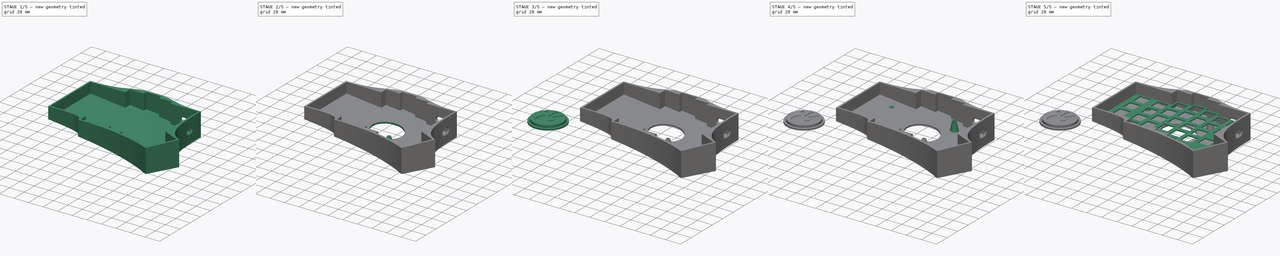
[diagram: build sequence overview — one tinted view per stage of 5, left to right]
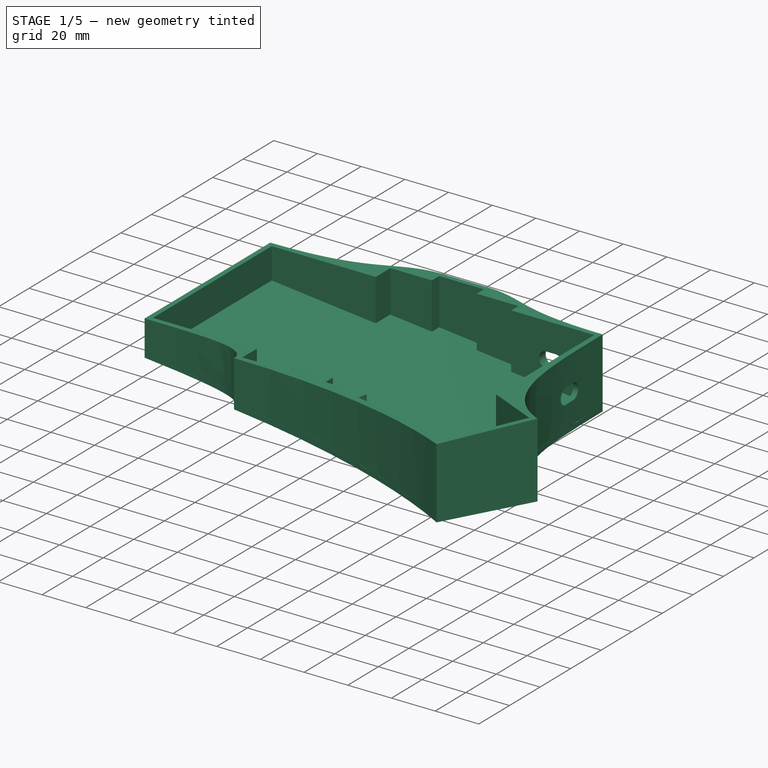
[diagram: stage 1 of 5 — iso view after this stage's code; geometry added in this stage tinted green]
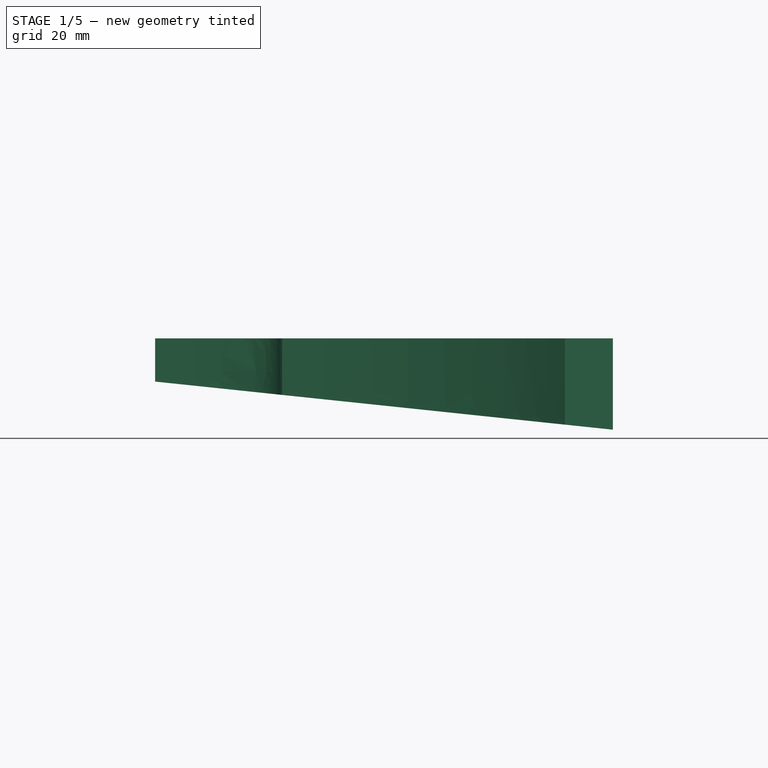
[diagram: stage 1 of 5 — front view after this stage's code; geometry added in this stage tinted green]
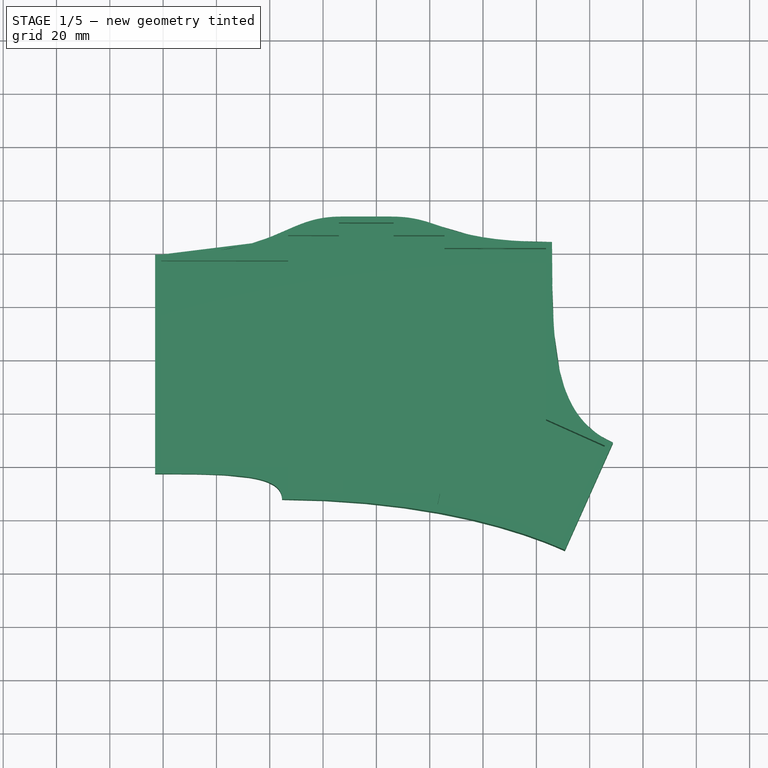
[diagram: stage 1 of 5 — top view after this stage's code; geometry added in this stage tinted green]
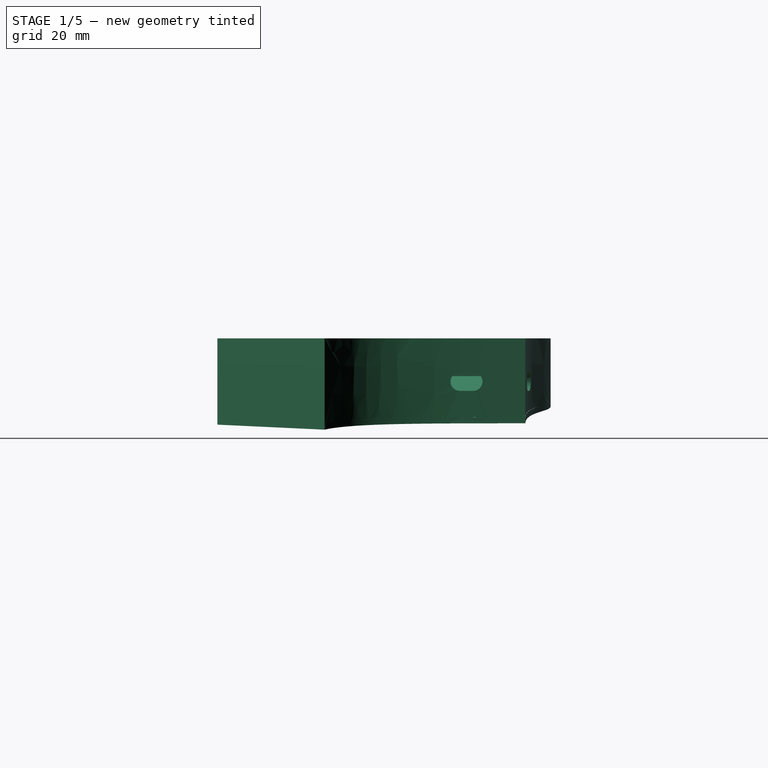
[diagram: stage 1 of 5 — right view after this stage's code; geometry added in this stage tinted green]
FCSTD DOCUMENT  (FreeCAD 0.19R24291 (Git))
Label: case
License: All rights reserved
LicenseURL: http://en.wikipedia.org/wiki/All_rights_reserved
objects: Sketcher::SketchObject×27, PartDesign::Pocket×13, PartDesign::Body×8, PartDesign::Pad×6, PartDesign::Draft×5, PartDesign::ShapeBinder×5, PartDesign::AdditiveCone×4, PartDesign::Chamfer×2, Spreadsheet::Sheet×1, Part::MultiFuse×1
note: 101 computed .brp shape members not serialized (recipe doc carries the construction recipe); baked Part::Feature solids carry a one-line shape summary decoded from their .brp

FEATURE [Sketcher::SketchObject] Sketch004
  FullyConstrained = true
  MapMode = 5
  Support = -> [XY_Plane003]
  expr: Constraints[2] = 3 * Spreadsheet.grid
  expr: Constraints[1] = <<Constants>>.mod_units * Spreadsheet.grid
  expr: Constraints[0] = Spreadsheet.postdiameter
  expr: Constraints[4] = Spreadsheet.posthole
  sketch-geometry (2):
    g0: Circle CenterX=28.575 CenterY=57.15 CenterZ=0 NormalX=0 NormalY=0 NormalZ=1 AngleXU=0 Radius=2.5
    g1: Circle CenterX=28.575 CenterY=57.15 CenterZ=0 NormalX=0 NormalY=0 NormalZ=1 AngleXU=0 Radius=1.45
  constraints (5):
    c: Diameter(g0) = 5
    c: DistanceX(g-1,g0) = 28.575
    c: DistanceY(g-1,g0) = 57.15
    c: Coincident(g1,g0)
    c: Diameter(g1) = 2.9
FEATURE [Sketcher::SketchObject] Sketch005
  FullyConstrained = true
  MapMode = 5
  Support = -> [XY_Plane004]
  expr: Constraints[0] = <<Constants>>.mod_units * <<Constants>>.grid
  expr: Constraints[1] = <<Constants>>.grid
  expr: Constraints[2] = <<Constants>>.postdiameter
  expr: Constraints[4] = <<Constants>>.posthole
  sketch-geometry (2):
    g0: Circle CenterX=28.575 CenterY=19.05 CenterZ=0 NormalX=0 NormalY=0 NormalZ=1 AngleXU=0 Radius=2.5
    g1: Circle CenterX=28.575 CenterY=19.05 CenterZ=0 NormalX=0 NormalY=0 NormalZ=1 AngleXU=0 Radius=1.45
  constraints (5):
    c: DistanceX(g-1,g0) = 28.575
    c: DistanceY(g-1,g0) = 19.05
    c: Diameter(g0) = 5
    c: Coincident(g1,g0)
    c: Diameter(g1) = 2.9
FEATURE [Sketcher::SketchObject] Sketch006
  FullyConstrained = true
  MapMode = 5
  Support = -> [XY_Plane005]
  expr: Constraints[0] = <<Constants>>.grid * (<<Constants>>.mod_units + 4)
  expr: Constraints[1] = <<Constants>>.grid * 3.5
  expr: Constraints[2] = <<Constants>>.postdiameter
  expr: Constraints[4] = <<Constants>>.posthole
  sketch-geometry (2):
    g0: Circle CenterX=104.775 CenterY=66.675 CenterZ=0 NormalX=0 NormalY=0 NormalZ=1 AngleXU=0 Radius=2.5
    g1: Circle CenterX=104.775 CenterY=66.675 CenterZ=0 NormalX=0 NormalY=0 NormalZ=1 AngleXU=0 Radius=1.45
  constraints (5):
    c: DistanceX(g-1,g0) = 104.775
    c: DistanceY(g-1,g0) = 66.675
    c: Diameter(g0) = 5
    c: Coincident(g1,g0)
    c: Diameter(g1) = 2.9
FEATURE [Sketcher::SketchObject] Sketch007
  FullyConstrained = true
  MapMode = 5
  Support = -> [XY_Plane006]
  expr: Constraints[0] = <<Constants>>.grid * (<<Constants>>.mod_units + 4)
  expr: Constraints[1] = <<Constants>>.grid * 0.5
  expr: Constraints[2] = <<Constants>>.postdiameter
  expr: Constraints[4] = <<Constants>>.posthole
  sketch-geometry (2):
    g0: Circle CenterX=104.775 CenterY=9.525 CenterZ=0 NormalX=0 NormalY=0 NormalZ=1 AngleXU=0 Radius=2.5
    g1: Circle CenterX=104.775 CenterY=9.525 CenterZ=0 NormalX=0 NormalY=0 NormalZ=1 AngleXU=0 Radius=1.45
  constraints (5):
    c: DistanceX(g-1,g0) = 104.775
    c: DistanceY(g-1,g0) = 9.525
    c: Diameter(g0) = 5
    c: Coincident(g1,g0)
    c: Diameter(g1) = 2.9
FEATURE [Sketcher::SketchObject] Sketch009  label="switch_holes"
  FullyConstrained = false
  MapMode = 5
  Placement = pos=(0,0,1.4) rot=(0,0,1;0rad)
  Support = -> [Pad001]
  expr: Constraints[381] = <<Constants>>.hole
  expr: Constraints[13] = <<Constants>>.grid
  expr: Constraints[7] = <<Constants>>.grid
  expr: Constraints[366] = <<Constants>>.grid / 4 + <<Constants>>.spacing / 2
  expr: Constraints[364] = <<Constants>>.grid / 4 - <<Constants>>.spacing / 2
  expr: Constraints[356] = <<Constants>>.spacing / 2
  expr: Constraints[358] = <<Constants>>.grid / 2 - <<Constants>>.spacing / 2
  expr: Constraints[60] = <<Constants>>.hole
  expr: Constraints[59] = <<Constants>>.spacing
  expr: Constraints[58] = <<Constants>>.spacing
  expr: Constraints[15] = <<Constants>>.grid
  expr: Constraints[161] = <<Constants>>.spacing
  expr: Constraints[57] = <<Constants>>.spacing
  expr: Constraints[5] = 0.5 * (1 + <<Constants>>.mod_units) * <<Constants>>.grid
  expr: Constraints[2] = (0.5 + <<Constants>>.mod_units) * <<Constants>>.grid
  expr: Constraints[11] = <<Constants>>.grid
  expr: Constraints[9] = <<Constants>>.grid
  sketch-geometry (131):
    g0: LineSegment StartX=38.1 StartY=0 StartZ=0 EndX=38.1 EndY=96.2556 EndZ=0
    g1: LineSegment StartX=14.2875 StartY=0 StartZ=0 EndX=14.2875 EndY=96.8335 EndZ=0
    g2: LineSegment StartX=57.15 StartY=-9.1419 StartZ=0 EndX=57.15 EndY=87.1129 EndZ=0
    g3: LineSegment StartX=76.2 StartY=-4.2747 StartZ=0 EndX=76.2 EndY=91.9809 EndZ=0
    g4: LineSegment StartX=95.25 StartY=-8.95511 StartZ=0 EndX=95.25 EndY=87.3005 EndZ=0
    g5: LineSegment StartX=114.3 StartY=-8.94744 StartZ=0 EndX=114.3 EndY=87.2928 EndZ=0
    g6: LineSegment StartX=133.35 StartY=-7.45738 StartZ=0 EndX=133.35 EndY=88.7982 EndZ=0
    g7: LineSegment StartX=7.2875 StartY=16.525 StartZ=0 EndX=21.2875 EndY=16.525 EndZ=0
    g8: LineSegment StartX=21.2875 StartY=16.525 StartZ=0 EndX=21.2875 EndY=2.525 EndZ=0
    g9: LineSegment StartX=21.2875 StartY=2.525 StartZ=0 EndX=7.2875 EndY=2.525 EndZ=0
    g10: LineSegment StartX=7.2875 StartY=2.525 StartZ=0 EndX=7.2875 EndY=16.525 EndZ=0
    g11: LineSegment StartX=7.2875 StartY=35.575 StartZ=0 EndX=21.2875 EndY=35.575 EndZ=0
    g12: LineSegment StartX=21.2875 StartY=35.575 StartZ=0 EndX=21.2875 EndY=21.575 EndZ=0
    g13: LineSegment StartX=21.2875 StartY=21.575 StartZ=0 EndX=7.2875 EndY=21.575 EndZ=0
    g14: LineSegment StartX=7.2875 StartY=21.575 StartZ=0 EndX=7.2875 EndY=35.575 EndZ=0
    g15: LineSegment StartX=7.2875 StartY=54.625 StartZ=0 EndX=21.2875 EndY=54.625 EndZ=0
    g16: LineSegment StartX=21.2875 StartY=54.625 StartZ=0 EndX=21.2875 EndY=40.625 EndZ=0
    g17: LineSegment StartX=21.2875 StartY=40.625 StartZ=0 EndX=7.2875 EndY=40.625 EndZ=0
    g18: LineSegment StartX=7.2875 StartY=40.625 StartZ=0 EndX=7.2875 EndY=54.625 EndZ=0
    g19: LineSegment StartX=7.2875 StartY=73.675 StartZ=0 EndX=21.2875 EndY=73.675 EndZ=0
    g20: LineSegment StartX=21.2875 StartY=73.675 StartZ=0 EndX=21.2875 EndY=59.675 EndZ=0
    g21: LineSegment StartX=21.2875 StartY=59.675 StartZ=0 EndX=7.2875 EndY=59.675 EndZ=0
    g22: LineSegment StartX=7.2875 StartY=59.675 StartZ=0 EndX=7.2875 EndY=73.675 EndZ=0
    g23: LineSegment StartX=31.1 StartY=16.525 StartZ=0 EndX=45.1 EndY=16.525 EndZ=0
    g24: LineSegment StartX=45.1 StartY=16.525 StartZ=0 EndX=45.1 EndY=2.525 EndZ=0
    g25: LineSegment StartX=45.1 StartY=2.525 StartZ=0 EndX=31.1 EndY=2.525 EndZ=0
    g26: LineSegment StartX=31.1 StartY=2.525 StartZ=0 EndX=31.1 EndY=16.525 EndZ=0
    g27: LineSegment StartX=31.1 StartY=35.575 StartZ=0 EndX=45.1 EndY=35.575 EndZ=0
    g28: LineSegment StartX=45.1 StartY=35.575 StartZ=0 EndX=45.1 EndY=21.575 EndZ=0
    g29: LineSegment StartX=45.1 StartY=21.575 StartZ=0 EndX=31.1 EndY=21.575 EndZ=0
    g30: LineSegment StartX=31.1 StartY=21.575 StartZ=0 EndX=31.1 EndY=35.575 EndZ=0
    g31: LineSegment StartX=31.1 StartY=54.625 StartZ=0 EndX=45.1 EndY=54.625 EndZ=0
    g32: LineSegment StartX=45.1 StartY=54.625 StartZ=0 EndX=45.1 EndY=40.625 EndZ=0
    g33: LineSegment StartX=45.1 StartY=40.625 StartZ=0 EndX=31.1 EndY=40.625 EndZ=0
    g34: LineSegment StartX=31.1 StartY=40.625 StartZ=0 EndX=31.1 EndY=54.625 EndZ=0
    g35: LineSegment StartX=31.1 StartY=73.675 StartZ=0 EndX=45.1 EndY=73.675 EndZ=0
    g36: LineSegment StartX=45.1 StartY=73.675 StartZ=0 EndX=45.1 EndY=59.675 EndZ=0
    g37: LineSegment StartX=45.1 StartY=59.675 StartZ=0 EndX=31.1 EndY=59.675 EndZ=0
    g38: LineSegment StartX=31.1 StartY=59.675 StartZ=0 EndX=31.1 EndY=73.675 EndZ=0
    g39: LineSegment StartX=50.15 StartY=7 StartZ=0 EndX=64.15 EndY=7 EndZ=0
    g40: LineSegment StartX=64.15 StartY=7 StartZ=0 EndX=64.15 EndY=-7 EndZ=0
    g41: LineSegment StartX=64.15 StartY=-7 StartZ=0 EndX=50.15 EndY=-7 EndZ=0
    g42: LineSegment StartX=50.15 StartY=-7 StartZ=0 EndX=50.15 EndY=7 EndZ=0
    g43: LineSegment StartX=50.15 StartY=26.05 StartZ=0 EndX=64.15 EndY=26.05 EndZ=0
    g44: LineSegment StartX=64.15 StartY=26.05 StartZ=0 EndX=64.15 EndY=12.05 EndZ=0
    g45: LineSegment StartX=64.15 StartY=12.05 StartZ=0 EndX=50.15 EndY=12.05 EndZ=0
    g46: LineSegment StartX=50.15 StartY=12.05 StartZ=0 EndX=50.15 EndY=26.05 EndZ=0
    g47: LineSegment StartX=50.15 StartY=45.1 StartZ=0 EndX=64.15 EndY=45.1 EndZ=0
    g48: LineSegment StartX=64.15 StartY=45.1 StartZ=0 EndX=64.15 EndY=31.1 EndZ=0
    g49: LineSegment StartX=64.15 StartY=31.1 StartZ=0 EndX=50.15 EndY=31.1 EndZ=0
    g50: LineSegment StartX=50.15 StartY=31.1 StartZ=0 EndX=50.15 EndY=45.1 EndZ=0
    g51: LineSegment StartX=50.15 StartY=64.15 StartZ=0 EndX=64.15 EndY=64.15 EndZ=0
    g52: LineSegment StartX=64.15 StartY=64.15 StartZ=0 EndX=64.15 EndY=50.15 EndZ=0
    g53: LineSegment StartX=64.15 StartY=50.15 StartZ=0 EndX=50.15 EndY=50.15 EndZ=0
    g54: LineSegment StartX=50.15 StartY=50.15 StartZ=0 EndX=50.15 EndY=64.15 EndZ=0
    g55: LineSegment StartX=50.15 StartY=69.2 StartZ=0 EndX=64.15 EndY=69.2 EndZ=0
    g56: LineSegment StartX=64.15 StartY=69.2 StartZ=0 EndX=64.15 EndY=83.2 EndZ=0
    g57: LineSegment StartX=64.15 StartY=83.2 StartZ=0 EndX=50.15 EndY=83.2 EndZ=0
    g58: LineSegment StartX=50.15 StartY=83.2 StartZ=0 EndX=50.15 EndY=69.2 EndZ=0
    g59: LineSegment StartX=69.2 StartY=11.7625 StartZ=0 EndX=83.2 EndY=11.7625 EndZ=0
    g60: LineSegment StartX=83.2 StartY=11.7625 StartZ=0 EndX=83.2 EndY=-2.2375 EndZ=0
    g61: LineSegment StartX=83.2 StartY=-2.2375 StartZ=0 EndX=69.2 EndY=-2.2375 EndZ=0
    g62: LineSegment StartX=69.2 StartY=-2.2375 StartZ=0 EndX=69.2 EndY=11.7625 EndZ=0
    g63: LineSegment StartX=69.2 StartY=30.8125 StartZ=0 EndX=83.2 EndY=30.8125 EndZ=0
    g64: LineSegment StartX=83.2 StartY=30.8125 StartZ=0 EndX=83.2 EndY=16.8125 EndZ=0
    g65: LineSegment StartX=83.2 StartY=16.8125 StartZ=0 EndX=69.2 EndY=16.8125 EndZ=0
    g66: LineSegment StartX=69.2 StartY=16.8125 StartZ=0 EndX=69.2 EndY=30.8125 EndZ=0
    g67: LineSegment StartX=69.2 StartY=49.8625 StartZ=0 EndX=83.2 EndY=49.8625 EndZ=0
    g68: LineSegment StartX=83.2 StartY=49.8625 StartZ=0 EndX=83.2 EndY=35.8625 EndZ=0
    g69: LineSegment StartX=83.2 StartY=35.8625 StartZ=0 EndX=69.2 EndY=35.8625 EndZ=0
    g70: LineSegment StartX=69.2 StartY=35.8625 StartZ=0 EndX=69.2 EndY=49.8625 EndZ=0
    g71: LineSegment StartX=69.2 StartY=68.9125 StartZ=0 EndX=83.2 EndY=68.9125 EndZ=0
    g72: LineSegment StartX=83.2 StartY=68.9125 StartZ=0 EndX=83.2 EndY=54.9125 EndZ=0
    g73: LineSegment StartX=83.2 StartY=54.9125 StartZ=0 EndX=69.2 EndY=54.9125 EndZ=0
    g74: LineSegment StartX=69.2 StartY=54.9125 StartZ=0 EndX=69.2 EndY=68.9125 EndZ=0
    g75: LineSegment StartX=69.2 StartY=73.9625 StartZ=0 EndX=83.2 EndY=73.9625 EndZ=0
    g76: LineSegment StartX=83.2 StartY=73.9625 StartZ=0 EndX=83.2 EndY=87.9625 EndZ=0
    g77: LineSegment StartX=83.2 StartY=87.9625 StartZ=0 EndX=69.2 EndY=87.9625 EndZ=0
    g78: LineSegment StartX=69.2 StartY=87.9625 StartZ=0 EndX=69.2 EndY=73.9625 EndZ=0
    g79: LineSegment StartX=88.25 StartY=7 StartZ=0 EndX=102.25 EndY=7 EndZ=0
    g80: LineSegment StartX=102.25 StartY=7 StartZ=0 EndX=102.25 EndY=-7 EndZ=0
    g81: LineSegment StartX=102.25 StartY=-7 StartZ=0 EndX=88.25 EndY=-7 EndZ=0
    g82: LineSegment StartX=88.25 StartY=-7 StartZ=0 EndX=88.25 EndY=7 EndZ=0
    g83: LineSegment StartX=88.25 StartY=26.05 StartZ=0 EndX=102.25 EndY=26.05 EndZ=0
    g84: LineSegment StartX=102.25 StartY=26.05 StartZ=0 EndX=102.25 EndY=12.05 EndZ=0
    g85: LineSegment StartX=102.25 StartY=12.05 StartZ=0 EndX=88.25 EndY=12.05 EndZ=0
    g86: LineSegment StartX=88.25 StartY=12.05 StartZ=0 EndX=88.25 EndY=26.05 EndZ=0
    g87: LineSegment StartX=88.25 StartY=45.1 StartZ=0 EndX=102.25 EndY=45.1 EndZ=0
    g88: LineSegment StartX=102.25 StartY=45.1 StartZ=0 EndX=102.25 EndY=31.1 EndZ=0
    g89: LineSegment StartX=102.25 StartY=31.1 StartZ=0 EndX=88.25 EndY=31.1 EndZ=0
    g90: LineSegment StartX=88.25 StartY=31.1 StartZ=0 EndX=88.25 EndY=45.1 EndZ=0
    g91: LineSegment StartX=88.25 StartY=64.15 StartZ=0 EndX=102.25 EndY=64.15 EndZ=0
    g92: LineSegment StartX=102.25 StartY=64.15 StartZ=0 EndX=102.25 EndY=50.15 EndZ=0
    g93: LineSegment StartX=102.25 StartY=50.15 StartZ=0 EndX=88.25 EndY=50.15 EndZ=0
    g94: LineSegment StartX=88.25 StartY=50.15 StartZ=0 EndX=88.25 EndY=64.15 EndZ=0
    g95: LineSegment StartX=88.25 StartY=69.2 StartZ=0 EndX=102.25 EndY=69.2 EndZ=0
    g96: LineSegment StartX=102.25 StartY=69.2 StartZ=0 EndX=102.25 EndY=83.2 EndZ=0
    g97: LineSegment StartX=102.25 StartY=83.2 StartZ=0 EndX=88.25 EndY=83.2 EndZ=0
    g98: LineSegment StartX=88.25 StartY=83.2 StartZ=0 EndX=88.25 EndY=69.2 EndZ=0
    g99: LineSegment StartX=107.3 StartY=21.2875 StartZ=0 EndX=121.3 EndY=21.2875 EndZ=0
    g100: LineSegment StartX=121.3 StartY=21.2875 StartZ=0 EndX=121.3 EndY=7.2875 EndZ=0
    g101: LineSegment StartX=121.3 StartY=7.2875 StartZ=0 EndX=107.3 EndY=7.2875 EndZ=0
    g102: LineSegment StartX=107.3 StartY=7.2875 StartZ=0 EndX=107.3 EndY=21.2875 EndZ=0
    g103: LineSegment StartX=107.3 StartY=40.3375 StartZ=0 EndX=121.3 EndY=40.3375 EndZ=0
    g104: LineSegment StartX=121.3 StartY=40.3375 StartZ=0 EndX=121.3 EndY=26.3375 EndZ=0
    g105: LineSegment StartX=121.3 StartY=26.3375 StartZ=0 EndX=107.3 EndY=26.3375 EndZ=0
    g106: LineSegment StartX=107.3 StartY=26.3375 StartZ=0 EndX=107.3 EndY=40.3375 EndZ=0
    g107: LineSegment StartX=107.3 StartY=59.3875 StartZ=0 EndX=121.3 EndY=59.3875 EndZ=0
    g108: LineSegment StartX=121.3 StartY=59.3875 StartZ=0 EndX=121.3 EndY=45.3875 EndZ=0
    g109: LineSegment StartX=121.3 StartY=45.3875 StartZ=0 EndX=107.3 EndY=45.3875 EndZ=0
    g110: LineSegment StartX=107.3 StartY=45.3875 StartZ=0 EndX=107.3 EndY=59.3875 EndZ=0
    g111: LineSegment StartX=107.3 StartY=78.4375 StartZ=0 EndX=121.3 EndY=78.4375 EndZ=0
    g112: LineSegment StartX=121.3 StartY=78.4375 StartZ=0 EndX=121.3 EndY=64.4375 EndZ=0
    g113: LineSegment StartX=121.3 StartY=64.4375 StartZ=0 EndX=107.3 EndY=64.4375 EndZ=0
    g114: LineSegment StartX=107.3 StartY=64.4375 StartZ=0 EndX=107.3 EndY=78.4375 EndZ=0
    g115: LineSegment StartX=126.35 StartY=40.3375 StartZ=0 EndX=140.35 EndY=40.3375 EndZ=0
    g116: LineSegment StartX=140.35 StartY=40.3375 StartZ=0 EndX=140.35 EndY=26.3375 EndZ=0
    g117: LineSegment StartX=140.35 StartY=26.3375 StartZ=0 EndX=126.35 EndY=26.3375 EndZ=0
    g118: LineSegment StartX=126.35 StartY=26.3375 StartZ=0 EndX=126.35 EndY=40.3375 EndZ=0
    g119: LineSegment StartX=126.35 StartY=59.3875 StartZ=0 EndX=140.35 EndY=59.3875 EndZ=0
    g120: LineSegment StartX=140.35 StartY=59.3875 StartZ=0 EndX=140.35 EndY=45.3875 EndZ=0
    g121: LineSegment StartX=140.35 StartY=45.3875 StartZ=0 EndX=126.35 EndY=45.3875 EndZ=0
    g122: LineSegment StartX=126.35 StartY=45.3875 StartZ=0 EndX=126.35 EndY=59.3875 EndZ=0
    g123: LineSegment StartX=126.35 StartY=78.4375 StartZ=0 EndX=140.35 EndY=78.4375 EndZ=0
    g124: LineSegment StartX=140.35 StartY=78.4375 StartZ=0 EndX=140.35 EndY=64.4375 EndZ=0
    g125: LineSegment StartX=140.35 StartY=64.4375 StartZ=0 EndX=126.35 EndY=64.4375 EndZ=0
    g126: LineSegment StartX=126.35 StartY=64.4375 StartZ=0 EndX=126.35 EndY=78.4375 EndZ=0
    g127: LineSegment StartX=126.35 StartY=21.2875 StartZ=0 EndX=140.35 EndY=21.2875 EndZ=0
    g128: LineSegment StartX=140.35 StartY=21.2875 StartZ=0 EndX=140.35 EndY=7.2875 EndZ=0
    g129: LineSegment StartX=140.35 StartY=7.2875 StartZ=0 EndX=126.35 EndY=7.2875 EndZ=0
    g130: LineSegment StartX=126.35 StartY=7.2875 StartZ=0 EndX=126.35 EndY=21.2875 EndZ=0
  constraints (382):
    c: PointOnObject(g0,g-1)
    c: Vertical(g0)
    c: DistanceX(g-1,g0) = 38.1
    c: Vertical(g1)
    c: PointOnObject(g1,g-1)
    c: DistanceX(g1,g0) = 23.8125
    c: Vertical(g2)
    c: DistanceX(g0,g2) = 19.05
    c: Vertical(g3)
    c: DistanceX(g2,g3) = 19.05
    c: Vertical(g4)
    c: DistanceX(g3,g4) = 19.05
    c: Vertical(g5)
    c: DistanceX(g4,g5) = 19.05
    c: Vertical(g6)
    c: DistanceX(g5,g6) = 19.05
    c: Coincident(g7,g8)
    c: Coincident(g8,g9)
    c: Coincident(g9,g10)
    c: Coincident(g10,g7)
    c: Horizontal(g7)
    c: Vertical(g8)
    c: Vertical(g10)
    c: Coincident(g11,g12)
    c: Coincident(g12,g13)
    c: Coincident(g13,g14)
    c: Coincident(g14,g11)
    c: Horizontal(g11)
    c: Horizontal(g13)
    c: Vertical(g12)
    c: Vertical(g14)
    c: Coincident(g15,g16)
    c: Coincident(g16,g17)
    c: Coincident(g17,g18)
    c: Coincident(g18,g15)
    c: Horizontal(g15)
    c: Horizontal(g17)
    c: Vertical(g16)
    c: Vertical(g18)
    c: Coincident(g19,g20)
    c: Coincident(g20,g21)
    c: Coincident(g21,g22)
    c: Coincident(g22,g19)
    c: Horizontal(g19)
    c: Horizontal(g21)
    c: Vertical(g20)
    c: Vertical(g22)
    c: Equal(g21,g20)
    c: Equal(g15,g16)
    c: Equal(g16,g12)
    c: Equal(g12,g20)
    c: Equal(g19,g8)
    c: Equal(g8,g7)
    c: Equal(g7,g11)
    c: Vertical(g20,g16)
    c: Vertical(g16,g12)
    c: Vertical(g12,g8)
    c: DistanceY(g15,g20) = 5.05
    c: DistanceY(g11,g16) = 5.05
    c: DistanceY(g7,g12) = 5.05
    c: Distance(g9) = 14
    c: Coincident(g23,g24)
    c: Coincident(g24,g25)
    c: Coincident(g25,g26)
    c: Coincident(g26,g23)
    c: Horizontal(g23)
    c: Vertical(g24)
    c: Vertical(g26)
    c: Coincident(g27,g28)
    c: Coincident(g28,g29)
    c: Coincident(g29,g30)
    c: Coincident(g30,g27)
    c: Horizontal(g27)
    c: Horizontal(g29)
    c: Vertical(g28)
    c: Vertical(g30)
    c: Coincident(g31,g32)
    c: Coincident(g32,g33)
    c: Coincident(g33,g34)
    c: Coincident(g34,g31)
    c: Horizontal(g31)
    c: Horizontal(g33)
    c: Vertical(g32)
    c: Vertical(g34)
    c: Coincident(g35,g36)
    c: Coincident(g36,g37)
    c: Coincident(g37,g38)
    c: Coincident(g38,g35)
    c: Horizontal(g35)
    c: Horizontal(g37)
    c: Vertical(g36)
    c: Vertical(g38)
    c: Equal(g37,g36)
    c: Equal(g31,g32)
    c: Equal(g32,g28)
    c: Equal(g28,g36)
    c: Equal(g35,g24)
    c: Equal(g24,g23)
    c: Equal(g23,g27)
    c: Vertical(g36,g32)
    c: Vertical(g32,g28)
    c: Vertical(g28,g24)
    c: DistanceY(g31,g36) = 5.05
    c: DistanceY(g27,g32) = 5.05
    c: DistanceY(g23,g28) = 5.05
    c: Equal(g9,g25) = 14
    c: Coincident(g39,g40)
    c: Coincident(g40,g41)
    c: Coincident(g41,g42)
    c: Coincident(g42,g39)
    c: Horizontal(g39)
    c: Vertical(g40)
    c: Vertical(g42)
    c: Coincident(g43,g44)
    c: Coincident(g44,g45)
    c: Coincident(g45,g46)
    c: Coincident(g46,g43)
    c: Horizontal(g43)
    c: Horizontal(g45)
    c: Vertical(g44)
    c: Vertical(g46)
    c: Coincident(g47,g48)
    c: Coincident(g48,g49)
    c: Coincident(g49,g50)
    c: Coincident(g50,g47)
    c: Horizontal(g47)
    c: Horizontal(g49)
    c: Vertical(g48)
    c: Vertical(g50)
    c: Coincident(g51,g52)
    c: Coincident(g52,g53)
    c: Coincident(g53,g54)
    c: Coincident(g54,g51)
    c: Horizontal(g51)
    c: Horizontal(g53)
    c: Vertical(g52)
    c: Vertical(g54)
    c: Equal(g53,g52)
    c: Equal(g47,g48)
    c: Equal(g48,g44)
    c: Equal(g44,g52)
    c: Equal(g51,g40)
    c: Equal(g40,g39)
    c: Equal(g39,g43)
    c: Vertical(g52,g48)
    c: Vertical(g48,g44)
    c: Vertical(g44,g40)
    c: DistanceY(g47,g52) = 5.05
    c: DistanceY(g43,g48) = 5.05
    c: DistanceY(g39,g44) = 5.05
    c: Coincident(g55,g56)
    c: Coincident(g56,g57)
    c: Coincident(g57,g58)
    c: Coincident(g58,g55)
    c: Horizontal(g55)
    c: Horizontal(g57)
    c: Vertical(g56)
    c: Vertical(g58)
    c: Vertical(g55,g51)
    c: Equal(g56,g57)
    c: Equal(g52,g56)
    c: DistanceY(g51,g55) = 5.05
    c: Coincident(g59,g60)
    c: Coincident(g60,g61)
    c: Coincident(g61,g62)
    c: Coincident(g62,g59)
    c: Horizontal(g59)
    c: Vertical(g60)
    c: Vertical(g62)
    c: Coincident(g63,g64)
    c: Coincident(g64,g65)
    c: Coincident(g65,g66)
    c: Coincident(g66,g63)
    c: Horizontal(g63)
    c: Horizontal(g65)
    c: Vertical(g64)
    c: Vertical(g66)
    c: Coincident(g67,g68)
    c: Coincident(g68,g69)
    c: Coincident(g69,g70)
    c: Coincident(g70,g67)
    c: Horizontal(g67)
    c: Horizontal(g69)
    c: Vertical(g68)
    c: Vertical(g70)
    c: Coincident(g71,g72)
    c: Coincident(g72,g73)
    c: Coincident(g73,g74)
    c: Coincident(g74,g71)
    c: Horizontal(g71)
    c: Horizontal(g73)
    c: Vertical(g72)
    c: Vertical(g74)
    c: Equal(g73,g72)
    c: Equal(g67,g68)
    c: Equal(g68,g64)
    c: Equal(g64,g72)
    c: Equal(g71,g60)
    c: Equal(g60,g59)
    c: Equal(g59,g63)
    c: Vertical(g72,g68)
    c: Vertical(g68,g64)
    c: Vertical(g64,g60)
    c: DistanceY(g67,g72) = 5.05
    c: DistanceY(g63,g68) = 5.05
    c: DistanceY(g59,g64) = 5.05
    c: Coincident(g75,g76)
    c: Coincident(g76,g77)
    c: Coincident(g77,g78)
    c: Coincident(g78,g75)
    c: Horizontal(g75)
    c: Horizontal(g77)
    c: Vertical(g76)
    c: Vertical(g78)
    c: Vertical(g75,g71)
    c: Equal(g76,g77)
    c: Equal(g72,g76)
    c: DistanceY(g71,g75) = 5.05
    c: Coincident(g79,g80)
    c: Coincident(g80,g81)
    c: Coincident(g81,g82)
    c: Coincident(g82,g79)
    c: Horizontal(g79)
    c: Vertical(g80)
    c: Vertical(g82)
    c: Coincident(g83,g84)
    c: Coincident(g84,g85)
    c: Coincident(g85,g86)
    c: Coincident(g86,g83)
    c: Horizontal(g83)
    c: Horizontal(g85)
    c: Vertical(g84)
    c: Vertical(g86)
    c: Coincident(g87,g88)
    c: Coincident(g88,g89)
    c: Coincident(g89,g90)
    c: Coincident(g90,g87)
    c: Horizontal(g87)
    c: Horizontal(g89)
    c: Vertical(g88)
    c: Vertical(g90)
    c: Coincident(g91,g92)
    c: Coincident(g92,g93)
    c: Coincident(g93,g94)
    c: Coincident(g94,g91)
    c: Horizontal(g91)
    c: Horizontal(g93)
    c: Vertical(g92)
    c: Vertical(g94)
    c: Equal(g93,g92)
    c: Equal(g87,g88)
    c: Equal(g88,g84)
    c: Equal(g84,g92)
    c: Equal(g91,g80)
    c: Equal(g80,g79)
    c: Equal(g79,g83)
    c: Vertical(g92,g88)
    c: Vertical(g88,g84)
    c: Vertical(g84,g80)
    c: DistanceY(g87,g92) = 5.05
    c: DistanceY(g83,g88) = 5.05
    c: DistanceY(g79,g84) = 5.05
    c: Coincident(g95,g96)
    c: Coincident(g96,g97)
    c: Coincident(g97,g98)
    c: Coincident(g98,g95)
    c: Horizontal(g95)
    c: Horizontal(g97)
    c: Vertical(g96)
    c: Vertical(g98)
    c: Vertical(g95,g91)
    c: Equal(g96,g97)
    c: Equal(g92,g96)
    c: DistanceY(g91,g95) = 5.05
    c: Coincident(g99,g100)
    c: Coincident(g100,g101)
    c: Coincident(g101,g102)
    c: Coincident(g102,g99)
    c: Horizontal(g99)
    c: Vertical(g100)
    c: Vertical(g102)
    c: Coincident(g103,g104)
    c: Coincident(g104,g105)
    c: Coincident(g105,g106)
    c: Coincident(g106,g103)
    c: Horizontal(g103)
    c: Horizontal(g105)
    c: Vertical(g104)
    c: Vertical(g106)
    c: Coincident(g107,g108)
    c: Coincident(g108,g109)
    c: Coincident(g109,g110)
    c: Coincident(g110,g107)
    c: Horizontal(g107)
    c: Horizontal(g109)
    c: Vertical(g108)
    c: Vertical(g110)
    c: Coincident(g111,g112)
    c: Coincident(g112,g113)
    c: Coincident(g113,g114)
    c: Coincident(g114,g111)
    c: Horizontal(g111)
    c: Horizontal(g113)
    c: Vertical(g112)
    c: Vertical(g114)
    c: Equal(g113,g112)
    c: Equal(g107,g108)
    c: Equal(g108,g104)
    c: Equal(g104,g112)
    c: Equal(g111,g100)
    c: Equal(g100,g99)
    c: Equal(g99,g103)
    c: Vertical(g112,g108)
    c: Vertical(g108,g104)
    c: Vertical(g104,g100)
    c: DistanceY(g107,g112) = 5.05
    c: DistanceY(g103,g108) = 5.05
    c: DistanceY(g99,g104) = 5.05
    c: Coincident(g115,g116)
    c: Coincident(g116,g117)
    c: Coincident(g117,g118)
    c: Coincident(g118,g115)
    c: Horizontal(g115)
    c: Vertical(g116)
    c: Vertical(g118)
    c: Coincident(g119,g120)
    c: Coincident(g120,g121)
    c: Coincident(g121,g122)
    c: Coincident(g122,g119)
    c: Horizontal(g119)
    c: Horizontal(g121)
    c: Vertical(g120)
    c: Vertical(g122)
    c: Coincident(g123,g124)
    c: Coincident(g124,g125)
    c: Coincident(g125,g126)
    c: Coincident(g126,g123)
    c: Horizontal(g123)
    c: Horizontal(g125)
    c: Vertical(g124)
    c: Vertical(g126)
    c: Equal(g123,g124)
    c: Equal(g116,g115)
    c: Equal(g115,g119)
    c: Vertical(g124,g120)
    c: Vertical(g120,g116)
    c: DistanceY(g119,g124) = 5.05
    c: DistanceY(g115,g120) = 5.05
    c: Equal(g9,g117) = 14
    c: Symmetric(g8,g9,g1)
    c: Symmetric(g24,g25,g0)
    c: Symmetric(g40,g41,g2)
    c: Symmetric(g60,g61,g3)
    c: Symmetric(g80,g81,g4)
    c: Symmetric(g100,g101,g5)
    c: Symmetric(g116,g117,g6)
    c: DistanceY(g-1,g9) = 2.525
    c: Horizontal(g8,g25)
    c: DistanceY(g41,g-1) = 7
    c: Equal(g41,g25)
    c: Equal(g25,g61)
    c: Equal(g61,g81)
    c: Equal(g81,g101)
    c: Equal(g117,g9)
    c: DistanceY(g61,g-1) = 2.2375
    c: Horizontal(g81,g40)
    c: DistanceY(g-1,g101) = 7.2875
    c: Horizontal(g111,g123)
    c: Equal(g123,g119)
    c: Equal(g124,g120)
    c: Coincident(g127,g128)
    c: Coincident(g128,g129)
    c: Coincident(g129,g130)
    c: Coincident(g130,g127)
    c: Horizontal(g127)
    c: Vertical(g128)
    c: Vertical(g130)
    c: Equal(g128,g127)
    c: Horizontal(g129,g100)
    c: Horizontal(g100,g128)
    c: Vertical(g127,g117)
    c: Distance(g129) = 14
FEATURE [Sketcher::SketchObject] Sketch010  label="ortho_holes"
  FullyConstrained = false
  MapMode = 5
  Placement = pos=(0,0,1.4) rot=(0,0,1;0rad)
  Support = -> [Pad001]
  expr: Constraints[2] = Sketch009.Constraints[2]
  expr: Constraints[5] = <<Constants>>.grid
  expr: Constraints[57] = Sketch009.Constraints[57]
  expr: Constraints[7] = Sketch009.Constraints[7]
  expr: Constraints[13] = Sketch009.Constraints[13]
  expr: Constraints[9] = Sketch009.Constraints[9]
  expr: Constraints[11] = Sketch009.Constraints[11]
  expr: Constraints[147] = Sketch009.Constraints[147]
  expr: Constraints[260] = Sketch009.Constraints[260]
  expr: Constraints[161] = Sketch009.Constraints[161]
  expr: Constraints[15] = Sketch009.Constraints[15]
  expr: Constraints[273] = Sketch009.Constraints[273]
  expr: Constraints[58] = Sketch009.Constraints[58]
  expr: Constraints[103] = Sketch009.Constraints[103]
  expr: Constraints[59] = Sketch009.Constraints[59]
  expr: Constraints[104] = Sketch009.Constraints[104]
  expr: Constraints[316] = Sketch009.Constraints[316]
  expr: Constraints[346] = Sketch009.Constraints[346]
  expr: Constraints[60] = Sketch009.Constraints[60]
  expr: Constraints[102] = Sketch009.Constraints[102]
  expr: Constraints[148] = Sketch009.Constraints[148]
  expr: Constraints[259] = Sketch009.Constraints[259]
  expr: Constraints[203] = Sketch009.Constraints[203]
  expr: Constraints[204] = Sketch009.Constraints[204]
  expr: Constraints[205] = Sketch009.Constraints[205]
  expr: Constraints[217] = Sketch009.Constraints[217]
  expr: Constraints[261] = Sketch009.Constraints[261]
  expr: Constraints[315] = Sketch009.Constraints[315]
  expr: Constraints[366] = Sketch009.Constraints[366]
  expr: Constraints[317] = Sketch009.Constraints[317]
  expr: Constraints[347] = Sketch009.Constraints[347]
  expr: Constraints[149] = Sketch009.Constraints[149]
  expr: Constraints[358] = Sketch009.Constraints[358]
  expr: Constraints[356] = Sketch009.Constraints[356]
  expr: Constraints[364] = Sketch009.Constraints[364]
  expr: Constraints[381] = Sketch009.Constraints[381]
  sketch-geometry (131):
    g0: LineSegment StartX=38.1 StartY=0 StartZ=0 EndX=38.1 EndY=96.2556 EndZ=0
    g1: LineSegment StartX=19.05 StartY=0 StartZ=0 EndX=19.05 EndY=96.8335 EndZ=0
    g2: LineSegment StartX=57.15 StartY=-9.1419 StartZ=0 EndX=57.15 EndY=87.1129 EndZ=0
    g3: LineSegment StartX=76.2 StartY=-4.2747 StartZ=0 EndX=76.2 EndY=91.9809 EndZ=0
    g4: LineSegment StartX=95.25 StartY=-8.95511 StartZ=0 EndX=95.25 EndY=87.3005 EndZ=0
    g5: LineSegment StartX=114.3 StartY=-8.94745 StartZ=0 EndX=114.3 EndY=87.2928 EndZ=0
    g6: LineSegment StartX=133.35 StartY=-7.45738 StartZ=0 EndX=133.35 EndY=88.7982 EndZ=0
    g7: LineSegment StartX=12.05 StartY=16.525 StartZ=0 EndX=26.05 EndY=16.525 EndZ=0
    g8: LineSegment StartX=26.05 StartY=16.525 StartZ=0 EndX=26.05 EndY=2.525 EndZ=0
    g9: LineSegment StartX=26.05 StartY=2.525 StartZ=0 EndX=12.05 EndY=2.525 EndZ=0
    g10: LineSegment StartX=12.05 StartY=2.525 StartZ=0 EndX=12.05 EndY=16.525 EndZ=0
    g11: LineSegment StartX=12.05 StartY=35.575 StartZ=0 EndX=26.05 EndY=35.575 EndZ=0
    g12: LineSegment StartX=26.05 StartY=35.575 StartZ=0 EndX=26.05 EndY=21.575 EndZ=0
    g13: LineSegment StartX=26.05 StartY=21.575 StartZ=0 EndX=12.05 EndY=21.575 EndZ=0
    g14: LineSegment StartX=12.05 StartY=21.575 StartZ=0 EndX=12.05 EndY=35.575 EndZ=0
    g15: LineSegment StartX=12.05 StartY=54.625 StartZ=0 EndX=26.05 EndY=54.625 EndZ=0
    g16: LineSegment StartX=26.05 StartY=54.625 StartZ=0 EndX=26.05 EndY=40.625 EndZ=0
    g17: LineSegment StartX=26.05 StartY=40.625 StartZ=0 EndX=12.05 EndY=40.625 EndZ=0
    g18: LineSegment StartX=12.05 StartY=40.625 StartZ=0 EndX=12.05 EndY=54.625 EndZ=0
    g19: LineSegment StartX=12.05 StartY=73.675 StartZ=0 EndX=26.05 EndY=73.675 EndZ=0
    g20: LineSegment StartX=26.05 StartY=73.675 StartZ=0 EndX=26.05 EndY=59.675 EndZ=0
    g21: LineSegment StartX=26.05 StartY=59.675 StartZ=0 EndX=12.05 EndY=59.675 EndZ=0
    g22: LineSegment StartX=12.05 StartY=59.675 StartZ=0 EndX=12.05 EndY=73.675 EndZ=0
    g23: LineSegment StartX=31.1 StartY=16.525 StartZ=0 EndX=45.1 EndY=16.525 EndZ=0
    g24: LineSegment StartX=45.1 StartY=16.525 StartZ=0 EndX=45.1 EndY=2.525 EndZ=0
    g25: LineSegment StartX=45.1 StartY=2.525 StartZ=0 EndX=31.1 EndY=2.525 EndZ=0
    g26: LineSegment StartX=31.1 StartY=2.525 StartZ=0 EndX=31.1 EndY=16.525 EndZ=0
    g27: LineSegment StartX=31.1 StartY=35.575 StartZ=0 EndX=45.1 EndY=35.575 EndZ=0
    g28: LineSegment StartX=45.1 StartY=35.575 StartZ=0 EndX=45.1 EndY=21.575 EndZ=0
    g29: LineSegment StartX=45.1 StartY=21.575 StartZ=0 EndX=31.1 EndY=21.575 EndZ=0
    g30: LineSegment StartX=31.1 StartY=21.575 StartZ=0 EndX=31.1 EndY=35.575 EndZ=0
    g31: LineSegment StartX=31.1 StartY=54.625 StartZ=0 EndX=45.1 EndY=54.625 EndZ=0
    g32: LineSegment StartX=45.1 StartY=54.625 StartZ=0 EndX=45.1 EndY=40.625 EndZ=0
    g33: LineSegment StartX=45.1 StartY=40.625 StartZ=0 EndX=31.1 EndY=40.625 EndZ=0
    g34: LineSegment StartX=31.1 StartY=40.625 StartZ=0 EndX=31.1 EndY=54.625 EndZ=0
    g35: LineSegment StartX=31.1 StartY=73.675 StartZ=0 EndX=45.1 EndY=73.675 EndZ=0
    g36: LineSegment StartX=45.1 StartY=73.675 StartZ=0 EndX=45.1 EndY=59.675 EndZ=0
    g37: LineSegment StartX=45.1 StartY=59.675 StartZ=0 EndX=31.1 EndY=59.675 EndZ=0
    g38: LineSegment StartX=31.1 StartY=59.675 StartZ=0 EndX=31.1 EndY=73.675 EndZ=0
    g39: LineSegment StartX=50.15 StartY=7 StartZ=0 EndX=64.15 EndY=7 EndZ=0
    g40: LineSegment StartX=64.15 StartY=7 StartZ=0 EndX=64.15 EndY=-7 EndZ=0
    g41: LineSegment StartX=64.15 StartY=-7 StartZ=0 EndX=50.15 EndY=-7 EndZ=0
    g42: LineSegment StartX=50.15 StartY=-7 StartZ=0 EndX=50.15 EndY=7 EndZ=0
    g43: LineSegment StartX=50.15 StartY=26.05 StartZ=0 EndX=64.15 EndY=26.05 EndZ=0
    g44: LineSegment StartX=64.15 StartY=26.05 StartZ=0 EndX=64.15 EndY=12.05 EndZ=0
    g45: LineSegment StartX=64.15 StartY=12.05 StartZ=0 EndX=50.15 EndY=12.05 EndZ=0
    g46: LineSegment StartX=50.15 StartY=12.05 StartZ=0 EndX=50.15 EndY=26.05 EndZ=0
    g47: LineSegment StartX=50.15 StartY=45.1 StartZ=0 EndX=64.15 EndY=45.1 EndZ=0
    g48: LineSegment StartX=64.15 StartY=45.1 StartZ=0 EndX=64.15 EndY=31.1 EndZ=0
    g49: LineSegment StartX=64.15 StartY=31.1 StartZ=0 EndX=50.15 EndY=31.1 EndZ=0
    g50: LineSegment StartX=50.15 StartY=31.1 StartZ=0 EndX=50.15 EndY=45.1 EndZ=0
    g51: LineSegment StartX=50.15 StartY=64.15 StartZ=0 EndX=64.15 EndY=64.15 EndZ=0
    g52: LineSegment StartX=64.15 StartY=64.15 StartZ=0 EndX=64.15 EndY=50.15 EndZ=0
    g53: LineSegment StartX=64.15 StartY=50.15 StartZ=0 EndX=50.15 EndY=50.15 EndZ=0
    g54: LineSegment StartX=50.15 StartY=50.15 StartZ=0 EndX=50.15 EndY=64.15 EndZ=0
    g55: LineSegment StartX=50.15 StartY=69.2 StartZ=0 EndX=64.15 EndY=69.2 EndZ=0
    g56: LineSegment StartX=64.15 StartY=69.2 StartZ=0 EndX=64.15 EndY=83.2 EndZ=0
    g57: LineSegment StartX=64.15 StartY=83.2 StartZ=0 EndX=50.15 EndY=83.2 EndZ=0
    g58: LineSegment StartX=50.15 StartY=83.2 StartZ=0 EndX=50.15 EndY=69.2 EndZ=0
    g59: LineSegment StartX=69.2 StartY=11.7625 StartZ=0 EndX=83.2 EndY=11.7625 EndZ=0
    g60: LineSegment StartX=83.2 StartY=11.7625 StartZ=0 EndX=83.2 EndY=-2.2375 EndZ=0
    g61: LineSegment StartX=83.2 StartY=-2.2375 StartZ=0 EndX=69.2 EndY=-2.2375 EndZ=0
    g62: LineSegment StartX=69.2 StartY=-2.2375 StartZ=0 EndX=69.2 EndY=11.7625 EndZ=0
    g63: LineSegment StartX=69.2 StartY=30.8125 StartZ=0 EndX=83.2 EndY=30.8125 EndZ=0
    g64: LineSegment StartX=83.2 StartY=30.8125 StartZ=0 EndX=83.2 EndY=16.8125 EndZ=0
    g65: LineSegment StartX=83.2 StartY=16.8125 StartZ=0 EndX=69.2 EndY=16.8125 EndZ=0
    g66: LineSegment StartX=69.2 StartY=16.8125 StartZ=0 EndX=69.2 EndY=30.8125 EndZ=0
    g67: LineSegment StartX=69.2 StartY=49.8625 StartZ=0 EndX=83.2 EndY=49.8625 EndZ=0
    g68: LineSegment StartX=83.2 StartY=49.8625 StartZ=0 EndX=83.2 EndY=35.8625 EndZ=0
    g69: LineSegment StartX=83.2 StartY=35.8625 StartZ=0 EndX=69.2 EndY=35.8625 EndZ=0
    g70: LineSegment StartX=69.2 StartY=35.8625 StartZ=0 EndX=69.2 EndY=49.8625 EndZ=0
    g71: LineSegment StartX=69.2 StartY=68.9125 StartZ=0 EndX=83.2 EndY=68.9125 EndZ=0
    g72: LineSegment StartX=83.2 StartY=68.9125 StartZ=0 EndX=83.2 EndY=54.9125 EndZ=0
    g73: LineSegment StartX=83.2 StartY=54.9125 StartZ=0 EndX=69.2 EndY=54.9125 EndZ=0
    g74: LineSegment StartX=69.2 StartY=54.9125 StartZ=0 EndX=69.2 EndY=68.9125 EndZ=0
    g75: LineSegment StartX=69.2 StartY=73.9625 StartZ=0 EndX=83.2 EndY=73.9625 EndZ=0
    g76: LineSegment StartX=83.2 StartY=73.9625 StartZ=0 EndX=83.2 EndY=87.9625 EndZ=0
    g77: LineSegment StartX=83.2 StartY=87.9625 StartZ=0 EndX=69.2 EndY=87.9625 EndZ=0
    g78: LineSegment StartX=69.2 StartY=87.9625 StartZ=0 EndX=69.2 EndY=73.9625 EndZ=0
    g79: LineSegment StartX=88.25 StartY=7 StartZ=0 EndX=102.25 EndY=7 EndZ=0
    g80: LineSegment StartX=102.25 StartY=7 StartZ=0 EndX=102.25 EndY=-7 EndZ=0
    g81: LineSegment StartX=102.25 StartY=-7 StartZ=0 EndX=88.25 EndY=-7 EndZ=0
    g82: LineSegment StartX=88.25 StartY=-7 StartZ=0 EndX=88.25 EndY=7 EndZ=0
    g83: LineSegment StartX=88.25 StartY=26.05 StartZ=0 EndX=102.25 EndY=26.05 EndZ=0
    g84: LineSegment StartX=102.25 StartY=26.05 StartZ=0 EndX=102.25 EndY=12.05 EndZ=0
    g85: LineSegment StartX=102.25 StartY=12.05 StartZ=0 EndX=88.25 EndY=12.05 EndZ=0
    g86: LineSegment StartX=88.25 StartY=12.05 StartZ=0 EndX=88.25 EndY=26.05 EndZ=0
    g87: LineSegment StartX=88.25 StartY=45.1 StartZ=0 EndX=102.25 EndY=45.1 EndZ=0
    g88: LineSegment StartX=102.25 StartY=45.1 StartZ=0 EndX=102.25 EndY=31.1 EndZ=0
    g89: LineSegment StartX=102.25 StartY=31.1 StartZ=0 EndX=88.25 EndY=31.1 EndZ=0
    g90: LineSegment StartX=88.25 StartY=31.1 StartZ=0 EndX=88.25 EndY=45.1 EndZ=0
    g91: LineSegment StartX=88.25 StartY=64.15 StartZ=0 EndX=102.25 EndY=64.15 EndZ=0
    g92: LineSegment StartX=102.25 StartY=64.15 StartZ=0 EndX=102.25 EndY=50.15 EndZ=0
    g93: LineSegment StartX=102.25 StartY=50.15 StartZ=0 EndX=88.25 EndY=50.15 EndZ=0
    g94: LineSegment StartX=88.25 StartY=50.15 StartZ=0 EndX=88.25 EndY=64.15 EndZ=0
    g95: LineSegment StartX=88.25 StartY=69.2 StartZ=0 EndX=102.25 EndY=69.2 EndZ=0
    g96: LineSegment StartX=102.25 StartY=69.2 StartZ=0 EndX=102.25 EndY=83.2 EndZ=0
    g97: LineSegment StartX=102.25 StartY=83.2 StartZ=0 EndX=88.25 EndY=83.2 EndZ=0
    g98: LineSegment StartX=88.25 StartY=83.2 StartZ=0 EndX=88.25 EndY=69.2 EndZ=0
    g99: LineSegment StartX=107.3 StartY=21.2875 StartZ=0 EndX=121.3 EndY=21.2875 EndZ=0
    g100: LineSegment StartX=121.3 StartY=21.2875 StartZ=0 EndX=121.3 EndY=7.2875 EndZ=0
    g101: LineSegment StartX=121.3 StartY=7.2875 StartZ=0 EndX=107.3 EndY=7.2875 EndZ=0
    g102: LineSegment StartX=107.3 StartY=7.2875 StartZ=0 EndX=107.3 EndY=21.2875 EndZ=0
    g103: LineSegment StartX=107.3 StartY=40.3375 StartZ=0 EndX=121.3 EndY=40.3375 EndZ=0
    g104: LineSegment StartX=121.3 StartY=40.3375 StartZ=0 EndX=121.3 EndY=26.3375 EndZ=0
    g105: LineSegment StartX=121.3 StartY=26.3375 StartZ=0 EndX=107.3 EndY=26.3375 EndZ=0
    g106: LineSegment StartX=107.3 StartY=26.3375 StartZ=0 EndX=107.3 EndY=40.3375 EndZ=0
    g107: LineSegment StartX=107.3 StartY=59.3875 StartZ=0 EndX=121.3 EndY=59.3875 EndZ=0
    g108: LineSegment StartX=121.3 StartY=59.3875 StartZ=0 EndX=121.3 EndY=45.3875 EndZ=0
    g109: LineSegment StartX=121.3 StartY=45.3875 StartZ=0 EndX=107.3 EndY=45.3875 EndZ=0
    g110: LineSegment StartX=107.3 StartY=45.3875 StartZ=0 EndX=107.3 EndY=59.3875 EndZ=0
    g111: LineSegment StartX=107.3 StartY=78.4375 StartZ=0 EndX=121.3 EndY=78.4375 EndZ=0
    g112: LineSegment StartX=121.3 StartY=78.4375 StartZ=0 EndX=121.3 EndY=64.4375 EndZ=0
    g113: LineSegment StartX=121.3 StartY=64.4375 StartZ=0 EndX=107.3 EndY=64.4375 EndZ=0
    g114: LineSegment StartX=107.3 StartY=64.4375 StartZ=0 EndX=107.3 EndY=78.4375 EndZ=0
    g115: LineSegment StartX=126.35 StartY=40.3375 StartZ=0 EndX=140.35 EndY=40.3375 EndZ=0
    g116: LineSegment StartX=140.35 StartY=40.3375 StartZ=0 EndX=140.35 EndY=26.3375 EndZ=0
    g117: LineSegment StartX=140.35 StartY=26.3375 StartZ=0 EndX=126.35 EndY=26.3375 EndZ=0
    g118: LineSegment StartX=126.35 StartY=26.3375 StartZ=0 EndX=126.35 EndY=40.3375 EndZ=0
    g119: LineSegment StartX=126.35 StartY=59.3875 StartZ=0 EndX=140.35 EndY=59.3875 EndZ=0
    g120: LineSegment StartX=140.35 StartY=59.3875 StartZ=0 EndX=140.35 EndY=45.3875 EndZ=0
    g121: LineSegment StartX=140.35 StartY=45.3875 StartZ=0 EndX=126.35 EndY=45.3875 EndZ=0
    g122: LineSegment StartX=126.35 StartY=45.3875 StartZ=0 EndX=126.35 EndY=59.3875 EndZ=0
    g123: LineSegment StartX=126.35 StartY=78.4375 StartZ=0 EndX=140.35 EndY=78.4375 EndZ=0
    g124: LineSegment StartX=140.35 StartY=78.4375 StartZ=0 EndX=140.35 EndY=64.4375 EndZ=0
    g125: LineSegment StartX=140.35 StartY=64.4375 StartZ=0 EndX=126.35 EndY=64.4375 EndZ=0
    g126: LineSegment StartX=126.35 StartY=64.4375 StartZ=0 EndX=126.35 EndY=78.4375 EndZ=0
    g127: LineSegment StartX=126.35 StartY=21.2875 StartZ=0 EndX=140.35 EndY=21.2875 EndZ=0
    g128: LineSegment StartX=140.35 StartY=21.2875 StartZ=0 EndX=140.35 EndY=7.2875 EndZ=0
    g129: LineSegment StartX=140.35 StartY=7.2875 StartZ=0 EndX=126.35 EndY=7.2875 EndZ=0
    g130: LineSegment StartX=126.35 StartY=7.2875 StartZ=0 EndX=126.35 EndY=21.2875 EndZ=0
  constraints (382):
    c: PointOnObject(g0,g-1)
    c: Vertical(g0)
    c: DistanceX(g-1,g0) = 38.1
    c: Vertical(g1)
    c: PointOnObject(g1,g-1)
    c: DistanceX(g1,g0) = 19.05
    c: Vertical(g2)
    c: DistanceX(g0,g2) = 19.05
    c: Vertical(g3)
    c: DistanceX(g2,g3) = 19.05
    c: Vertical(g4)
    c: DistanceX(g3,g4) = 19.05
    c: Vertical(g5)
    c: DistanceX(g4,g5) = 19.05
    c: Vertical(g6)
    c: DistanceX(g5,g6) = 19.05
    c: Coincident(g7,g8)
    c: Coincident(g8,g9)
    c: Coincident(g9,g10)
    c: Coincident(g10,g7)
    c: Horizontal(g7)
    c: Vertical(g8)
    c: Vertical(g10)
    c: Coincident(g11,g12)
    c: Coincident(g12,g13)
    c: Coincident(g13,g14)
    c: Coincident(g14,g11)
    c: Horizontal(g11)
    c: Horizontal(g13)
    c: Vertical(g12)
    c: Vertical(g14)
    c: Coincident(g15,g16)
    c: Coincident(g16,g17)
    c: Coincident(g17,g18)
    c: Coincident(g18,g15)
    c: Horizontal(g15)
    c: Horizontal(g17)
    c: Vertical(g16)
    c: Vertical(g18)
    c: Coincident(g19,g20)
    c: Coincident(g20,g21)
    c: Coincident(g21,g22)
    c: Coincident(g22,g19)
    c: Horizontal(g19)
    c: Horizontal(g21)
    c: Vertical(g20)
    c: Vertical(g22)
    c: Equal(g21,g20)
    c: Equal(g15,g16)
    c: Equal(g16,g12)
    c: Equal(g12,g20)
    c: Equal(g19,g8)
    c: Equal(g8,g7)
    c: Equal(g7,g11)
    c: Vertical(g20,g16)
    c: Vertical(g16,g12)
    c: Vertical(g12,g8)
    c: DistanceY(g15,g20) = 5.05
    c: DistanceY(g11,g16) = 5.05
    c: DistanceY(g7,g12) = 5.05
    c: Distance(g9) = 14
    c: Coincident(g23,g24)
    c: Coincident(g24,g25)
    c: Coincident(g25,g26)
    c: Coincident(g26,g23)
    c: Horizontal(g23)
    c: Vertical(g24)
    c: Vertical(g26)
    c: Coincident(g27,g28)
    c: Coincident(g28,g29)
    c: Coincident(g29,g30)
    c: Coincident(g30,g27)
    c: Horizontal(g27)
    c: Horizontal(g29)
    c: Vertical(g28)
    c: Vertical(g30)
    c: Coincident(g31,g32)
    c: Coincident(g32,g33)
    c: Coincident(g33,g34)
    c: Coincident(g34,g31)
    c: Horizontal(g31)
    c: Horizontal(g33)
    c: Vertical(g32)
    c: Vertical(g34)
    c: Coincident(g35,g36)
    c: Coincident(g36,g37)
    c: Coincident(g37,g38)
    c: Coincident(g38,g35)
    c: Horizontal(g35)
    c: Horizontal(g37)
    c: Vertical(g36)
    c: Vertical(g38)
    c: Equal(g37,g36)
    c: Equal(g31,g32)
    c: Equal(g32,g28)
    c: Equal(g28,g36)
    c: Equal(g35,g24)
    c: Equal(g24,g23)
    c: Equal(g23,g27)
    c: Vertical(g36,g32)
    c: Vertical(g32,g28)
    c: Vertical(g28,g24)
    c: DistanceY(g31,g36) = 5.05
    c: DistanceY(g27,g32) = 5.05
    c: DistanceY(g23,g28) = 5.05
    c: Equal(g9,g25) = 14
    c: Coincident(g39,g40)
    c: Coincident(g40,g41)
    c: Coincident(g41,g42)
    c: Coincident(g42,g39)
    c: Horizontal(g39)
    c: Vertical(g40)
    c: Vertical(g42)
    c: Coincident(g43,g44)
    c: Coincident(g44,g45)
    c: Coincident(g45,g46)
    c: Coincident(g46,g43)
    c: Horizontal(g43)
    c: Horizontal(g45)
    c: Vertical(g44)
    c: Vertical(g46)
    c: Coincident(g47,g48)
    c: Coincident(g48,g49)
    c: Coincident(g49,g50)
    c: Coincident(g50,g47)
    c: Horizontal(g47)
    c: Horizontal(g49)
    c: Vertical(g48)
    c: Vertical(g50)
    c: Coincident(g51,g52)
    c: Coincident(g52,g53)
    c: Coincident(g53,g54)
    c: Coincident(g54,g51)
    c: Horizontal(g51)
    c: Horizontal(g53)
    c: Vertical(g52)
    c: Vertical(g54)
    c: Equal(g53,g52)
    c: Equal(g47,g48)
    c: Equal(g48,g44)
    c: Equal(g44,g52)
    c: Equal(g51,g40)
    c: Equal(g40,g39)
    c: Equal(g39,g43)
    c: Vertical(g52,g48)
    c: Vertical(g48,g44)
    c: Vertical(g44,g40)
    c: DistanceY(g47,g52) = 5.05
    c: DistanceY(g43,g48) = 5.05
    c: DistanceY(g39,g44) = 5.05
    c: Coincident(g55,g56)
    c: Coincident(g56,g57)
    c: Coincident(g57,g58)
    c: Coincident(g58,g55)
    c: Horizontal(g55)
    c: Horizontal(g57)
    c: Vertical(g56)
    c: Vertical(g58)
    c: Vertical(g55,g51)
    c: Equal(g56,g57)
    c: Equal(g52,g56)
    c: DistanceY(g51,g55) = 5.05
    c: Coincident(g59,g60)
    c: Coincident(g60,g61)
    c: Coincident(g61,g62)
    c: Coincident(g62,g59)
    c: Horizontal(g59)
    c: Vertical(g60)
    c: Vertical(g62)
    c: Coincident(g63,g64)
    c: Coincident(g64,g65)
    c: Coincident(g65,g66)
    c: Coincident(g66,g63)
    c: Horizontal(g63)
    c: Horizontal(g65)
    c: Vertical(g64)
    c: Vertical(g66)
    c: Coincident(g67,g68)
    c: Coincident(g68,g69)
    c: Coincident(g69,g70)
    c: Coincident(g70,g67)
    c: Horizontal(g67)
    c: Horizontal(g69)
    c: Vertical(g68)
    c: Vertical(g70)
    c: Coincident(g71,g72)
    c: Coincident(g72,g73)
    c: Coincident(g73,g74)
    c: Coincident(g74,g71)
    c: Horizontal(g71)
    c: Horizontal(g73)
    c: Vertical(g72)
    c: Vertical(g74)
    c: Equal(g73,g72)
    c: Equal(g67,g68)
    c: Equal(g68,g64)
    c: Equal(g64,g72)
    c: Equal(g71,g60)
    c: Equal(g60,g59)
    c: Equal(g59,g63)
    c: Vertical(g72,g68)
    c: Vertical(g68,g64)
    c: Vertical(g64,g60)
    c: DistanceY(g67,g72) = 5.05
    c: DistanceY(g63,g68) = 5.05
    c: DistanceY(g59,g64) = 5.05
    c: Coincident(g75,g76)
    c: Coincident(g76,g77)
    c: Coincident(g77,g78)
    c: Coincident(g78,g75)
    c: Horizontal(g75)
    c: Horizontal(g77)
    c: Vertical(g76)
    c: Vertical(g78)
    c: Vertical(g75,g71)
    c: Equal(g76,g77)
    c: Equal(g72,g76)
    c: DistanceY(g71,g75) = 5.05
    c: Coincident(g79,g80)
    c: Coincident(g80,g81)
    c: Coincident(g81,g82)
    c: Coincident(g82,g79)
    c: Horizontal(g79)
    c: Vertical(g80)
    c: Vertical(g82)
    c: Coincident(g83,g84)
    c: Coincident(g84,g85)
    c: Coincident(g85,g86)
    c: Coincident(g86,g83)
    c: Horizontal(g83)
    c: Horizontal(g85)
    c: Vertical(g84)
    c: Vertical(g86)
    c: Coincident(g87,g88)
    c: Coincident(g88,g89)
    c: Coincident(g89,g90)
    c: Coincident(g90,g87)
    c: Horizontal(g87)
    c: Horizontal(g89)
    c: Vertical(g88)
    c: Vertical(g90)
    c: Coincident(g91,g92)
    c: Coincident(g92,g93)
    c: Coincident(g93,g94)
    c: Coincident(g94,g91)
    c: Horizontal(g91)
    c: Horizontal(g93)
    c: Vertical(g92)
    c: Vertical(g94)
    c: Equal(g93,g92)
    c: Equal(g87,g88)
    c: Equal(g88,g84)
    c: Equal(g84,g92)
    c: Equal(g91,g80)
    c: Equal(g80,g79)
    c: Equal(g79,g83)
    c: Vertical(g92,g88)
    c: Vertical(g88,g84)
    c: Vertical(g84,g80)
    c: DistanceY(g87,g92) = 5.05
    c: DistanceY(g83,g88) = 5.05
    c: DistanceY(g79,g84) = 5.05
    c: Coincident(g95,g96)
    c: Coincident(g96,g97)
    c: Coincident(g97,g98)
    c: Coincident(g98,g95)
    c: Horizontal(g95)
    c: Horizontal(g97)
    c: Vertical(g96)
    c: Vertical(g98)
    c: Vertical(g95,g91)
    c: Equal(g96,g97)
    c: Equal(g92,g96)
    c: DistanceY(g91,g95) = 5.05
    c: Coincident(g99,g100)
    c: Coincident(g100,g101)
    c: Coincident(g101,g102)
    c: Coincident(g102,g99)
    c: Horizontal(g99)
    c: Vertical(g100)
    c: Vertical(g102)
    c: Coincident(g103,g104)
    c: Coincident(g104,g105)
    c: Coincident(g105,g106)
    c: Coincident(g106,g103)
    c: Horizontal(g103)
    c: Horizontal(g105)
    c: Vertical(g104)
    c: Vertical(g106)
    c: Coincident(g107,g108)
    c: Coincident(g108,g109)
    c: Coincident(g109,g110)
    c: Coincident(g110,g107)
    c: Horizontal(g107)
    c: Horizontal(g109)
    c: Vertical(g108)
    c: Vertical(g110)
    c: Coincident(g111,g112)
    c: Coincident(g112,g113)
    c: Coincident(g113,g114)
    c: Coincident(g114,g111)
    c: Horizontal(g111)
    c: Horizontal(g113)
    c: Vertical(g112)
    c: Vertical(g114)
    c: Equal(g113,g112)
    c: Equal(g107,g108)
    c: Equal(g108,g104)
    c: Equal(g104,g112)
    c: Equal(g111,g100)
    c: Equal(g100,g99)
    c: Equal(g99,g103)
    c: Vertical(g112,g108)
    c: Vertical(g108,g104)
    c: Vertical(g104,g100)
    c: DistanceY(g107,g112) = 5.05
    c: DistanceY(g103,g108) = 5.05
    c: DistanceY(g99,g104) = 5.05
    c: Coincident(g115,g116)
    c: Coincident(g116,g117)
    c: Coincident(g117,g118)
    c: Coincident(g118,g115)
    c: Horizontal(g115)
    c: Vertical(g116)
    c: Vertical(g118)
    c: Coincident(g119,g120)
    c: Coincident(g120,g121)
    c: Coincident(g121,g122)
    c: Coincident(g122,g119)
    c: Horizontal(g119)
    c: Horizontal(g121)
    c: Vertical(g120)
    c: Vertical(g122)
    c: Coincident(g123,g124)
    c: Coincident(g124,g125)
    c: Coincident(g125,g126)
    c: Coincident(g126,g123)
    c: Horizontal(g123)
    c: Horizontal(g125)
    c: Vertical(g124)
    c: Vertical(g126)
    c: Equal(g123,g124)
    c: Equal(g116,g115)
    c: Equal(g115,g119)
    c: Vertical(g124,g120)
    c: Vertical(g120,g116)
    c: DistanceY(g119,g124) = 5.05
    c: DistanceY(g115,g120) = 5.05
    c: Equal(g9,g117) = 14
    c: Symmetric(g8,g9,g1)
    c: Symmetric(g24,g25,g0)
    c: Symmetric(g40,g41,g2)
    c: Symmetric(g60,g61,g3)
    c: Symmetric(g80,g81,g4)
    c: Symmetric(g100,g101,g5)
    c: Symmetric(g116,g117,g6)
    c: DistanceY(g-1,g9) = 2.525
    c: Horizontal(g8,g25)
    c: DistanceY(g41,g-1) = 7
    c: Equal(g41,g25)
    c: Equal(g25,g61)
    c: Equal(g61,g81)
    c: Equal(g81,g101)
    c: Equal(g117,g9)
    c: DistanceY(g61,g-1) = 2.2375
    c: Horizontal(g81,g40)
    c: DistanceY(g-1,g101) = 7.2875
    c: Horizontal(g111,g123)
    c: Equal(g123,g119)
    c: Equal(g124,g120)
    c: Coincident(g127,g128)
    c: Coincident(g128,g129)
    c: Coincident(g129,g130)
    c: Coincident(g130,g127)
    c: Horizontal(g127)
    c: Vertical(g128)
    c: Vertical(g130)
    c: Equal(g128,g127)
    c: Horizontal(g129,g100)
    c: Horizontal(g100,g128)
    c: Vertical(g127,g117)
    c: Distance(g129) = 14
FEATURE [Sketcher::SketchObject] Sketch011  label="ergo_holes"
  FullyConstrained = false
  MapMode = 5
  Placement = pos=(0,0,1.4) rot=(0,0,1;0rad)
  Support = -> [Pad001]
  expr: Constraints[2] = Sketch009.Constraints[2]
  expr: Constraints[5] = Sketch009.Constraints[5]
  expr: Constraints[57] = Sketch009.Constraints[57]
  expr: Constraints[7] = Sketch009.Constraints[7]
  expr: Constraints[13] = Sketch009.Constraints[13]
  expr: Constraints[9] = Sketch009.Constraints[9]
  expr: Constraints[11] = Sketch009.Constraints[11]
  expr: Constraints[147] = Sketch009.Constraints[147]
  expr: Constraints[260] = Sketch009.Constraints[260]
  expr: Constraints[161] = Sketch009.Constraints[161]
  expr: Constraints[15] = Sketch009.Constraints[15]
  expr: Constraints[273] = Sketch009.Constraints[273]
  expr: Constraints[58] = Sketch009.Constraints[58]
  expr: Constraints[103] = Sketch009.Constraints[103]
  expr: Constraints[59] = Sketch009.Constraints[59]
  expr: Constraints[104] = Sketch009.Constraints[104]
  expr: Constraints[316] = Sketch009.Constraints[316]
  expr: Constraints[346] = <<Constants>>.grid * 1.25 - <<Constants>>.hole
  expr: Constraints[60] = Sketch009.Constraints[60]
  expr: Constraints[148] = Sketch009.Constraints[148]
  expr: Constraints[259] = Sketch009.Constraints[259]
  expr: Constraints[203] = Sketch009.Constraints[203]
  expr: Constraints[205] = Sketch009.Constraints[205]
  expr: Constraints[217] = Sketch009.Constraints[217]
  expr: Constraints[261] = Sketch009.Constraints[261]
  expr: Constraints[315] = Sketch009.Constraints[315]
  expr: Constraints[366] = Sketch009.Constraints[366]
  expr: Constraints[317] = Sketch009.Constraints[317]
  expr: Constraints[347] = <<Constants>>.grid * 1.5 - <<Constants>>.hole
  expr: Constraints[358] = Sketch009.Constraints[358]
  expr: Constraints[149] = Sketch009.Constraints[149]
  expr: Constraints[356] = Sketch009.Constraints[356]
  expr: Constraints[102] = Sketch009.Constraints[102]
  expr: Constraints[364] = Sketch009.Constraints[364]
  expr: Constraints[204] = Sketch009.Constraints[204]
  sketch-geometry (127):
    g0: LineSegment StartX=38.1 StartY=0 StartZ=0 EndX=38.1 EndY=96.2556 EndZ=0
    g1: LineSegment StartX=14.2875 StartY=0 StartZ=0 EndX=14.2875 EndY=96.8335 EndZ=0
    g2: LineSegment StartX=57.15 StartY=-9.1419 StartZ=0 EndX=57.15 EndY=87.1129 EndZ=0
    g3: LineSegment StartX=76.2 StartY=-4.2747 StartZ=0 EndX=76.2 EndY=91.9809 EndZ=0
    g4: LineSegment StartX=95.25 StartY=-8.95511 StartZ=0 EndX=95.25 EndY=87.3005 EndZ=0
    g5: LineSegment StartX=114.3 StartY=-8.94745 StartZ=0 EndX=114.3 EndY=87.2928 EndZ=0
    g6: LineSegment StartX=133.35 StartY=-7.45738 StartZ=0 EndX=133.35 EndY=88.7982 EndZ=0
    g7: LineSegment StartX=7.2875 StartY=16.525 StartZ=0 EndX=21.2875 EndY=16.525 EndZ=0
    g8: LineSegment StartX=21.2875 StartY=16.525 StartZ=0 EndX=21.2875 EndY=2.525 EndZ=0
    g9: LineSegment StartX=21.2875 StartY=2.525 StartZ=0 EndX=7.2875 EndY=2.525 EndZ=0
    g10: LineSegment StartX=7.2875 StartY=2.525 StartZ=0 EndX=7.2875 EndY=16.525 EndZ=0
    g11: LineSegment StartX=7.2875 StartY=35.575 StartZ=0 EndX=21.2875 EndY=35.575 EndZ=0
    g12: LineSegment StartX=21.2875 StartY=35.575 StartZ=0 EndX=21.2875 EndY=21.575 EndZ=0
    g13: LineSegment StartX=21.2875 StartY=21.575 StartZ=0 EndX=7.2875 EndY=21.575 EndZ=0
    g14: LineSegment StartX=7.2875 StartY=21.575 StartZ=0 EndX=7.2875 EndY=35.575 EndZ=0
    g15: LineSegment StartX=7.2875 StartY=54.625 StartZ=0 EndX=21.2875 EndY=54.625 EndZ=0
    g16: LineSegment StartX=21.2875 StartY=54.625 StartZ=0 EndX=21.2875 EndY=40.625 EndZ=0
    g17: LineSegment StartX=21.2875 StartY=40.625 StartZ=0 EndX=7.2875 EndY=40.625 EndZ=0
    g18: LineSegment StartX=7.2875 StartY=40.625 StartZ=0 EndX=7.2875 EndY=54.625 EndZ=0
    g19: LineSegment StartX=7.2875 StartY=73.675 StartZ=0 EndX=21.2875 EndY=73.675 EndZ=0
    g20: LineSegment StartX=21.2875 StartY=73.675 StartZ=0 EndX=21.2875 EndY=59.675 EndZ=0
    g21: LineSegment StartX=21.2875 StartY=59.675 StartZ=0 EndX=7.2875 EndY=59.675 EndZ=0
    g22: LineSegment StartX=7.2875 StartY=59.675 StartZ=0 EndX=7.2875 EndY=73.675 EndZ=0
    g23: LineSegment StartX=31.1 StartY=16.525 StartZ=0 EndX=45.1 EndY=16.525 EndZ=0
    g24: LineSegment StartX=45.1 StartY=16.525 StartZ=0 EndX=45.1 EndY=2.525 EndZ=0
    g25: LineSegment StartX=45.1 StartY=2.525 StartZ=0 EndX=31.1 EndY=2.525 EndZ=0
    g26: LineSegment StartX=31.1 StartY=2.525 StartZ=0 EndX=31.1 EndY=16.525 EndZ=0
    g27: LineSegment StartX=31.1 StartY=35.575 StartZ=0 EndX=45.1 EndY=35.575 EndZ=0
    g28: LineSegment StartX=45.1 StartY=35.575 StartZ=0 EndX=45.1 EndY=21.575 EndZ=0
    g29: LineSegment StartX=45.1 StartY=21.575 StartZ=0 EndX=31.1 EndY=21.575 EndZ=0
    g30: LineSegment StartX=31.1 StartY=21.575 StartZ=0 EndX=31.1 EndY=35.575 EndZ=0
    g31: LineSegment StartX=31.1 StartY=54.625 StartZ=0 EndX=45.1 EndY=54.625 EndZ=0
    g32: LineSegment StartX=45.1 StartY=54.625 StartZ=0 EndX=45.1 EndY=40.625 EndZ=0
    g33: LineSegment StartX=45.1 StartY=40.625 StartZ=0 EndX=31.1 EndY=40.625 EndZ=0
    g34: LineSegment StartX=31.1 StartY=40.625 StartZ=0 EndX=31.1 EndY=54.625 EndZ=0
    g35: LineSegment StartX=31.1 StartY=73.675 StartZ=0 EndX=45.1 EndY=73.675 EndZ=0
    g36: LineSegment StartX=45.1 StartY=73.675 StartZ=0 EndX=45.1 EndY=59.675 EndZ=0
    g37: LineSegment StartX=45.1 StartY=59.675 StartZ=0 EndX=31.1 EndY=59.675 EndZ=0
    g38: LineSegment StartX=31.1 StartY=59.675 StartZ=0 EndX=31.1 EndY=73.675 EndZ=0
    g39: LineSegment StartX=50.15 StartY=7 StartZ=0 EndX=64.15 EndY=7 EndZ=0
    g40: LineSegment StartX=64.15 StartY=7 StartZ=0 EndX=64.15 EndY=-7 EndZ=0
    g41: LineSegment StartX=64.15 StartY=-7 StartZ=0 EndX=50.15 EndY=-7 EndZ=0
    g42: LineSegment StartX=50.15 StartY=-7 StartZ=0 EndX=50.15 EndY=7 EndZ=0
    g43: LineSegment StartX=50.15 StartY=26.05 StartZ=0 EndX=64.15 EndY=26.05 EndZ=0
    g44: LineSegment StartX=64.15 StartY=26.05 StartZ=0 EndX=64.15 EndY=12.05 EndZ=0
    g45: LineSegment StartX=64.15 StartY=12.05 StartZ=0 EndX=50.15 EndY=12.05 EndZ=0
    g46: LineSegment StartX=50.15 StartY=12.05 StartZ=0 EndX=50.15 EndY=26.05 EndZ=0
    g47: LineSegment StartX=50.15 StartY=45.1 StartZ=0 EndX=64.15 EndY=45.1 EndZ=0
    g48: LineSegment StartX=64.15 StartY=45.1 StartZ=0 EndX=64.15 EndY=31.1 EndZ=0
    g49: LineSegment StartX=64.15 StartY=31.1 StartZ=0 EndX=50.15 EndY=31.1 EndZ=0
    g50: LineSegment StartX=50.15 StartY=31.1 StartZ=0 EndX=50.15 EndY=45.1 EndZ=0
    g51: LineSegment StartX=50.15 StartY=64.15 StartZ=0 EndX=64.15 EndY=64.15 EndZ=0
    g52: LineSegment StartX=64.15 StartY=64.15 StartZ=0 EndX=64.15 EndY=50.15 EndZ=0
    g53: LineSegment StartX=64.15 StartY=50.15 StartZ=0 EndX=50.15 EndY=50.15 EndZ=0
    g54: LineSegment StartX=50.15 StartY=50.15 StartZ=0 EndX=50.15 EndY=64.15 EndZ=0
    g55: LineSegment StartX=50.15 StartY=69.2 StartZ=0 EndX=64.15 EndY=69.2 EndZ=0
    g56: LineSegment StartX=64.15 StartY=69.2 StartZ=0 EndX=64.15 EndY=83.2 EndZ=0
    g57: LineSegment StartX=64.15 StartY=83.2 StartZ=0 EndX=50.15 EndY=83.2 EndZ=0
    g58: LineSegment StartX=50.15 StartY=83.2 StartZ=0 EndX=50.15 EndY=69.2 EndZ=0
    g59: LineSegment StartX=69.2 StartY=11.7625 StartZ=0 EndX=83.2 EndY=11.7625 EndZ=0
    g60: LineSegment StartX=83.2 StartY=11.7625 StartZ=0 EndX=83.2 EndY=-2.2375 EndZ=0
    g61: LineSegment StartX=83.2 StartY=-2.2375 StartZ=0 EndX=69.2 EndY=-2.2375 EndZ=0
    g62: LineSegment StartX=69.2 StartY=-2.2375 StartZ=0 EndX=69.2 EndY=11.7625 EndZ=0
    g63: LineSegment StartX=69.2 StartY=30.8125 StartZ=0 EndX=83.2 EndY=30.8125 EndZ=0
    g64: LineSegment StartX=83.2 StartY=30.8125 StartZ=0 EndX=83.2 EndY=16.8125 EndZ=0
    g65: LineSegment StartX=83.2 StartY=16.8125 StartZ=0 EndX=69.2 EndY=16.8125 EndZ=0
    g66: LineSegment StartX=69.2 StartY=16.8125 StartZ=0 EndX=69.2 EndY=30.8125 EndZ=0
    g67: LineSegment StartX=69.2 StartY=49.8625 StartZ=0 EndX=83.2 EndY=49.8625 EndZ=0
    g68: LineSegment StartX=83.2 StartY=49.8625 StartZ=0 EndX=83.2 EndY=35.8625 EndZ=0
    g69: LineSegment StartX=83.2 StartY=35.8625 StartZ=0 EndX=69.2 EndY=35.8625 EndZ=0
    g70: LineSegment StartX=69.2 StartY=35.8625 StartZ=0 EndX=69.2 EndY=49.8625 EndZ=0
    g71: LineSegment StartX=69.2 StartY=68.9125 StartZ=0 EndX=83.2 EndY=68.9125 EndZ=0
    g72: LineSegment StartX=83.2 StartY=68.9125 StartZ=0 EndX=83.2 EndY=54.9125 EndZ=0
    g73: LineSegment StartX=83.2 StartY=54.9125 StartZ=0 EndX=69.2 EndY=54.9125 EndZ=0
    g74: LineSegment StartX=69.2 StartY=54.9125 StartZ=0 EndX=69.2 EndY=68.9125 EndZ=0
    g75: LineSegment StartX=69.2 StartY=73.9625 StartZ=0 EndX=83.2 EndY=73.9625 EndZ=0
    g76: LineSegment StartX=83.2 StartY=73.9625 StartZ=0 EndX=83.2 EndY=87.9625 EndZ=0
    g77: LineSegment StartX=83.2 StartY=87.9625 StartZ=0 EndX=69.2 EndY=87.9625 EndZ=0
    g78: LineSegment StartX=69.2 StartY=87.9625 StartZ=0 EndX=69.2 EndY=73.9625 EndZ=0
    g79: LineSegment StartX=88.25 StartY=7 StartZ=0 EndX=102.25 EndY=7 EndZ=0
    g80: LineSegment StartX=102.25 StartY=7 StartZ=0 EndX=102.25 EndY=-7 EndZ=0
    g81: LineSegment StartX=102.25 StartY=-7 StartZ=0 EndX=88.25 EndY=-7 EndZ=0
    g82: LineSegment StartX=88.25 StartY=-7 StartZ=0 EndX=88.25 EndY=7 EndZ=0
    g83: LineSegment StartX=88.25 StartY=26.05 StartZ=0 EndX=102.25 EndY=26.05 EndZ=0
    g84: LineSegment StartX=102.25 StartY=26.05 StartZ=0 EndX=102.25 EndY=12.05 EndZ=0
    g85: LineSegment StartX=102.25 StartY=12.05 StartZ=0 EndX=88.25 EndY=12.05 EndZ=0
    g86: LineSegment StartX=88.25 StartY=12.05 StartZ=0 EndX=88.25 EndY=26.05 EndZ=0
    g87: LineSegment StartX=88.25 StartY=45.1 StartZ=0 EndX=102.25 EndY=45.1 EndZ=0
    g88: LineSegment StartX=102.25 StartY=45.1 StartZ=0 EndX=102.25 EndY=31.1 EndZ=0
    g89: LineSegment StartX=102.25 StartY=31.1 StartZ=0 EndX=88.25 EndY=31.1 EndZ=0
    g90: LineSegment StartX=88.25 StartY=31.1 StartZ=0 EndX=88.25 EndY=45.1 EndZ=0
    g91: LineSegment StartX=88.25 StartY=64.15 StartZ=0 EndX=102.25 EndY=64.15 EndZ=0
    g92: LineSegment StartX=102.25 StartY=64.15 StartZ=0 EndX=102.25 EndY=50.15 EndZ=0
    g93: LineSegment StartX=102.25 StartY=50.15 StartZ=0 EndX=88.25 EndY=50.15 EndZ=0
    g94: LineSegment StartX=88.25 StartY=50.15 StartZ=0 EndX=88.25 EndY=64.15 EndZ=0
    g95: LineSegment StartX=88.25 StartY=69.2 StartZ=0 EndX=102.25 EndY=69.2 EndZ=0
    g96: LineSegment StartX=102.25 StartY=69.2 StartZ=0 EndX=102.25 EndY=83.2 EndZ=0
    g97: LineSegment StartX=102.25 StartY=83.2 StartZ=0 EndX=88.25 EndY=83.2 EndZ=0
    g98: LineSegment StartX=88.25 StartY=83.2 StartZ=0 EndX=88.25 EndY=69.2 EndZ=0
    g99: LineSegment StartX=107.3 StartY=21.2875 StartZ=0 EndX=121.3 EndY=21.2875 EndZ=0
    g100: LineSegment StartX=121.3 StartY=21.2875 StartZ=0 EndX=121.3 EndY=7.2875 EndZ=0
    g101: LineSegment StartX=121.3 StartY=7.2875 StartZ=0 EndX=107.3 EndY=7.2875 EndZ=0
    g102: LineSegment StartX=107.3 StartY=7.2875 StartZ=0 EndX=107.3 EndY=21.2875 EndZ=0
    g103: LineSegment StartX=107.3 StartY=40.3375 StartZ=0 EndX=121.3 EndY=40.3375 EndZ=0
    g104: LineSegment StartX=121.3 StartY=40.3375 StartZ=0 EndX=121.3 EndY=26.3375 EndZ=0
    g105: LineSegment StartX=121.3 StartY=26.3375 StartZ=0 EndX=107.3 EndY=26.3375 EndZ=0
    g106: LineSegment StartX=107.3 StartY=26.3375 StartZ=0 EndX=107.3 EndY=40.3375 EndZ=0
    g107: LineSegment StartX=107.3 StartY=59.3875 StartZ=0 EndX=121.3 EndY=59.3875 EndZ=0
    g108: LineSegment StartX=121.3 StartY=59.3875 StartZ=0 EndX=121.3 EndY=45.3875 EndZ=0
    g109: LineSegment StartX=121.3 StartY=45.3875 StartZ=0 EndX=107.3 EndY=45.3875 EndZ=0
    g110: LineSegment StartX=107.3 StartY=45.3875 StartZ=0 EndX=107.3 EndY=59.3875 EndZ=0
    g111: LineSegment StartX=107.3 StartY=78.4375 StartZ=0 EndX=121.3 EndY=78.4375 EndZ=0
    g112: LineSegment StartX=121.3 StartY=78.4375 StartZ=0 EndX=121.3 EndY=64.4375 EndZ=0
    g113: LineSegment StartX=121.3 StartY=64.4375 StartZ=0 EndX=107.3 EndY=64.4375 EndZ=0
    g114: LineSegment StartX=107.3 StartY=64.4375 StartZ=0 EndX=107.3 EndY=78.4375 EndZ=0
    g115: LineSegment StartX=126.35 StartY=26.05 StartZ=0 EndX=140.35 EndY=26.05 EndZ=0
    g116: LineSegment StartX=140.35 StartY=26.05 StartZ=0 EndX=140.35 EndY=12.05 EndZ=0
    g117: LineSegment StartX=140.35 StartY=12.05 StartZ=0 EndX=126.35 EndY=12.05 EndZ=0
    g118: LineSegment StartX=126.35 StartY=12.05 StartZ=0 EndX=126.35 EndY=26.05 EndZ=0
    g119: LineSegment StartX=126.35 StartY=54.625 StartZ=0 EndX=140.35 EndY=54.625 EndZ=0
    g120: LineSegment StartX=140.35 StartY=54.625 StartZ=0 EndX=140.35 EndY=40.625 EndZ=0
    g121: LineSegment StartX=140.35 StartY=40.625 StartZ=0 EndX=126.35 EndY=40.625 EndZ=0
    g122: LineSegment StartX=126.35 StartY=40.625 StartZ=0 EndX=126.35 EndY=54.625 EndZ=0
    g123: LineSegment StartX=126.35 StartY=78.4375 StartZ=0 EndX=140.35 EndY=78.4375 EndZ=0
    g124: LineSegment StartX=140.35 StartY=78.4375 StartZ=0 EndX=140.35 EndY=64.4375 EndZ=0
    g125: LineSegment StartX=140.35 StartY=64.4375 StartZ=0 EndX=126.35 EndY=64.4375 EndZ=0
    g126: LineSegment StartX=126.35 StartY=64.4375 StartZ=0 EndX=126.35 EndY=78.4375 EndZ=0
  constraints (370):
    c: PointOnObject(g0,g-1)
    c: Vertical(g0)
    c: DistanceX(g-1,g0) = 38.1
    c: Vertical(g1)
    c: PointOnObject(g1,g-1)
    c: DistanceX(g1,g0) = 23.8125
    c: Vertical(g2)
    c: DistanceX(g0,g2) = 19.05
    c: Vertical(g3)
    c: DistanceX(g2,g3) = 19.05
    c: Vertical(g4)
    c: DistanceX(g3,g4) = 19.05
    c: Vertical(g5)
    c: DistanceX(g4,g5) = 19.05
    c: Vertical(g6)
    c: DistanceX(g5,g6) = 19.05
    c: Coincident(g7,g8)
    c: Coincident(g8,g9)
    c: Coincident(g9,g10)
    c: Coincident(g10,g7)
    c: Horizontal(g7)
    c: Vertical(g8)
    c: Vertical(g10)
    c: Coincident(g11,g12)
    c: Coincident(g12,g13)
    c: Coincident(g13,g14)
    c: Coincident(g14,g11)
    c: Horizontal(g11)
    c: Horizontal(g13)
    c: Vertical(g12)
    c: Vertical(g14)
    c: Coincident(g15,g16)
    c: Coincident(g16,g17)
    c: Coincident(g17,g18)
    c: Coincident(g18,g15)
    c: Horizontal(g15)
    c: Horizontal(g17)
    c: Vertical(g16)
    c: Vertical(g18)
    c: Coincident(g19,g20)
    c: Coincident(g20,g21)
    c: Coincident(g21,g22)
    c: Coincident(g22,g19)
    c: Horizontal(g19)
    c: Horizontal(g21)
    c: Vertical(g20)
    c: Vertical(g22)
    c: Equal(g21,g20)
    c: Equal(g15,g16)
    c: Equal(g16,g12)
    c: Equal(g12,g20)
    c: Equal(g19,g8)
    c: Equal(g8,g7)
    c: Equal(g7,g11)
    c: Vertical(g20,g16)
    c: Vertical(g16,g12)
    c: Vertical(g12,g8)
    c: DistanceY(g15,g20) = 5.05
    c: DistanceY(g11,g16) = 5.05
    c: DistanceY(g7,g12) = 5.05
    c: Distance(g9) = 14
    c: Coincident(g23,g24)
    c: Coincident(g24,g25)
    c: Coincident(g25,g26)
    c: Coincident(g26,g23)
    c: Horizontal(g23)
    c: Vertical(g24)
    c: Vertical(g26)
    c: Coincident(g27,g28)
    c: Coincident(g28,g29)
    c: Coincident(g29,g30)
    c: Coincident(g30,g27)
    c: Horizontal(g27)
    c: Horizontal(g29)
    c: Vertical(g28)
    c: Vertical(g30)
    c: Coincident(g31,g32)
    c: Coincident(g32,g33)
    c: Coincident(g33,g34)
    c: Coincident(g34,g31)
    c: Horizontal(g31)
    c: Horizontal(g33)
    c: Vertical(g32)
    c: Vertical(g34)
    c: Coincident(g35,g36)
    c: Coincident(g36,g37)
    c: Coincident(g37,g38)
    c: Coincident(g38,g35)
    c: Horizontal(g35)
    c: Horizontal(g37)
    c: Vertical(g36)
    c: Vertical(g38)
    c: Equal(g37,g36)
    c: Equal(g31,g32)
    c: Equal(g32,g28)
    c: Equal(g28,g36)
    c: Equal(g35,g24)
    c: Equal(g24,g23)
    c: Equal(g23,g27)
    c: Vertical(g36,g32)
    c: Vertical(g32,g28)
    c: Vertical(g28,g24)
    c: DistanceY(g31,g36) = 5.05
    c: DistanceY(g27,g32) = 5.05
    c: DistanceY(g23,g28) = 5.05
    c: Equal(g9,g25) = 14
    c: Coincident(g39,g40)
    c: Coincident(g40,g41)
    c: Coincident(g41,g42)
    c: Coincident(g42,g39)
    c: Horizontal(g39)
    c: Vertical(g40)
    c: Vertical(g42)
    c: Coincident(g43,g44)
    c: Coincident(g44,g45)
    c: Coincident(g45,g46)
    c: Coincident(g46,g43)
    c: Horizontal(g43)
    c: Horizontal(g45)
    c: Vertical(g44)
    c: Vertical(g46)
    c: Coincident(g47,g48)
    c: Coincident(g48,g49)
    c: Coincident(g49,g50)
    c: Coincident(g50,g47)
    c: Horizontal(g47)
    c: Horizontal(g49)
    c: Vertical(g48)
    c: Vertical(g50)
    c: Coincident(g51,g52)
    c: Coincident(g52,g53)
    c: Coincident(g53,g54)
    c: Coincident(g54,g51)
    c: Horizontal(g51)
    c: Horizontal(g53)
    c: Vertical(g52)
    c: Vertical(g54)
    c: Equal(g53,g52)
    c: Equal(g47,g48)
    c: Equal(g48,g44)
    c: Equal(g44,g52)
    c: Equal(g51,g40)
    c: Equal(g40,g39)
    c: Equal(g39,g43)
    c: Vertical(g52,g48)
    c: Vertical(g48,g44)
    c: Vertical(g44,g40)
    c: DistanceY(g47,g52) = 5.05
    c: DistanceY(g43,g48) = 5.05
    c: DistanceY(g39,g44) = 5.05
    c: Coincident(g55,g56)
    c: Coincident(g56,g57)
    c: Coincident(g57,g58)
    c: Coincident(g58,g55)
    c: Horizontal(g55)
    c: Horizontal(g57)
    c: Vertical(g56)
    c: Vertical(g58)
    c: Vertical(g55,g51)
    c: Equal(g56,g57)
    c: Equal(g52,g56)
    c: DistanceY(g51,g55) = 5.05
    c: Coincident(g59,g60)
    c: Coincident(g60,g61)
    c: Coincident(g61,g62)
    c: Coincident(g62,g59)
    c: Horizontal(g59)
    c: Vertical(g60)
    c: Vertical(g62)
    c: Coincident(g63,g64)
    c: Coincident(g64,g65)
    c: Coincident(g65,g66)
    c: Coincident(g66,g63)
    c: Horizontal(g63)
    c: Horizontal(g65)
    c: Vertical(g64)
    c: Vertical(g66)
    c: Coincident(g67,g68)
    c: Coincident(g68,g69)
    c: Coincident(g69,g70)
    c: Coincident(g70,g67)
    c: Horizontal(g67)
    c: Horizontal(g69)
    c: Vertical(g68)
    c: Vertical(g70)
    c: Coincident(g71,g72)
    c: Coincident(g72,g73)
    c: Coincident(g73,g74)
    c: Coincident(g74,g71)
    c: Horizontal(g71)
    c: Horizontal(g73)
    c: Vertical(g72)
    c: Vertical(g74)
    c: Equal(g73,g72)
    c: Equal(g67,g68)
    c: Equal(g68,g64)
    c: Equal(g64,g72)
    c: Equal(g71,g60)
    c: Equal(g60,g59)
    c: Equal(g59,g63)
    c: Vertical(g72,g68)
    c: Vertical(g68,g64)
    c: Vertical(g64,g60)
    c: DistanceY(g67,g72) = 5.05
    c: DistanceY(g63,g68) = 5.05
    c: DistanceY(g59,g64) = 5.05
    c: Coincident(g75,g76)
    c: Coincident(g76,g77)
    c: Coincident(g77,g78)
    c: Coincident(g78,g75)
    c: Horizontal(g75)
    c: Horizontal(g77)
    c: Vertical(g76)
    c: Vertical(g78)
    c: Vertical(g75,g71)
    c: Equal(g76,g77)
    c: Equal(g72,g76)
    c: DistanceY(g71,g75) = 5.05
    c: Coincident(g79,g80)
    c: Coincident(g80,g81)
    c: Coincident(g81,g82)
    c: Coincident(g82,g79)
    c: Horizontal(g79)
    c: Vertical(g80)
    c: Vertical(g82)
    c: Coincident(g83,g84)
    c: Coincident(g84,g85)
    c: Coincident(g85,g86)
    c: Coincident(g86,g83)
    c: Horizontal(g83)
    c: Horizontal(g85)
    c: Vertical(g84)
    c: Vertical(g86)
    c: Coincident(g87,g88)
    c: Coincident(g88,g89)
    c: Coincident(g89,g90)
    c: Coincident(g90,g87)
    c: Horizontal(g87)
    c: Horizontal(g89)
    c: Vertical(g88)
    c: Vertical(g90)
    c: Coincident(g91,g92)
    c: Coincident(g92,g93)
    c: Coincident(g93,g94)
    c: Coincident(g94,g91)
    c: Horizontal(g91)
    c: Horizontal(g93)
    c: Vertical(g92)
    c: Vertical(g94)
    c: Equal(g93,g92)
    c: Equal(g87,g88)
    c: Equal(g88,g84)
    c: Equal(g84,g92)
    c: Equal(g91,g80)
    c: Equal(g80,g79)
    c: Equal(g79,g83)
    c: Vertical(g92,g88)
    c: Vertical(g88,g84)
    c: Vertical(g84,g80)
    c: DistanceY(g87,g92) = 5.05
    c: DistanceY(g83,g88) = 5.05
    c: DistanceY(g79,g84) = 5.05
    c: Coincident(g95,g96)
    c: Coincident(g96,g97)
    c: Coincident(g97,g98)
    c: Coincident(g98,g95)
    c: Horizontal(g95)
    c: Horizontal(g97)
    c: Vertical(g96)
    c: Vertical(g98)
    c: Vertical(g95,g91)
    c: Equal(g96,g97)
    c: Equal(g92,g96)
    c: DistanceY(g91,g95) = 5.05
    c: Coincident(g99,g100)
    c: Coincident(g100,g101)
    c: Coincident(g101,g102)
    c: Coincident(g102,g99)
    c: Horizontal(g99)
    c: Vertical(g100)
    c: Vertical(g102)
    c: Coincident(g103,g104)
    c: Coincident(g104,g105)
    c: Coincident(g105,g106)
    c: Coincident(g106,g103)
    c: Horizontal(g103)
    c: Horizontal(g105)
    c: Vertical(g104)
    c: Vertical(g106)
    c: Coincident(g107,g108)
    c: Coincident(g108,g109)
    c: Coincident(g109,g110)
    c: Coincident(g110,g107)
    c: Horizontal(g107)
    c: Horizontal(g109)
    c: Vertical(g108)
    c: Vertical(g110)
    c: Coincident(g111,g112)
    c: Coincident(g112,g113)
    c: Coincident(g113,g114)
    c: Coincident(g114,g111)
    c: Horizontal(g111)
    c: Horizontal(g113)
    c: Vertical(g112)
    c: Vertical(g114)
    c: Equal(g113,g112)
    c: Equal(g107,g108)
    c: Equal(g108,g104)
    c: Equal(g104,g112)
    c: Equal(g111,g100)
    c: Equal(g100,g99)
    c: Equal(g99,g103)
    c: Vertical(g112,g108)
    c: Vertical(g108,g104)
    c: Vertical(g104,g100)
    c: DistanceY(g107,g112) = 5.05
    c: DistanceY(g103,g108) = 5.05
    c: DistanceY(g99,g104) = 5.05
    c: Coincident(g115,g116)
    c: Coincident(g116,g117)
    c: Coincident(g117,g118)
    c: Coincident(g118,g115)
    c: Horizontal(g115)
    c: Vertical(g116)
    c: Vertical(g118)
    c: Coincident(g119,g120)
    c: Coincident(g120,g121)
    c: Coincident(g121,g122)
    c: Coincident(g122,g119)
    c: Horizontal(g119)
    c: Horizontal(g121)
    c: Vertical(g120)
    c: Vertical(g122)
    c: Coincident(g123,g124)
    c: Coincident(g124,g125)
    c: Coincident(g125,g126)
    c: Coincident(g126,g123)
    c: Horizontal(g123)
    c: Horizontal(g125)
    c: Vertical(g124)
    c: Vertical(g126)
    c: Equal(g123,g124)
    c: Equal(g116,g115)
    c: Equal(g115,g119)
    c: Vertical(g124,g120)
    c: Vertical(g120,g116)
    c: DistanceY(g119,g124) = 9.8125
    c: DistanceY(g115,g120) = 14.575
    c: Equal(g9,g117) = 14
    c: Symmetric(g8,g9,g1)
    c: Symmetric(g24,g25,g0)
    c: Symmetric(g40,g41,g2)
    c: Symmetric(g60,g61,g3)
    c: Symmetric(g80,g81,g4)
    c: Symmetric(g100,g101,g5)
    c: Symmetric(g116,g117,g6)
    c: DistanceY(g-1,g9) = 2.525
    c: Horizontal(g8,g25)
    c: DistanceY(g41,g-1) = 7
    c: Equal(g41,g25)
    c: Equal(g25,g61)
    c: Equal(g61,g81)
    c: Equal(g81,g101)
    c: Equal(g117,g9)
    c: DistanceY(g61,g-1) = 2.2375
    c: Horizontal(g81,g40)
    c: DistanceY(g-1,g101) = 7.2875
    c: Horizontal(g111,g123)
    c: Equal(g123,g119)
    c: Equal(g124,g120)
FEATURE [Sketcher::SketchObject] Sketch012  label="plate_posts"
  FullyConstrained = false
  MapMode = 5
  Placement = pos=(0,0,1.4) rot=(0,0,1;0rad)
  Support = -> [Pad001]
  expr: Constraints[5] = <<Constants>>.mod_units * <<Constants>>.grid
  expr: Constraints[6] = <<Constants>>.grid * 4
  expr: Constraints[8] = <<Constants>>.platehole
  expr: Constraints[9] = <<Constants>>.grid * 3
  expr: Constraints[12] = <<Constants>>.grid
  expr: Constraints[15] = <<Constants>>.grid * 3.5
  expr: Constraints[18] = <<Constants>>.grid / 2
  sketch-geometry (6):
    g0: LineSegment StartX=28.575 StartY=78.988 StartZ=0 EndX=28.575 EndY=0 EndZ=0
    g1: LineSegment StartX=104.775 StartY=78.988 StartZ=0 EndX=104.775 EndY=0 EndZ=0
    g2: Circle CenterX=28.575 CenterY=57.15 CenterZ=0 NormalX=0 NormalY=0 NormalZ=1 AngleXU=0 Radius=2.25
    g3: Circle CenterX=28.575 CenterY=19.05 CenterZ=0 NormalX=0 NormalY=0 NormalZ=1 AngleXU=0 Radius=2.25
    g4: Circle CenterX=104.775 CenterY=66.675 CenterZ=0 NormalX=0 NormalY=0 NormalZ=1 AngleXU=0 Radius=2.25
    g5: Circle CenterX=104.775 CenterY=9.525 CenterZ=0 NormalX=0 NormalY=0 NormalZ=1 AngleXU=0 Radius=2.25
  constraints (19):
    c: Vertical(g0)
    c: PointOnObject(g1,g-1)
    c: Vertical(g1)
    c: PointOnObject(g0,g-1)
    c: Horizontal(g1,g0)
    c: DistanceX(g-1,g0) = 28.575
    c: DistanceX(g0,g1) = 76.2
    c: PointOnObject(g2,g0)
    c: Diameter(g2) = 4.5
    c: DistanceY(g0,g2) = 57.15
    c: Equal(g2,g3) = 2.3
    c: PointOnObject(g3,g0)
    c: DistanceY(g0,g3) = 19.05
    c: Equal(g2,g4) = 2.3
    c: PointOnObject(g4,g1)
    c: DistanceY(g1,g4) = 66.675
    c: Equal(g2,g5) = 2.3
    c: PointOnObject(g5,g1)
    c: DistanceY(g1,g5) = 9.525
FEATURE [Sketcher::SketchObject] Sketch  label="case_base"
  FullyConstrained = false
  MapMode = 5
  Support = -> [XY_Plane]
  expr: Constraints[71] = <<Constants>>.brim
  expr: Constraints[73] = <<Constants>>.brim
  expr: Constraints[76] = <<Constants>>.brim
  expr: Constraints[42] = <<Constants>>.grid * 2.5
  expr: Constraints[78] = <<Constants>>.brim
  expr: Constraints[79] = <<Constants>>.brim
  expr: Constraints[61] = 180 - 12.08569093596732
  expr: Constraints[67] = Spreadsheet.grid - 14.60669124913411
  expr: Constraints[46] = <<Constants>>.grid
  expr: Constraints[109] = <<Constants>>.brim
  expr: Constraints[52] = <<Constants>>.grid / 4
  expr: Constraints[44] = <<Constants>>.grid
  expr: Constraints[65] = <<Constants>>.grid * 1.5
  expr: Constraints[72] = <<Constants>>.brim
  expr: Constraints[57] = <<Constants>>.grid * 2
  expr: Constraints[110] = <<Constants>>.brim
  expr: Constraints[58] = <<Constants>>.grid * 2
  expr: Constraints[97] = <<Constants>>.brim
  expr: Constraints[128] = <<Constants>>.grid * 1.5 + <<Constants>>.brim
  expr: Constraints[50] = 4 * <<Constants>>.grid
  expr: Constraints[145] = <<Constants>>.grid * 2
  expr: Constraints[43] = 0.5 * <<Constants>>.grid
  expr: Constraints[74] = <<Constants>>.brim
  expr: Constraints[64] = <<Constants>>.grid
  expr: Constraints[75] = <<Constants>>.brim
  expr: Constraints[70] = <<Constants>>.brim
  expr: Constraints[160] = <<Constants>>.grid
  sketch-geometry (62):
    g0: LineSegment StartX=0 StartY=0 StartZ=0 EndX=0 EndY=76.2 EndZ=0
    g1: LineSegment StartX=0 StartY=76.2 StartZ=0 EndX=47.625 EndY=76.2 EndZ=0
    g2: LineSegment StartX=47.625 StartY=76.2 StartZ=0 EndX=47.625 EndY=85.725 EndZ=0
    g3: LineSegment StartX=47.625 StartY=85.725 StartZ=0 EndX=66.675 EndY=85.725 EndZ=0
    g4: LineSegment StartX=66.675 StartY=85.725 StartZ=0 EndX=66.675 EndY=90.4875 EndZ=0
    g5: LineSegment StartX=66.675 StartY=90.4875 StartZ=0 EndX=85.725 EndY=90.4875 EndZ=0
    g6: LineSegment StartX=85.725 StartY=90.4875 StartZ=0 EndX=85.725 EndY=85.725 EndZ=0
    g7: LineSegment StartX=85.725 StartY=85.725 StartZ=0 EndX=104.775 EndY=85.725 EndZ=0
    g8: LineSegment StartX=104.775 StartY=85.725 StartZ=0 EndX=104.775 EndY=80.9625 EndZ=0
    g9: LineSegment StartX=104.775 StartY=80.9625 StartZ=0 EndX=142.875 EndY=80.9625 EndZ=0
    g10: LineSegment StartX=142.875 StartY=80.9625 StartZ=0 EndX=142.875 EndY=16.9712 EndZ=0
    g11: LineSegment StartX=142.875 StartY=16.9712 StartZ=0 EndX=164.742 EndY=7.19623 EndZ=0
    g12: LineSegment StartX=164.742 StartY=7.19623 StartZ=0 EndX=149.193 EndY=-27.5866 EndZ=0
    g13: LineSegment StartX=149.193 StartY=-27.5866 StartZ=0 EndX=131.802 EndY=-19.8123 EndZ=0
    g14: LineSegment StartX=131.802 StartY=-19.8123 StartZ=0 EndX=103.851 EndY=-13.8712 EndZ=0
    g15: LineSegment StartX=103.851 StartY=-13.8712 StartZ=0 EndX=104.775 EndY=-9.525 EndZ=0
    g16: LineSegment StartX=104.775 StartY=-9.525 StartZ=0 EndX=85.725 EndY=-9.525 EndZ=0
    g17: LineSegment StartX=85.725 StartY=-9.525 StartZ=0 EndX=85.725 EndY=-4.7625 EndZ=0
    g18: LineSegment StartX=85.725 StartY=-4.7625 StartZ=0 EndX=66.675 EndY=-4.7625 EndZ=0
    g19: LineSegment StartX=66.675 StartY=-4.7625 StartZ=0 EndX=66.675 EndY=-9.525 EndZ=0
    g20: LineSegment StartX=66.675 StartY=-9.525 StartZ=0 EndX=47.625 EndY=-9.525 EndZ=0
    g21: LineSegment StartX=47.625 StartY=-9.525 StartZ=0 EndX=47.625 EndY=0 EndZ=0
    g22: LineSegment StartX=47.625 StartY=0 StartZ=0 EndX=0 EndY=0 EndZ=0
    g23: LineSegment StartX=-3 StartY=79.2 StartZ=0 EndX=-3 EndY=-3 EndZ=0
    g24: LineSegment StartX=150.708 StartY=-31.5498 StartZ=0 EndX=168.705 EndY=8.71073 EndZ=0
    g25: LineSegment StartX=66.675 StartY=93.4875 StartZ=0 EndX=85.725 EndY=93.4875 EndZ=0
    g26-g29: Circle x4 (B-spline internal-alignment scaffolding for g30; pole/knot coordinates omitted)
    g30: BSplineCurve PolesCount=4 KnotsCount=2 Degree=3 IsPeriodic=0
    g31: GeomPoint X=-3 Y=79.2 Z=0
    g32: GeomPoint X=66.675 Y=93.4875 Z=0
    g33-g36: Circle x4 (B-spline internal-alignment scaffolding for g37; pole/knot coordinates omitted)
    g37: BSplineCurve PolesCount=4 KnotsCount=2 Degree=3 IsPeriodic=0
    g38: GeomPoint X=85.725 Y=93.4875 Z=0
    g39: GeomPoint X=145.875 Y=83.9625 Z=0
    g40: LineSegment StartX=145.875 StartY=18.9162 StartZ=0 EndX=168.705 EndY=8.71073 EndZ=0
    g41-g44: Circle x4 (B-spline internal-alignment scaffolding for g45; pole/knot coordinates omitted)
    g45: BSplineCurve PolesCount=4 KnotsCount=2 Degree=3 IsPeriodic=0
    g46: GeomPoint X=44.625 Y=-12.525 Z=0
    g47: GeomPoint X=150.708 Y=-31.5498 Z=0
    g48-g51: Circle x4 (B-spline internal-alignment scaffolding for g52; pole/knot coordinates omitted)
    g52: BSplineCurve PolesCount=4 KnotsCount=2 Degree=3 IsPeriodic=0
    g53: GeomPoint X=168.705 Y=8.71073 Z=0
    g54: GeomPoint X=145.875 Y=83.9625 Z=0
    g55-g58: Circle x4 (B-spline internal-alignment scaffolding for g59; pole/knot coordinates omitted)
    g59: BSplineCurve PolesCount=4 KnotsCount=2 Degree=3 IsPeriodic=0
    g60: GeomPoint X=44.625 Y=-12.525 Z=0
    g61: GeomPoint X=-3 Y=-3 Z=0
  constraints (147):
    c: Coincident(g-1,g0)
    c: PointOnObject(g0,g-2)
    c: Coincident(g0,g1)
    c: Horizontal(g1)
    c: Coincident(g1,g2)
    c: Vertical(g2)
    c: Coincident(g2,g3)
    c: Horizontal(g3)
    c: Coincident(g3,g4)
    c: Vertical(g4)
    c: Coincident(g4,g5)
    c: Horizontal(g5)
    c: Coincident(g5,g6)
    c: Vertical(g6)
    c: Coincident(g6,g7)
    c: Horizontal(g7)
    c: Coincident(g7,g8)
    c: Vertical(g8)
    c: Coincident(g8,g9)
    c: Horizontal(g9)
    c: Coincident(g9,g10)
    c: Vertical(g10)
    c: Coincident(g10,g11)
    c: Coincident(g11,g12)
    c: Coincident(g12,g13)
    c: Coincident(g13,g14)
    c: Coincident(g14,g15)
    c: Coincident(g15,g16)
    c: Horizontal(g16)
    c: Coincident(g16,g17)
    c: Vertical(g17)
    c: Coincident(g17,g18)
    c: Horizontal(g18)
    c: Coincident(g18,g19)
    c: Vertical(g19)
    c: Coincident(g19,g20)
    c: Horizontal(g20)
    c: Coincident(g20,g21)
    c: PointOnObject(g21,g-1)
    c: Vertical(g21)
    c: Coincident(g21,g22)
    c: Coincident(g22,g0)
    c: DistanceX(g22,g22) = 47.625
    c: DistanceY(g21,g21) = 9.525
    c: DistanceX(g20,g20) = 19.05
    c: Equal(g18,g20)
    c: DistanceX(g3,g3) = 19.05
    c: Equal(g3,g5)
    c: Equal(g5,g7)
    c: Equal(g1,g22)
    c: DistanceY(g0,g0) = 76.2
    c: Equal(g21,g2)
    c: DistanceY(g4,g4) = 4.7625
    c: Equal(g4,g6)
    c: Equal(g6,g8)
    c: Equal(g8,g17)
    c: Equal(g17,g19)
    c: DistanceX(g9,g9) = 38.1
    c: Distance(g12) = 38.1
    c: Perpendicular(g13,g12)
    c: Perpendicular(g11,g12)
    c: Angle(g14,g13) = 2.93066
    c: Equal(g20,g16)
    c: Perpendicular(g14,g15)
    c: Distance(g13) = 19.05
    c: Distance(g14) = 28.575
    c: Angle(g16,g15) = 1.36136
    c: Distance(g15) = 4.44331
    c: Vertical(g23)
    c: Horizontal(g25)
    c: DistanceY(g4,g25) = 3
    c: DistanceX(g23,g0) = 3
    c: DistanceY(g0,g23) = 3
    c: DistanceY(g23,g-1) = 3
    c: DistanceX(g45,g20) = 3
    c: DistanceY(g45,g20) = 3
    c: Distance(g12,g24) = 3
    c: Parallel(g24,g12)
    c: Distance(g24,g11) = 3
    c: Distance(g24,g13) = 3
    c: Coincident(g30,g23)
    c: Weight(g26) = 1
    c: Equal(g26,g27)
    c: Equal(g26,g28)
    c: Equal(g26,g29)
    c: Coincident(g30,g25)
    c: InternalAlignment(g26-g29 -> g30) x4
    c: InternalAlignment(g31,g30)
    c: InternalAlignment(g32,g30)
    c: Horizontal(g28,g25)
    c: Horizontal(g23,g27)
    c: Vertical(g28,g27)
    c: Equal(g5,g25)
    c: Vertical(g4,g25)
    c: DistanceX(g27,g1) = 3
    c: Coincident(g37,g25)
    c: Weight(g33) = 1
    c: Equal(g33,g34)
    c: Equal(g33,g35)
    c: Equal(g33,g36)
    c: InternalAlignment(g33-g36 -> g37) x4
    c: InternalAlignment(g38,g37)
    c: InternalAlignment(g39,g37)
    c: DistanceX(g9,g37) = 3
    c: DistanceY(g9,g37) = 3
    c: Horizontal(g35,g37)
    c: Vertical(g35,g34)
    c: Horizontal(g34,g25)
    c: Coincident(g40,g24)
    c: Parallel(g40,g11)
    c: Weight(g41) = 1
    c: Equal(g41,g42)
    c: Equal(g41,g43)
    c: Equal(g41,g44)
    c: Coincident(g45,g24)
    c: InternalAlignment(g41-g44 -> g45) x4
    c: InternalAlignment(g46,g45)
    c: InternalAlignment(g47,g45)
    c: Horizontal(g42,g45)
    c: DistanceX(g45,g42) = 31.575
    c: PointOnObject(g43,g14)
    c: Coincident(g52,g24)
    c: Weight(g48) = 1
    c: Equal(g48,g49)
    c: Equal(g48,g50)
    c: Equal(g48,g51)
    c: Coincident(g52,g37)
    c: InternalAlignment(g48-g51 -> g52) x4
    c: InternalAlignment(g53,g52)
    c: InternalAlignment(g54,g52)
    c: Vertical(g50,g37)
    c: Coincident(g40,g49)
    c: Vertical(g40,g50)
    c: DistanceY(g50,g37) = 38.1
    c: Weight(g55) = 1
    c: Equal(g55,g56)
    c: Equal(g55,g57)
    c: Equal(g55,g58)
    c: Coincident(g59,g23)
    c: InternalAlignment(g55-g58 -> g59) x4
    c: InternalAlignment(g60,g59)
    c: InternalAlignment(g61,g59)
    c: Vertical(g56,g45)
    c: Horizontal(g57,g56)
    c: Horizontal(g56,g23)
    c: DistanceX(g57,g56) = 19.05
    c: Coincident(g59,g45)
FEATURE [PartDesign::Pad] Pad
  Direction = (1,1,1)
  Length = 14.2
  Length2 = 100
  Profile = -> Sketch
  Type = 0
  expr: Length = <<Constants>>.highprofile + <<Constants>>.space_min
FEATURE [Sketcher::SketchObject] Sketch013  label="case_inside"
  FullyConstrained = true
  MapMode = 5
  Placement = pos=(0,0,0) rot=(1,0,0;3.14159rad)
  Support = -> [Pad]
  expr: Constraints[115] = <<Constants>>.clearance
  expr: Constraints[114] = <<Constants>>.clearance
  expr: Constraints[63] = <<Constants>>.grid * 2
  expr: Constraints[45] = 2.5 * <<Constants>>.grid
  expr: Constraints[121] = <<Constants>>.clearance
  expr: Constraints[67] = 180 - 12.08569093596732
  expr: Constraints[46] = <<Constants>>.grid
  expr: Constraints[53] = 0.5 * <<Constants>>.grid
  expr: Constraints[56] = <<Constants>>.grid / 4
  expr: Constraints[62] = <<Constants>>.grid * 1.5
  expr: Constraints[65] = 4 * <<Constants>>.grid
  expr: Constraints[66] = Spreadsheet.grid - 14.60669124913411
  expr: Constraints[122] = <<Constants>>.clearance
  expr: Constraints[116] = <<Constants>>.clearance
  expr: Constraints[127] = <<Constants>>.clearance
  expr: Constraints[134] = <<Constants>>.clearance
  expr: Constraints[120] = <<Constants>>.clearance
  expr: Constraints[117] = <<Constants>>.clearance
  expr: Constraints[119] = <<Constants>>.clearance
  expr: Constraints[126] = <<Constants>>.clearance
  expr: Constraints[118] = <<Constants>>.clearance
  expr: Constraints[123] = <<Constants>>.clearance
  expr: Constraints[124] = <<Constants>>.clearance
  expr: Constraints[128] = <<Constants>>.clearance
  expr: Constraints[129] = <<Constants>>.clearance
  expr: Constraints[130] = <<Constants>>.clearance
  expr: Constraints[131] = <<Constants>>.clearance
  expr: Constraints[132] = <<Constants>>.clearance
  expr: Constraints[136] = <<Constants>>.clearance
  expr: Constraints[133] = <<Constants>>.clearance
  expr: Constraints[125] = <<Constants>>.clearance
  expr: Constraints[135] = <<Constants>>.clearance
  sketch-geometry (46):
    g0: LineSegment StartX=0 StartY=0 StartZ=0 EndX=0 EndY=-76.2 EndZ=0
    g1: LineSegment StartX=0 StartY=-76.2 StartZ=0 EndX=47.625 EndY=-76.2 EndZ=0
    g2: LineSegment StartX=47.625 StartY=-76.2 StartZ=0 EndX=47.625 EndY=-85.725 EndZ=0
    g3: LineSegment StartX=47.625 StartY=-85.725 StartZ=0 EndX=66.675 EndY=-85.725 EndZ=0
    g4: LineSegment StartX=66.675 StartY=-85.725 StartZ=0 EndX=66.675 EndY=-90.4875 EndZ=0
    g5: LineSegment StartX=66.675 StartY=-90.4875 StartZ=0 EndX=85.725 EndY=-90.4875 EndZ=0
    g6: LineSegment StartX=85.725 StartY=-90.4875 StartZ=0 EndX=85.725 EndY=-85.725 EndZ=0
    g7: LineSegment StartX=85.725 StartY=-85.725 StartZ=0 EndX=104.775 EndY=-85.725 EndZ=0
    g8: LineSegment StartX=104.775 StartY=-85.725 StartZ=0 EndX=104.775 EndY=-80.9625 EndZ=0
    g9: LineSegment StartX=104.775 StartY=-80.9625 StartZ=0 EndX=142.875 EndY=-80.9625 EndZ=0
    g10: LineSegment StartX=142.875 StartY=-80.9625 StartZ=0 EndX=142.875 EndY=-16.9712 EndZ=0
    g11: LineSegment StartX=142.875 StartY=-16.9712 StartZ=0 EndX=164.742 EndY=-7.19623 EndZ=0
    g12: LineSegment StartX=164.742 StartY=-7.19623 StartZ=0 EndX=149.193 EndY=27.5866 EndZ=0
    g13: LineSegment StartX=149.193 StartY=27.5866 StartZ=0 EndX=131.802 EndY=19.8123 EndZ=0
    g14: LineSegment StartX=131.802 StartY=19.8123 StartZ=0 EndX=103.851 EndY=13.8712 EndZ=0
    g15: LineSegment StartX=103.851 StartY=13.8712 StartZ=0 EndX=104.775 EndY=9.525 EndZ=0
    g16: LineSegment StartX=104.775 StartY=9.525 StartZ=0 EndX=85.725 EndY=9.525 EndZ=0
    g17: LineSegment StartX=85.725 StartY=9.525 StartZ=0 EndX=85.725 EndY=4.7625 EndZ=0
    g18: LineSegment StartX=85.725 StartY=4.7625 StartZ=0 EndX=66.675 EndY=4.7625 EndZ=0
    g19: LineSegment StartX=66.675 StartY=4.7625 StartZ=0 EndX=66.675 EndY=9.525 EndZ=0
    g20: LineSegment StartX=66.675 StartY=9.525 StartZ=0 EndX=47.625 EndY=9.525 EndZ=0
    g21: LineSegment StartX=47.625 StartY=9.525 StartZ=0 EndX=47.625 EndY=0 EndZ=0
    g22: LineSegment StartX=47.625 StartY=0 StartZ=0 EndX=0 EndY=0 EndZ=0
    g23: LineSegment StartX=-0.75 StartY=0.75 StartZ=0 EndX=-0.75 EndY=-76.95 EndZ=0
    g24: LineSegment StartX=-0.75 StartY=-76.95 StartZ=0 EndX=46.875 EndY=-76.95 EndZ=0
    g25: LineSegment StartX=46.875 StartY=-76.95 StartZ=0 EndX=46.875 EndY=-86.475 EndZ=0
    g26: LineSegment StartX=46.875 StartY=-86.475 StartZ=0 EndX=65.925 EndY=-86.475 EndZ=0
    g27: LineSegment StartX=65.925 StartY=-86.475 StartZ=0 EndX=65.925 EndY=-91.2375 EndZ=0
    g28: LineSegment StartX=65.925 StartY=-91.2375 StartZ=0 EndX=86.475 EndY=-91.2375 EndZ=0
    g29: LineSegment StartX=86.475 StartY=-91.2375 StartZ=0 EndX=86.475 EndY=-86.475 EndZ=0
    g30: LineSegment StartX=86.475 StartY=-86.475 StartZ=0 EndX=105.525 EndY=-86.475 EndZ=0
    g31: LineSegment StartX=105.525 StartY=-86.475 StartZ=0 EndX=105.525 EndY=-81.7125 EndZ=0
    g32: LineSegment StartX=105.525 StartY=-81.7125 StartZ=0 EndX=143.625 EndY=-81.7125 EndZ=0
    g33: LineSegment StartX=143.625 StartY=-81.7125 StartZ=0 EndX=143.625 EndY=-17.4575 EndZ=0
    g34: LineSegment StartX=143.625 StartY=-17.4575 StartZ=0 EndX=165.733 EndY=-7.57485 EndZ=0
    g35: LineSegment StartX=165.733 StartY=-7.57485 StartZ=0 EndX=149.572 EndY=28.5774 EndZ=0
    g36: LineSegment StartX=149.572 StartY=28.5774 StartZ=0 EndX=131.568 EndY=20.5294 EndZ=0
    g37: LineSegment StartX=131.568 StartY=20.5294 StartZ=0 EndX=102.962 EndY=14.4489 EndZ=0
    g38: LineSegment StartX=102.962 StartY=14.4489 StartZ=0 EndX=103.849 EndY=10.275 EndZ=0
    g39: LineSegment StartX=103.849 StartY=10.275 StartZ=0 EndX=84.975 EndY=10.275 EndZ=0
    g40: LineSegment StartX=84.975 StartY=10.275 StartZ=0 EndX=84.975 EndY=5.5125 EndZ=0
    g41: LineSegment StartX=84.975 StartY=5.5125 StartZ=0 EndX=67.425 EndY=5.5125 EndZ=0
    g42: LineSegment StartX=67.425 StartY=5.5125 StartZ=0 EndX=67.425 EndY=10.275 EndZ=0
    g43: LineSegment StartX=67.425 StartY=10.275 StartZ=0 EndX=46.875 EndY=10.275 EndZ=0
    g44: LineSegment StartX=46.875 StartY=10.275 StartZ=0 EndX=46.875 EndY=0.75 EndZ=0
    g45: LineSegment StartX=46.875 StartY=0.75 StartZ=0 EndX=-0.75 EndY=0.75 EndZ=0
  constraints (137):
    c: Vertical(g0)
    c: Coincident(g0,g1)
    c: Horizontal(g1)
    c: Coincident(g1,g2)
    c: Vertical(g2)
    c: Coincident(g2,g3)
    c: Horizontal(g3)
    c: Coincident(g3,g4)
    c: Coincident(g4,g5)
    c: Horizontal(g5)
    c: Coincident(g5,g6)
    c: Vertical(g6)
    c: Coincident(g6,g7)
    c: Horizontal(g7)
    c: Coincident(g7,g8)
    c: Coincident(g8,g9)
    c: Horizontal(g9)
    c: Coincident(g9,g10)
    c: Vertical(g10)
    c: Coincident(g10,g11)
    c: Coincident(g11,g12)
    c: Coincident(g12,g13)
    c: Coincident(g13,g14)
    c: Coincident(g14,g15)
    c: Coincident(g15,g16)
    c: Horizontal(g16)
    c: Coincident(g16,g17)
    c: Coincident(g17,g18)
    c: Horizontal(g18)
    c: Coincident(g18,g19)
    c: Coincident(g19,g20)
    c: Horizontal(g20)
    c: Coincident(g20,g21)
    c: Vertical(g21)
    c: Coincident(g21,g22)
    c: Horizontal(g22)
    c: Coincident(g0,g22)
    c: Coincident(g0,g-1)
    c: Vertical(g8)
    c: Vertical(g4)
    c: Vertical(g19)
    c: Vertical(g17)
    c: Perpendicular(g15,g14)
    c: Perpendicular(g12,g13)
    c: Perpendicular(g11,g12)
    c: DistanceX(g22,g22) = 47.625
    c: Distance(g20) = 19.05
    c: Equal(g16,g18)
    c: Equal(g18,g20)
    c: Equal(g20,g3)
    c: Equal(g3,g5)
    c: Equal(g5,g7)
    c: Equal(g20,g13)
    c: Distance(g2) = 9.525
    c: Equal(g2,g21)
    c: Equal(g1,g22)
    c: Distance(g4) = 4.7625
    c: Equal(g4,g6)
    c: Equal(g6,g8)
    c: Equal(g8,g19)
    c: Equal(g19,g17)
    c: Angle(g15,g16) = 1.36136
    c: Distance(g14) = 28.575
    c: Distance(g9) = 38.1
    c: Equal(g12,g9)
    c: Distance(g0) = 76.2
    c: Distance(g15) = 4.44331
    c: Angle(g13,g14) = 2.93066
    c: Coincident(g23,g24)
    c: Coincident(g24,g25)
    c: Coincident(g25,g26)
    c: Coincident(g26,g27)
    c: Coincident(g27,g28)
    c: Coincident(g28,g29)
    c: Coincident(g29,g30)
    c: Coincident(g30,g31)
    c: Coincident(g31,g32)
    c: Coincident(g32,g33)
    c: Coincident(g33,g34)
    c: Coincident(g34,g35)
    c: Coincident(g35,g36)
    c: Coincident(g36,g37)
    c: Coincident(g37,g38)
    c: Coincident(g38,g39)
    c: Coincident(g39,g40)
    c: Coincident(g40,g41)
    c: Coincident(g41,g42)
    c: Coincident(g42,g43)
    c: Coincident(g43,g44)
    c: Coincident(g44,g45)
    c: Coincident(g45,g23)
    c: Parallel(g22,g45)
    c: Parallel(g23,g0)
    c: Parallel(g21,g44)
    c: Parallel(g20,g43)
    c: Parallel(g19,g42)
    c: Parallel(g18,g41)
    c: Parallel(g17,g40)
    c: Parallel(g16,g39)
    c: Parallel(g15,g38)
    c: Parallel(g14,g37)
    c: Parallel(g13,g36)
    c: Parallel(g12,g35)
    c: Parallel(g34,g11)
    c: Parallel(g33,g10)
    c: Parallel(g32,g9)
    c: Parallel(g31,g8)
    c: Parallel(g30,g7)
    c: Parallel(g29,g6)
    c: Parallel(g28,g5)
    c: Parallel(g27,g4)
    c: Parallel(g26,g3)
    c: Parallel(g25,g2)
    c: Parallel(g24,g1)
    c: Distance(g-1,g23) = 0.75
    c: Distance(g-1,g45) = 0.75
    c: Distance(g20,g44) = 0.75
    c: Distance(g19,g43) = 0.75
    c: Distance(g41,g19) = 0.75
    c: Distance(g41,g18) = 0.75
    c: Distance(g40,g17) = 0.75
    c: Distance(g39,g16) = 0.75
    c: Distance(g38,g15) = 0.75
    c: Distance(g37,g14) = 0.75
    c: Distance(g36,g13) = 0.75
    c: Distance(g35,g12) = 0.75
    c: Distance(g34,g11) = 0.75
    c: Distance(g33,g10) = 0.75
    c: Distance(g32,g9) = 0.75
    c: Distance(g31,g8) = 0.75
    c: Distance(g30,g7) = 0.75
    c: Distance(g29,g6) = 0.75
    c: Distance(g28,g5) = 0.75
    c: Distance(g27,g4) = 0.75
    c: Distance(g26,g3) = 0.75
    c: Distance(g25,g2) = 0.75
    c: Distance(g24,g1) = 0.75
FEATURE [PartDesign::Pocket] Pocket002
  BaseFeature = -> Pad
  Length = 45
  Length2 = 100
  Profile = -> Sketch013
  Type = 0
FEATURE [PartDesign::Draft] Draft
  Angle = 6
  Base = -> Pocket002 [Face4]
  BaseFeature = -> Pocket002
  NeutralPlane = -> Pocket002 [Face33]
  SupportTransform = false
  expr: Angle = <<Constants>>.angle
FEATURE [Sketcher::SketchObject] Sketch014
  ExternalGeometry = -> [Draft]
  FullyConstrained = false
  MapMode = 5
  Placement = pos=(-0.00819465,0,-0.0779669) rot=(0.99863,0,-0.052336;3.14159rad)
  Support = -> [Draft]
  sketch-geometry (38):
    g0: LineSegment StartX=-3.00829 StartY=3 StartZ=0 EndX=-3.00829 EndY=-79.2 EndZ=0
    g1: LineSegment StartX=67.0505 StartY=-93.4875 StartZ=0 EndX=86.2054 EndY=-93.4875 EndZ=0
    g2: LineSegment StartX=151.546 StartY=31.5498 StartZ=0 EndX=169.643 EndY=-8.71073 EndZ=0
    g3-g6: Circle x4 (B-spline internal-alignment scaffolding for g7; pole/knot coordinates omitted)
    g7: BSplineCurve PolesCount=4 KnotsCount=2 Degree=3 IsPeriodic=0
    g8: GeomPoint X=-3.00829 Y=3 Z=0
    g9: GeomPoint X=44.879 Y=12.525 Z=0
    g10-g13: Circle x4 (B-spline internal-alignment scaffolding for g14; pole/knot coordinates omitted)
    g14: BSplineCurve PolesCount=4 KnotsCount=2 Degree=3 IsPeriodic=0
    g15: GeomPoint X=44.879 Y=12.525 Z=0
    g16: GeomPoint X=151.546 Y=31.5498 Z=0
    g17-g20: Circle x4 (B-spline internal-alignment scaffolding for g21; pole/knot coordinates omitted)
    g21: BSplineCurve PolesCount=4 KnotsCount=2 Degree=3 IsPeriodic=0
    g22: GeomPoint X=169.643 Y=-8.71073 Z=0
    g23: GeomPoint X=146.687 Y=-83.9625 Z=0
    g24-g27: Circle x4 (B-spline internal-alignment scaffolding for g28; pole/knot coordinates omitted)
    g28: BSplineCurve PolesCount=4 KnotsCount=2 Degree=3 IsPeriodic=0
    g29: GeomPoint X=146.687 Y=-83.9625 Z=0
    g30: GeomPoint X=86.2054 Y=-93.4875 Z=0
    g31-g34: Circle x4 (B-spline internal-alignment scaffolding for g35; pole/knot coordinates omitted)
    g35: BSplineCurve PolesCount=4 KnotsCount=2 Degree=3 IsPeriodic=0
    g36: GeomPoint X=67.0505 Y=-93.4875 Z=0
    g37: GeomPoint X=-3.00829 Y=-79.2 Z=0
  constraints (51):
    c: Coincident(g0,g-3)
    c: Coincident(g0,g-4)
    c: Coincident(g1,g-5)
    c: Coincident(g1,g-6)
    c: Coincident(g2,g-9)
    c: Coincident(g2,g-8)
    c: Coincident(g7,g0)
    c: Weight(g3) = 1
    c: Equal(g3,g4)
    c: Equal(g3,g5)
    c: Equal(g3,g6)
    c: Coincident(g7,g-10)
    c: InternalAlignment(g3-g6 -> g7) x4
    c: InternalAlignment(g8,g7)
    c: InternalAlignment(g9,g7)
    c: Coincident(g14,g7)
    c: Weight(g10) = 1
    c: Equal(g10,g11)
    c: Equal(g10,g12)
    c: Equal(g10,g13)
    c: InternalAlignment(g10-g13 -> g14) x4
    c: InternalAlignment(g15,g14)
    c: InternalAlignment(g16,g14)
    c: Coincident(g2,g14)
    c: Coincident(g21,g2)
    c: Weight(g17) = 1
    c: Equal(g17,g18)
    c: Equal(g17,g19)
    c: Equal(g17,g20)
    c: Coincident(g21,g-7)
    c: InternalAlignment(g17-g20 -> g21) x4
    c: InternalAlignment(g22,g21)
    c: InternalAlignment(g23,g21)
    c: Coincident(g28,g21)
    c: Weight(g24) = 1
    c: Equal(g24,g25)
    c: Equal(g24,g26)
    c: Equal(g24,g27)
    c: Coincident(g28,g1)
    c: InternalAlignment(g24-g27 -> g28) x4
    c: InternalAlignment(g29,g28)
    c: InternalAlignment(g30,g28)
    c: Coincident(g35,g1)
    c: Weight(g31) = 1
    c: Equal(g31,g32)
    c: Equal(g31,g33)
    c: Equal(g31,g34)
    c: Coincident(g35,g0)
    c: InternalAlignment(g31-g34 -> g35) x4
    c: InternalAlignment(g36,g35)
    c: InternalAlignment(g37,g35)
FEATURE [PartDesign::Body] Body  label="Case"
  Group = -> [Sketch,Pad,Sketch013,Pocket002,Draft,Sketch014]
  Origin = -> Origin
  Tip = -> Draft
FEATURE [Sketcher::SketchObject] Sketch015
  ExternalGeometry = -> [Draft]
  FullyConstrained = false
  MapMode = 5
  Placement = pos=(-0.00819465,0,-0.0779669) rot=(0.99863,0,-0.052336;3.14159rad)
  Support = -> [Draft]
  sketch-geometry (38):
    g0: LineSegment StartX=-3.00829 StartY=3 StartZ=0 EndX=-3.00829 EndY=-79.2 EndZ=0
    g1: LineSegment StartX=67.0505 StartY=-93.4875 StartZ=0 EndX=86.2054 EndY=-93.4875 EndZ=0
    g2: LineSegment StartX=151.546 StartY=31.5498 StartZ=0 EndX=169.643 EndY=-8.71073 EndZ=0
    g3-g6: Circle x4 (B-spline internal-alignment scaffolding for g7; pole/knot coordinates omitted)
    g7: BSplineCurve PolesCount=4 KnotsCount=2 Degree=3 IsPeriodic=0
    g8: GeomPoint X=-3.00829 Y=3 Z=0
    g9: GeomPoint X=44.879 Y=12.525 Z=0
    g10-g13: Circle x4 (B-spline internal-alignment scaffolding for g14; pole/knot coordinates omitted)
    g14: BSplineCurve PolesCount=4 KnotsCount=2 Degree=3 IsPeriodic=0
    g15: GeomPoint X=44.879 Y=12.525 Z=0
    g16: GeomPoint X=151.546 Y=31.5498 Z=0
    g17-g20: Circle x4 (B-spline internal-alignment scaffolding for g21; pole/knot coordinates omitted)
    g21: BSplineCurve PolesCount=4 KnotsCount=2 Degree=3 IsPeriodic=0
    g22: GeomPoint X=169.643 Y=-8.71073 Z=0
    g23: GeomPoint X=146.687 Y=-83.9625 Z=0
    g24-g27: Circle x4 (B-spline internal-alignment scaffolding for g28; pole/knot coordinates omitted)
    g28: BSplineCurve PolesCount=4 KnotsCount=2 Degree=3 IsPeriodic=0
    g29: GeomPoint X=146.687 Y=-83.9625 Z=0
    g30: GeomPoint X=86.2054 Y=-93.4875 Z=0
    g31-g34: Circle x4 (B-spline internal-alignment scaffolding for g35; pole/knot coordinates omitted)
    g35: BSplineCurve PolesCount=4 KnotsCount=2 Degree=3 IsPeriodic=0
    g36: GeomPoint X=67.0505 Y=-93.4875 Z=0
    g37: GeomPoint X=-3.00829 Y=-79.2 Z=0
  constraints (51):
    c: Coincident(g0,g-3)
    c: Coincident(g0,g-4)
    c: Coincident(g1,g-5)
    c: Coincident(g1,g-6)
    c: Coincident(g2,g-9)
    c: Coincident(g2,g-8)
    c: Coincident(g7,g0)
    c: Weight(g3) = 1
    c: Equal(g3,g4)
    c: Equal(g3,g5)
    c: Equal(g3,g6)
    c: Coincident(g7,g-10)
    c: InternalAlignment(g3-g6 -> g7) x4
    c: InternalAlignment(g8,g7)
    c: InternalAlignment(g9,g7)
    c: Coincident(g14,g7)
    c: Weight(g10) = 1
    c: Equal(g10,g11)
    c: Equal(g10,g12)
    c: Equal(g10,g13)
    c: InternalAlignment(g10-g13 -> g14) x4
    c: InternalAlignment(g15,g14)
    c: InternalAlignment(g16,g14)
    c: Coincident(g2,g14)
    c: Coincident(g21,g2)
    c: Weight(g17) = 1
    c: Equal(g17,g18)
    c: Equal(g17,g19)
    c: Equal(g17,g20)
    c: Coincident(g21,g-7)
    c: InternalAlignment(g17-g20 -> g21) x4
    c: InternalAlignment(g22,g21)
    c: InternalAlignment(g23,g21)
    c: Coincident(g28,g21)
    c: Weight(g24) = 1
    c: Equal(g24,g25)
    c: Equal(g24,g26)
    c: Equal(g24,g27)
    c: Coincident(g28,g1)
    c: InternalAlignment(g24-g27 -> g28) x4
    c: InternalAlignment(g29,g28)
    c: InternalAlignment(g30,g28)
    c: Coincident(g35,g1)
    c: Weight(g31) = 1
    c: Equal(g31,g32)
    c: Equal(g31,g33)
    c: Equal(g31,g34)
    c: Coincident(g35,g0)
    c: InternalAlignment(g31-g34 -> g35) x4
    c: InternalAlignment(g36,g35)
    c: InternalAlignment(g37,g35)
FEATURE [PartDesign::Pad] Pad007
  Direction = (0,0,1)
  Length = 2.25
  Length2 = 100
  Profile = -> Sketch015
  Reversed = true
  Type = 0
  UseCustomVector = true
  expr: Length = Spreadsheet.brim - Spreadsheet.clearance
FEATURE [Sketcher::SketchObject] Sketch016  label="trrs"
  FullyConstrained = false
  MapMode = 5
  Placement = pos=(143.625,0,0) rot=(0.57735,-0.57735,-0.57735;2.0944rad)
  Support = -> [Pad007]
  expr: Constraints[2] = Spreadsheet.port_position
  expr: Constraints[11] = Spreadsheet.grid * 3.25
  sketch-geometry (6):
    g0: LineSegment StartX=0 StartY=-2 StartZ=0 EndX=-97.4226 EndY=-2 EndZ=0
    g1: ArcOfCircle CenterX=-64.4125 CenterY=-2 CenterZ=0 NormalX=0 NormalY=0 NormalZ=1 AngleXU=0 Radius=3.5 StartAngle=1.5708 EndAngle=4.71239
    g2: ArcOfCircle CenterX=-59.4125 CenterY=-2 CenterZ=0 NormalX=0 NormalY=0 NormalZ=1 AngleXU=0 Radius=3.5 StartAngle=4.71239 EndAngle=7.85398
    g3: LineSegment StartX=-64.4125 StartY=-5.5 StartZ=0 EndX=-59.4125 EndY=-5.5 EndZ=0
    g4: LineSegment StartX=-64.4125 StartY=1.5 StartZ=0 EndX=-59.4125 EndY=1.5 EndZ=0
    g5: GeomPoint X=-61.9125 Y=-2 Z=0
  constraints (14):
    c: PointOnObject(g0,g-2)
    c: Horizontal(g0)
    c: DistanceY(g0,g-1) = 2
    c: Tangent(g1,g4) = 1.5708
    c: Tangent(g1,g3) = -1.5708
    c: Tangent(g3,g2) = -1.5708
    c: Tangent(g4,g2) = 1.5708
    c: Horizontal(g3)
    c: Equal(g1,g2)
    c: PointOnObject(g1,g0)
    c: Symmetric(g2,g1,g5)
    c: DistanceX(g5,g0) = 61.9125
    c: DistanceX(g1,g2) = 5
    c: DistanceY(g-1,g1) = 1.5
FEATURE [Sketcher::SketchObject] Sketch017  label="usb_port"
  FullyConstrained = false
  MapMode = 5
  Placement = pos=(0,81.7125,0) rot=(1,0,0;1.5708rad)
  Support = -> [Pad007]
  expr: Constraints[11] = Spreadsheet.grid * 6.5
  expr: Constraints[2] = Spreadsheet.port_position
  sketch-geometry (6):
    g0: LineSegment StartX=0 StartY=-2 StartZ=0 EndX=156.358 EndY=-2 EndZ=0
    g1: ArcOfCircle CenterX=125.825 CenterY=-2 CenterZ=0 NormalX=0 NormalY=0 NormalZ=1 AngleXU=0 Radius=3.5 StartAngle=4.71239 EndAngle=7.85398
    g2: ArcOfCircle CenterX=121.825 CenterY=-2 CenterZ=0 NormalX=0 NormalY=0 NormalZ=1 AngleXU=0 Radius=3.5 StartAngle=1.5708 EndAngle=4.71239
    g3: LineSegment StartX=125.825 StartY=1.5 StartZ=0 EndX=121.825 EndY=1.5 EndZ=0
    g4: LineSegment StartX=125.825 StartY=-5.5 StartZ=0 EndX=121.825 EndY=-5.5 EndZ=0
    g5: GeomPoint X=123.825 Y=-2 Z=0
  constraints (14):
    c: PointOnObject(g0,g-2)
    c: Horizontal(g0)
    c: DistanceY(g0,g-1) = 2
    c: Tangent(g1,g4) = 1.5708
    c: Tangent(g1,g3) = -1.5708
    c: Tangent(g3,g2) = -1.5708
    c: Tangent(g4,g2) = 1.5708
    c: Horizontal(g3)
    c: Equal(g1,g2)
    c: PointOnObject(g1,g0)
    c: Symmetric(g1,g2,g5)
    c: DistanceX(g0,g5) = 123.825
    c: DistanceY(g-1,g2) = 1.5
    c: DistanceX(g2,g1) = 4
FEATURE [PartDesign::Pocket] Pocket003  label="usb_port001"
  BaseFeature = -> Pad007
  Length = 6
  Length2 = 100
  Profile = -> Sketch017
  Type = 0
FEATURE [PartDesign::Pocket] Pocket004  label="trrs001"
  BaseFeature = -> Pocket003
  Length = 6
  Length2 = 100
  Profile = -> Sketch016
  Type = 0
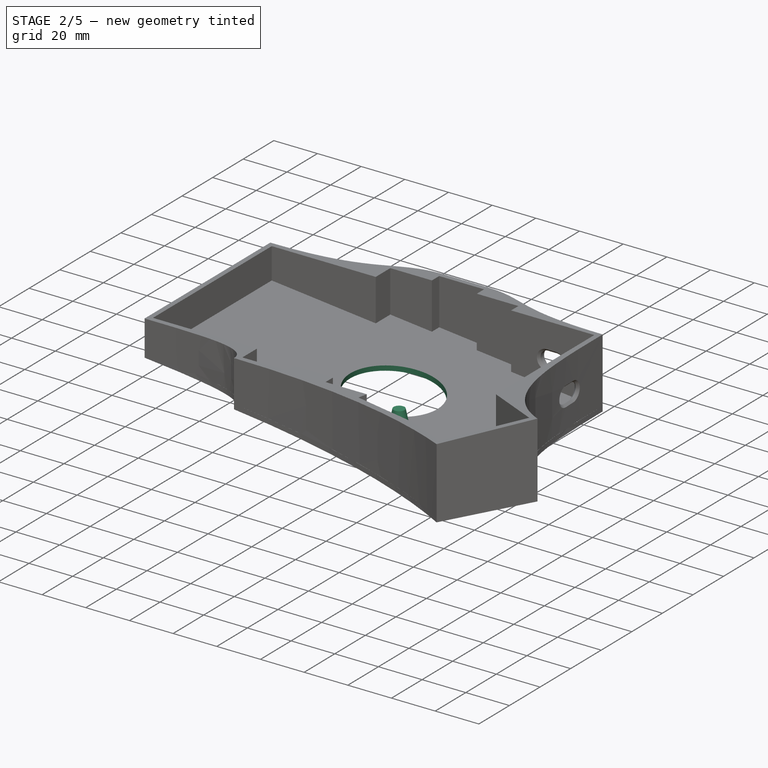
[diagram: stage 2 of 5 — iso view after this stage's code; geometry added in this stage tinted green]
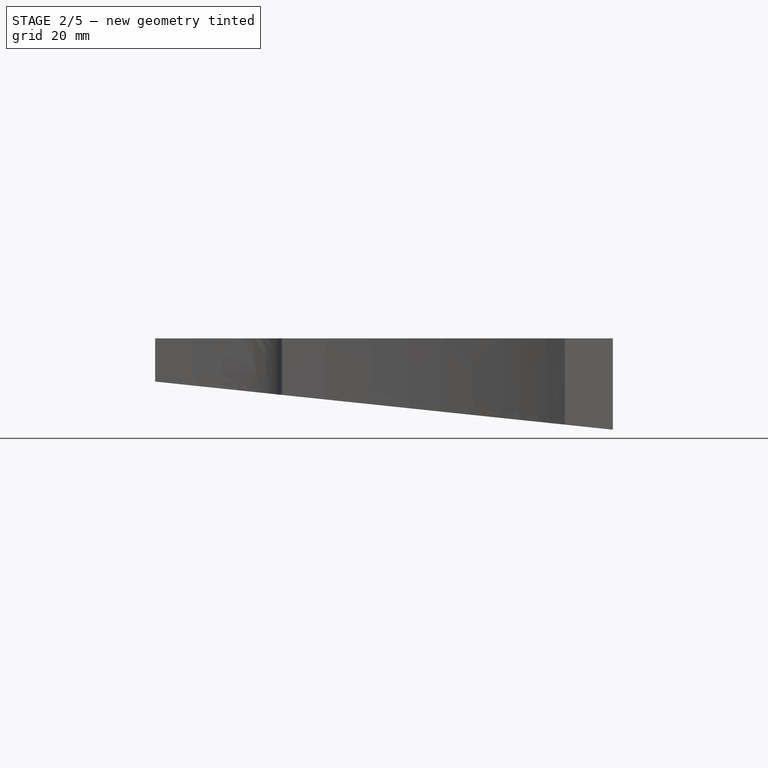
[diagram: stage 2 of 5 — front view after this stage's code; geometry added in this stage tinted green]
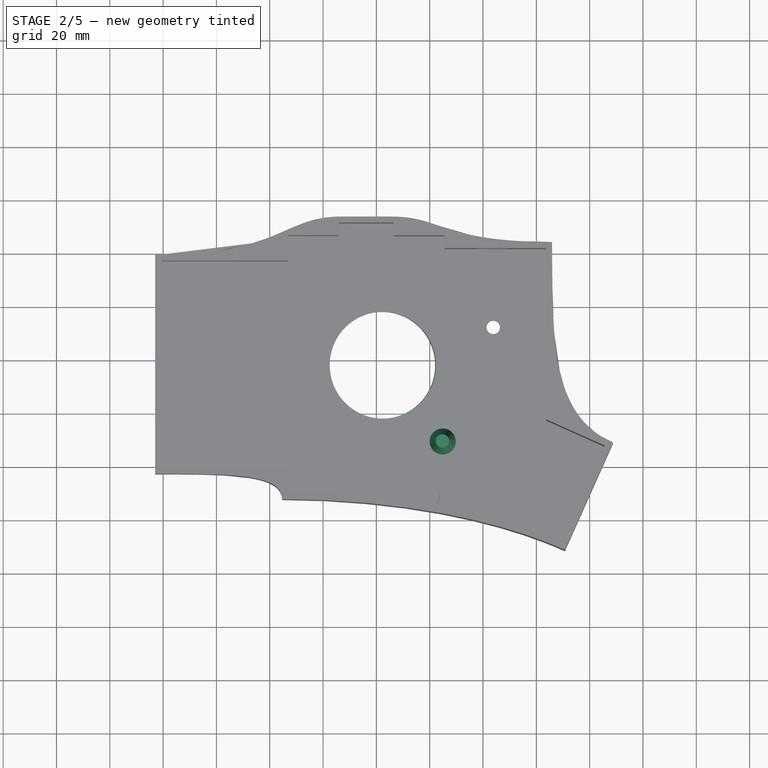
[diagram: stage 2 of 5 — top view after this stage's code; geometry added in this stage tinted green]
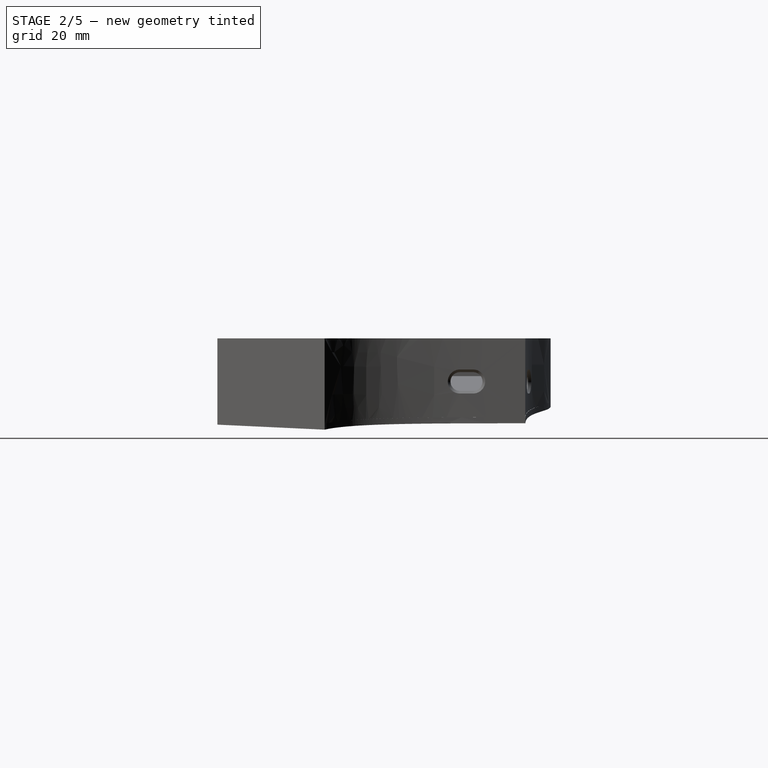
[diagram: stage 2 of 5 — right view after this stage's code; geometry added in this stage tinted green]
FEATURE [PartDesign::Chamfer] Chamfer
  Angle = 45
  Base = -> Pocket004 [Edge53,Edge52,Edge54,Edge51,Edge56,Edge55,Edge67,Edge68,Edge69,Edge70,Edge71,Edge72]
  BaseFeature = -> Pocket004
  ChamferType = 0
  FlipDirection = false
  Size = 1
  Size2 = 1
  SupportTransform = false
FEATURE [PartDesign::Chamfer] Chamfer001
  Angle = 45
  Base = -> Chamfer [Edge63,Edge60,Edge66,Edge64,Edge116,Edge115,Edge113,Edge114]
  BaseFeature = -> Chamfer
  ChamferType = 0
  FlipDirection = false
  Size = 1
  Size2 = 1
  SupportTransform = false
FEATURE [PartDesign::AdditiveCone] Cone003
  Angle = 360
  AttacherType = Attacher::AttachEngine3D
  Height = 1
  MapMode = 11
  Placement = pos=(104.775,9.525,0) rot=(0,0,1;1.5708rad)
  Radius1 = 2.7
  Radius2 = 2.5
  Support = -> [Sketch007]
  expr: Height = Spreadsheet.space_min
  expr: Radius1 = Spreadsheet.postdiameter / 2 + Spreadsheet.postcone
  expr: Radius2 = Spreadsheet.postdiameter / 2
FEATURE [PartDesign::ShapeBinder] CopyDraft006
  TraceSupport = false
FEATURE [PartDesign::Draft] Draft008
  Angle = 6
  Base = -> Cone003 [Face3]
  BaseFeature = -> Cone003
  NeutralPlane = -> CopyDraft006 [Face1]
  Placement = pos=(104.775,9.525,0) rot=(0,0,1;1.5708rad)
  SupportTransform = false
  expr: Angle = Spreadsheet.angle
FEATURE [PartDesign::Body] Body004  label="Case_p1"
  Group = -> [Sketch005,Cone,Draft005,CopyDraft004,Sketch024,Pocket011]
  Origin = -> Origin004
  Tip = -> Pocket011
FEATURE [Sketcher::SketchObject] Sketch025
  ExternalGeometry = -> [Chamfer001]
  FullyConstrained = true
  MapMode = 5
  Placement = pos=(0,0,14.2) rot=(0,0,1;0rad)
  Support = -> [Chamfer001]
  expr: Constraints[0] = Spreadsheet.grid * 6.5
  expr: Constraints[1] = Spreadsheet.grid * 2.75
  sketch-geometry (6):
    g0: Circle CenterX=123.825 CenterY=52.3875 CenterZ=0 NormalX=0 NormalY=0 NormalZ=1 AngleXU=0 Radius=2.5
    g1: LineSegment StartX=46.875 StartY=-0.75 StartZ=0 EndX=46.875 EndY=76.95 EndZ=0
    g2: LineSegment StartX=-3 StartY=-3 StartZ=0 EndX=168.705 EndY=-3 EndZ=0
    g3: LineSegment StartX=168.705 StartY=-3 StartZ=0 EndX=168.705 EndY=8.71073 EndZ=0
    g4: LineSegment StartX=82.8525 StartY=-3 StartZ=0 EndX=82.8525 EndY=38.1 EndZ=0
    g5: LineSegment StartX=46.875 StartY=38.1 StartZ=0 EndX=82.8525 EndY=38.1 EndZ=0
  constraints (15):
    c: DistanceX(g-1,g0) = 123.825
    c: DistanceY(g-1,g0) = 52.3875
    c: Diameter(g0) = 5
    c: Coincident(g1,g-6)
    c: Coincident(g1,g-5)
    c: Coincident(g2,g-4)
    c: Horizontal(g2)
    c: Coincident(g3,g2)
    c: Coincident(g3,g-3)
    c: Vertical(g3)
    c: Horizontal(g5)
    c: Symmetric(g1,g1,g5)
    c: Symmetric(g2,g2,g4)
    c: Vertical(g4)
    c: Coincident(g4,g5)
FEATURE [PartDesign::Pocket] Pocket012
  BaseFeature = -> Chamfer001
  Length = 50
  Length2 = 100
  Profile = -> Sketch025
  Type = 0
FEATURE [PartDesign::Pocket] Pocket013
  BaseFeature = -> Pocket012
  Length = 10
  Length2 = 100
  Profile = -> Sketch026
  Type = 0
FEATURE [PartDesign::Body] Body007  label="bottom"
  Group = -> [Sketch015,Pad007,Sketch016,Sketch017,Pocket003,Pocket004,Chamfer,Chamfer001,Sketch025,Pocket012,Sketch026,Pocket013]
  Origin = -> Origin007
  Tip = -> Pocket013
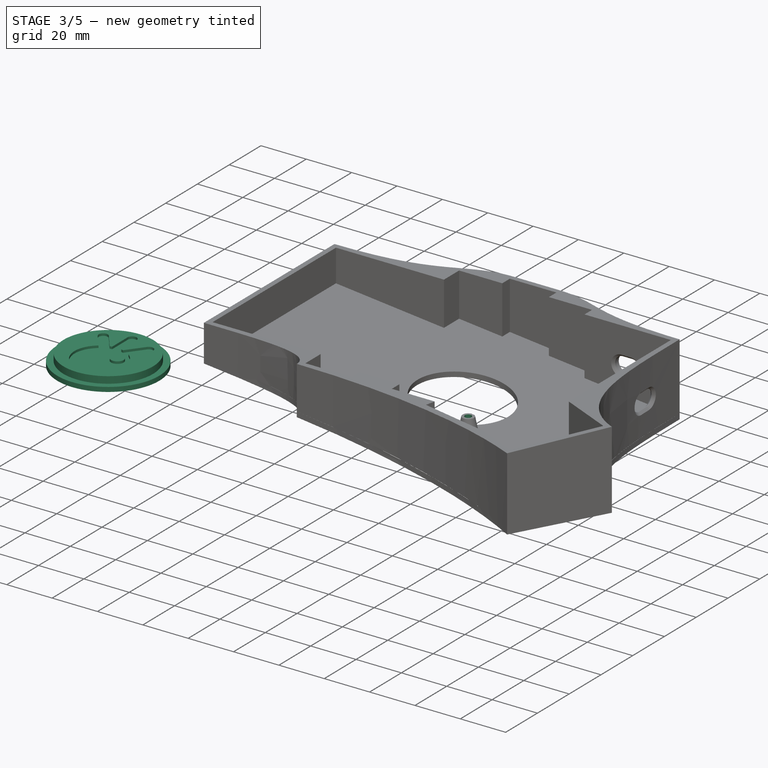
[diagram: stage 3 of 5 — iso view after this stage's code; geometry added in this stage tinted green]
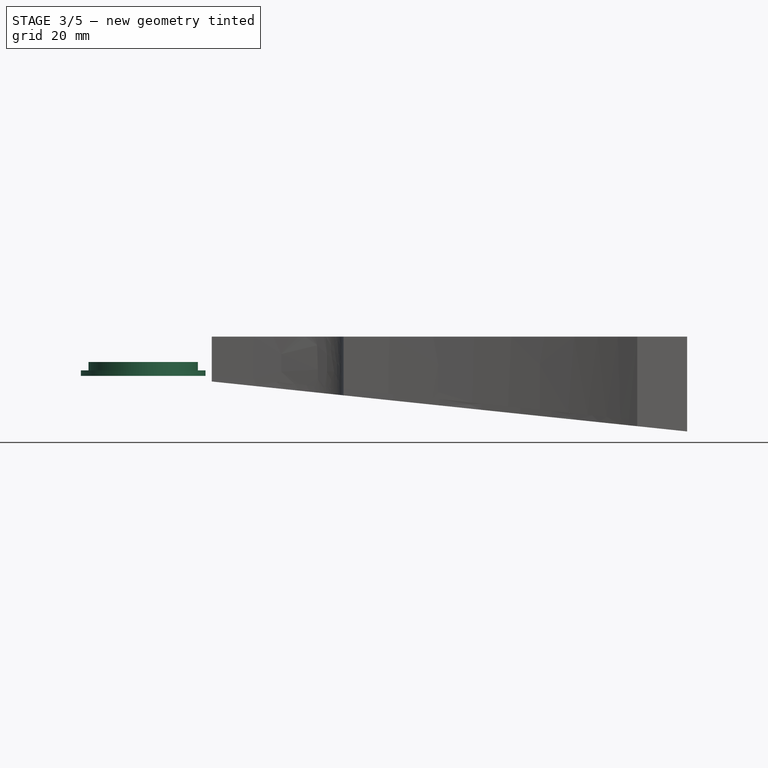
[diagram: stage 3 of 5 — front view after this stage's code; geometry added in this stage tinted green]
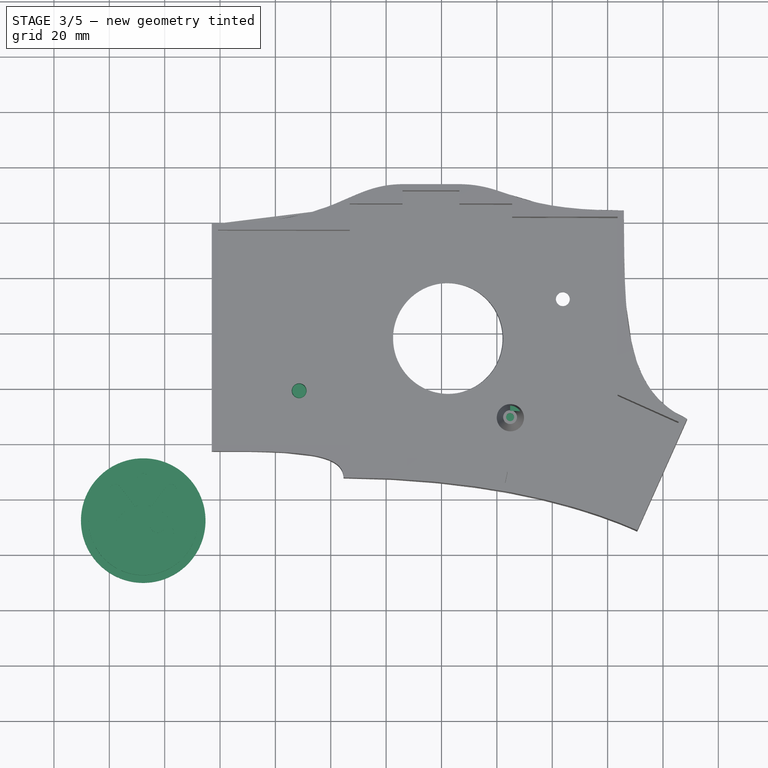
[diagram: stage 3 of 5 — top view after this stage's code; geometry added in this stage tinted green]
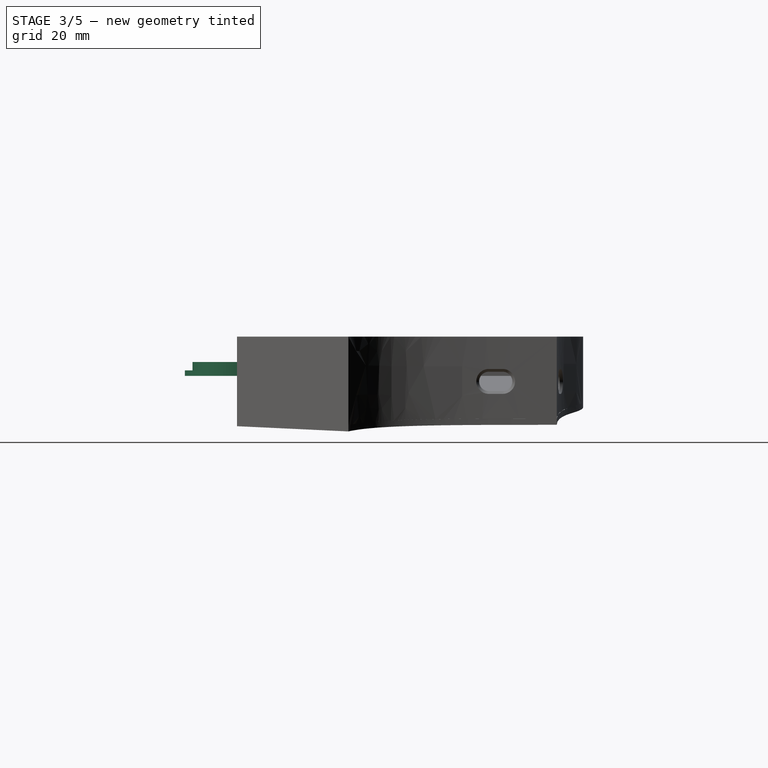
[diagram: stage 3 of 5 — right view after this stage's code; geometry added in this stage tinted green]
FEATURE [PartDesign::Body] Body001  label="Plate"
  Group = -> [Sketch002,Pad001,Sketch009,Sketch010,Sketch011,Sketch012,Pocket,Sketch018,Pocket005]
  Origin = -> Origin001
  Placement = pos=(0,0,5) rot=(0,0,1;0rad)
  Tip = -> Pocket005
FEATURE [PartDesign::AdditiveCone] Cone
  Angle = 360
  AttacherType = Attacher::AttachEngine3D
  AttachmentOffset = pos=(0,0,1) rot=(1,0,0;3.14159rad)
  Height = 1
  MapMode = 11
  Placement = pos=(28.575,19.05,1) rot=(0.707107,0.707107,0;3.14159rad)
  Radius1 = 2.5
  Radius2 = 2.7
  Support = -> [Sketch005]
  expr: Height = <<Constants>>.space_min
  expr: .AttachmentOffset.Base.z = <<Constants>>.space_min
  expr: Radius1 = Spreadsheet.postdiameter / 2
  expr: Radius2 = Spreadsheet.postdiameter / 2 + Spreadsheet.postcone
FEATURE [Sketcher::SketchObject] Sketch022
  FullyConstrained = true
  MapMode = 5
  Placement = pos=(104.775,9.525,1) rot=(0,0,1;1.5708rad)
  Support = -> [Draft008]
  expr: Constraints[1] = Spreadsheet.posthole
  sketch-geometry (1):
    g0: Circle CenterX=0 CenterY=0 CenterZ=0 NormalX=0 NormalY=0 NormalZ=1 AngleXU=0 Radius=1.45
  constraints (2):
    c: Coincident(g0,g-1)
    c: Diameter(g0) = 2.9
FEATURE [PartDesign::Pocket] Pocket009
  BaseFeature = -> Draft008
  Length = 5
  Length2 = 100
  Placement = pos=(104.775,9.525,0) rot=(0,0,1;1.5708rad)
  Profile = -> Sketch022
  Type = 0
FEATURE [Sketcher::SketchObject] Sketch026
  ExternalGeometry = -> [Pocket012]
  FullyConstrained = false
  MapMode = 5
  Placement = pos=(-0.00819465,0,-0.0779669) rot=(0,1,0;0.10472rad)
  Support = -> [Pocket012]
  expr: Constraints[13] = Spreadsheet.weight_diameter
  sketch-geometry (6):
    g0: LineSegment StartX=-0.745891 StartY=-0.75 StartZ=0 EndX=166.654 EndY=-0.75 EndZ=0
    g1: LineSegment StartX=166.654 StartY=-0.75 StartZ=0 EndX=166.654 EndY=7.57485 EndZ=0
    g2: LineSegment StartX=47.1414 StartY=-0.75 StartZ=0 EndX=47.1414 EndY=76.95 EndZ=0
    g3: LineSegment StartX=47.1414 StartY=38.1 StartZ=0 EndX=82.954 EndY=38.1 EndZ=0
    g4: LineSegment StartX=82.954 StartY=38.1 StartZ=0 EndX=82.954 EndY=-0.75 EndZ=0
    g5: Circle CenterX=82.8584 CenterY=38.1 CenterZ=0 NormalX=0 NormalY=0 NormalZ=1 AngleXU=0 Radius=20
  constraints (14):
    c: Coincident(g0,g-6)
    c: Horizontal(g0)
    c: Coincident(g0,g1)
    c: Coincident(g1,g-3)
    c: Vertical(g1)
    c: Coincident(g2,g-5)
    c: Coincident(g2,g-4)
    c: Horizontal(g3)
    c: Coincident(g3,g4)
    c: Vertical(g4)
    c: Symmetric(g0,g0,g4)
    c: Symmetric(g2,g2,g3)
    c: PointOnObject(g5,g3)
    c: Diameter(g5) = 40
FEATURE [Sketcher::SketchObject] Sketch027
  FullyConstrained = false
  MapMode = 5
  Support = -> [XY_Plane008]
  expr: Constraints[0] = Spreadsheet.weight_diameter + 5
  sketch-geometry (1):
    g0: Circle CenterX=-27.7529 CenterY=-27.8756 CenterZ=0 NormalX=0 NormalY=0 NormalZ=1 AngleXU=0 Radius=22.5
  constraints (1):
    c: Diameter(g0) = 45
FEATURE [PartDesign::Pad] Pad008
  Direction = (1,1,1)
  Length = 2
  Length2 = 100
  Profile = -> Sketch027
  Type = 0
FEATURE [Sketcher::SketchObject] Sketch028
  ExternalGeometry = -> [Pad008]
  FullyConstrained = true
  MapMode = 5
  Placement = pos=(0,0,2) rot=(0,0,1;0rad)
  Support = -> [Pad008]
  expr: Constraints[1] = Spreadsheet.weight_diameter - 0.5
  sketch-geometry (1):
    g0: Circle CenterX=-27.7529 CenterY=-27.8756 CenterZ=0 NormalX=0 NormalY=0 NormalZ=1 AngleXU=0 Radius=19.75
  constraints (2):
    c: Coincident(g0,g-3)
    c: Diameter(g0) = 39.5
FEATURE [PartDesign::Pad] Pad009
  BaseFeature = -> Pad008
  Direction = (1,1,1)
  Length = 3
  Length2 = 100
  Profile = -> Sketch028
  Type = 0
  expr: Length = Spreadsheet.brim
FEATURE [Sketcher::SketchObject] Sketch029
  ExternalGeometry = -> [Pad009]
  FullyConstrained = true
  MapMode = 5
  Placement = pos=(0,0,5) rot=(0,0,1;0rad)
  Support = -> [Pad009]
  expr: Constraints[8] = Spreadsheet.angle_lashes
  expr: Constraints[49] = Spreadsheet.angle_lashes
  sketch-geometry (20):
    g0: ArcOfCircle CenterX=-27.7529 CenterY=-33.3756 CenterZ=0 NormalX=0 NormalY=0 NormalZ=1 AngleXU=0 Radius=11 StartAngle=2.21603 EndAngle=7.20835
    g1: LineSegment StartX=-27.7529 StartY=-27.8756 StartZ=0 EndX=-27.7529 EndY=-33.3756 EndZ=0
    g2: LineSegment StartX=-27.7529 StartY=-27.8756 StartZ=0 EndX=-37.7899 EndY=-16.7285 EndZ=0
    g3: LineSegment StartX=-27.7529 StartY=-27.8756 StartZ=0 EndX=-27.7529 EndY=-12.8756 EndZ=0
    g4: LineSegment StartX=-27.7529 StartY=-27.8756 StartZ=0 EndX=-17.716 EndY=-16.7285 EndZ=0
    g5: ArcOfCircle CenterX=-37.7899 CenterY=-16.7285 CenterZ=0 NormalX=0 NormalY=0 NormalZ=1 AngleXU=0 Radius=2 StartAngle=0.645237 EndAngle=3.87463
    g6: ArcOfCircle CenterX=-27.7529 CenterY=-12.8756 CenterZ=0 NormalX=0 NormalY=0 NormalZ=1 AngleXU=0 Radius=2 StartAngle=0 EndAngle=3.14159
    g7: ArcOfCircle CenterX=-17.716 CenterY=-16.7285 CenterZ=0 NormalX=0 NormalY=0 NormalZ=1 AngleXU=0 Radius=2 StartAngle=5.63755 EndAngle=8.69174
    g8: LineSegment StartX=-39.2762 StartY=-18.0667 StartZ=0 EndX=-34.3682 EndY=-24.5871 EndZ=0
    g9: LineSegment StartX=-36.192 StartY=-15.5257 StartZ=0 EndX=-30.7274 EndY=-22.7854 EndZ=0
    g10: LineSegment StartX=-29.7529 StartY=-12.8756 StartZ=0 EndX=-29.7529 EndY=-22.559 EndZ=0
    g11: LineSegment StartX=-25.7529 StartY=-12.8756 StartZ=0 EndX=-25.7529 EndY=-22.559 EndZ=0
    g12: LineSegment StartX=-16.1185 StartY=-17.9319 StartZ=0 EndX=-21.1342 EndY=-24.5897 EndZ=0
    g13: LineSegment StartX=-19.2023 StartY=-15.3902 StartZ=0 EndX=-17.716 EndY=-16.7285 EndZ=0
    g14: LineSegment StartX=-39.2762 StartY=-18.0667 StartZ=0 EndX=-37.7899 EndY=-16.7285 EndZ=0
    g15: LineSegment StartX=-34.3682 StartY=-24.5871 StartZ=0 EndX=-27.7529 EndY=-33.3756 EndZ=0
    g16: LineSegment StartX=-27.7529 StartY=-33.3756 StartZ=0 EndX=-21.1342 EndY=-24.5897 EndZ=0
    g17: ArcOfCircle CenterX=-27.7529 CenterY=-33.3756 CenterZ=0 NormalX=0 NormalY=0 NormalZ=1 AngleXU=0 Radius=11 StartAngle=1.75363 EndAngle=1.84462
    g18: ArcOfCircle CenterX=-27.7529 CenterY=-33.3756 CenterZ=0 NormalX=0 NormalY=0 NormalZ=1 AngleXU=0 Radius=11 StartAngle=1.29658 EndAngle=1.38796
    g19: LineSegment StartX=-24.7743 StartY=-22.7866 StartZ=0 EndX=-19.2023 EndY=-15.3902 EndZ=0
  constraints (53):
    c: Coincident(g1,g-3)
    c: Coincident(g1,g0)
    c: Coincident(g2,g1)
    c: Coincident(g3,g1)
    c: Coincident(g4,g1)
    c: Equal(g4,g3)
    c: Equal(g3,g2)
    c: Vertical(g1)
    c: Angle(g3,g2) = 0.733038
    c: Coincident(g5,g2)
    c: Coincident(g6,g3)
    c: Coincident(g7,g4)
    c: Equal(g6,g5)
    c: Vertical(g10)
    c: Vertical(g11)
    c: Parallel(g9,g8)
    c: Coincident(g14,g8)
    c: Coincident(g14,g5)
    c: Perpendicular(g14,g2)
    c: Coincident(g15,g8)
    c: Coincident(g15,g0)
    c: Coincident(g16,g0)
    c: Coincident(g16,g12)
    c: Parallel(g16,g12)
    c: Parallel(g15,g8)
    c: Equal(g11,g10)
    c: Distance(g2) = 15
    c: Diameter(g0) = 22
    c: DistanceY(g1,g1) = 5.5
    c: Coincident(g5,g8)
    c: Tangent(g5,g9) = 1.5708
    c: Coincident(g0,g8)
    c: Coincident(g17,g9)
    c: Equal(g0,g17)
    c: Coincident(g17,g10)
    c: Coincident(g0,g17)
    c: Coincident(g18,g11)
    c: Equal(g0,g18)
    c: Coincident(g0,g18)
    c: Coincident(g0,g12)
    c: Tangent(g7,g12) = 1.5708
    c: Coincident(g6,g11)
    c: Tangent(g6,g10) = -1.5708
    c: Coincident(g7,g13)
    c: Perpendicular(g4,g13)
    c: Coincident(g19,g18)
    c: Coincident(g19,g7)
    c: Coincident(g13,g7)
    c: Vertical(g3)
    c: Angle(g4,g3) = 0.733038
    c: Equal(g7,g6)
    c: Diameter(g6) = 4
    c: Parallel(g19,g12)
FEATURE [PartDesign::Pocket] Pocket014
  BaseFeature = -> Pad009
  Length = 1
  Length2 = 100
  Profile = -> Sketch029
  Type = 0
FEATURE [Sketcher::SketchObject] Sketch030
  ExternalGeometry = -> [Pocket014]
  FullyConstrained = false
  MapMode = 5
  Placement = pos=(0,0,4) rot=(0,0,1;0rad)
  Support = -> [Pocket014]
  sketch-geometry (1):
    g0: Circle CenterX=-22.5749 CenterY=-29.5458 CenterZ=0 NormalX=0 NormalY=0 NormalZ=1 AngleXU=0 Radius=2.75
  constraints (1):
    c: Diameter(g0) = 5.5
FEATURE [PartDesign::Pad] Pad010
  BaseFeature = -> Pocket014
  Direction = (1,1,1)
  Length = 1
  Length2 = 100
  Profile = -> Sketch030
  Type = 0
FEATURE [PartDesign::Body] Body008  label="pluck (get it?)"
  Group = -> [Sketch027,Pad008,Sketch028,Pad009,Sketch029,Pocket014,Sketch030,Pad010]
  Origin = -> Origin008
  Tip = -> Pad010
FEATURE [PartDesign::ShapeBinder] CopyFusion
  TraceSupport = false
FEATURE [Sketcher::SketchObject] Sketch031
  ExternalGeometry = -> [CopyFusion]
  FullyConstrained = false
  MapMode = 5
  Placement = pos=(0,0,1) rot=(0,0,1;0rad)
  Support = -> [CopyFusion]
  sketch-geometry (6):
    g0: LineSegment StartX=104.775 StartY=11.775 StartZ=0 EndX=112.705 EndY=11.775 EndZ=0
    g1: LineSegment StartX=112.705 StartY=11.775 StartZ=0 EndX=112.705 EndY=18.8955 EndZ=0
    g2: LineSegment StartX=112.705 StartY=18.8955 StartZ=0 EndX=104.775 EndY=18.8955 EndZ=0
    g3: LineSegment StartX=104.775 StartY=18.8955 StartZ=0 EndX=104.775 EndY=11.775 EndZ=0
    g4: LineSegment StartX=104.775 StartY=9.525 StartZ=0 EndX=107.275 EndY=9.525 EndZ=0
    g5: LineSegment StartX=104.775 StartY=9.525 StartZ=0 EndX=104.775 EndY=12.025 EndZ=0
  constraints (17):
    c: Coincident(g0,g1)
    c: Coincident(g1,g2)
    c: Coincident(g2,g3)
    c: Coincident(g3,g0)
    c: Horizontal(g0)
    c: Horizontal(g2)
    c: Vertical(g1)
    c: Vertical(g3)
    c: Coincident(g4,g-3)
    c: PointOnObject(g4,g-3)
    c: Horizontal(g4)
    c: Coincident(g5,g4)
    c: Vertical(g5)
    c: PointOnObject(g5,g-3)
    c: Diameter(g-3) = 5
    c: DistanceX(g0,g4) = 2.5
    c: DistanceY(g4,g0) = 2.25
FEATURE [PartDesign::Pocket] Pocket015
  BaseFeature = -> Pocket009
  Length = 9
  Length2 = 100
  Placement = pos=(104.775,9.525,0) rot=(0,0,1;1.5708rad)
  Profile = -> Sketch031
  Type = 0
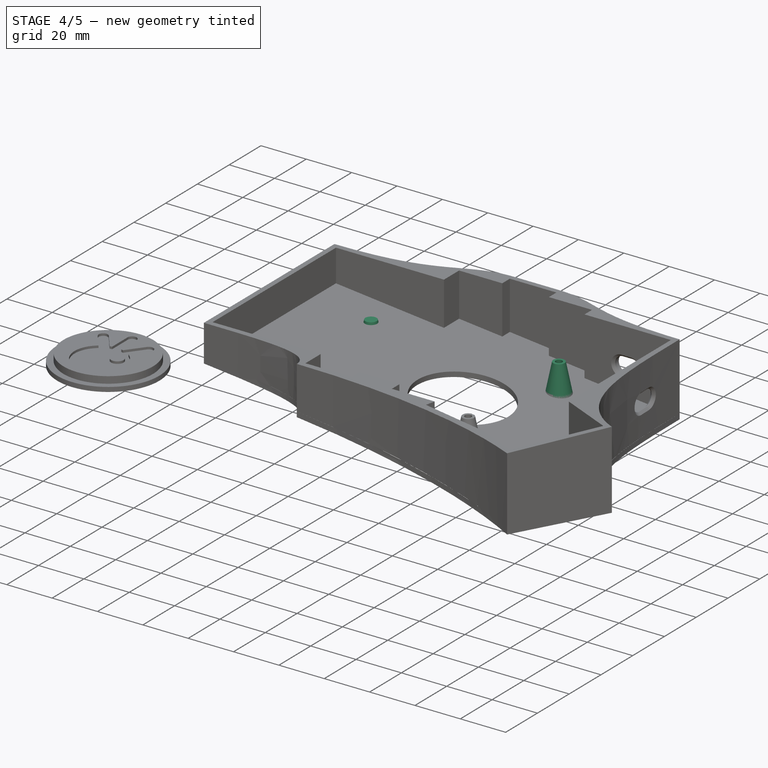
[diagram: stage 4 of 5 — iso view after this stage's code; geometry added in this stage tinted green]
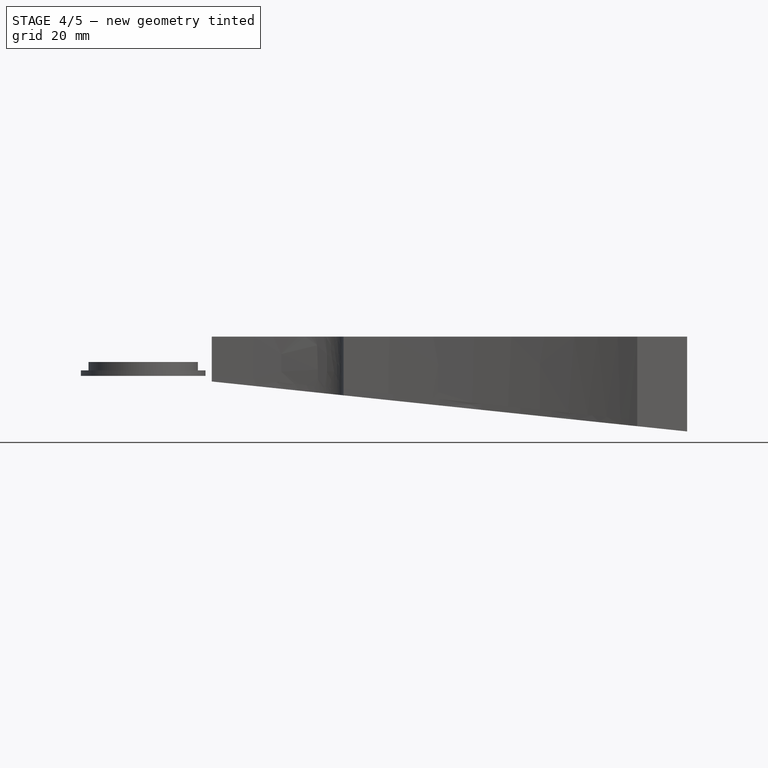
[diagram: stage 4 of 5 — front view after this stage's code; geometry added in this stage tinted green]
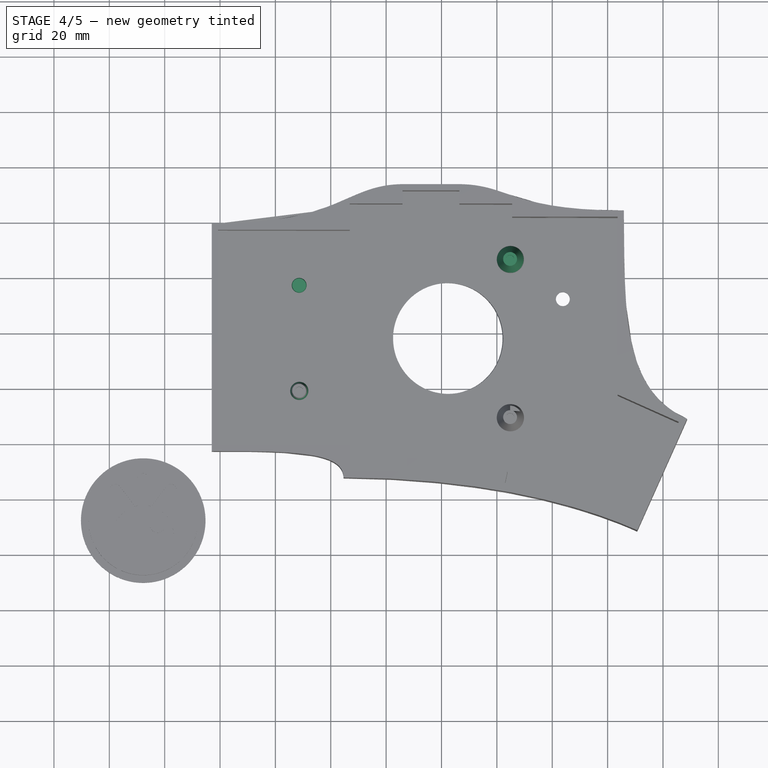
[diagram: stage 4 of 5 — top view after this stage's code; geometry added in this stage tinted green]
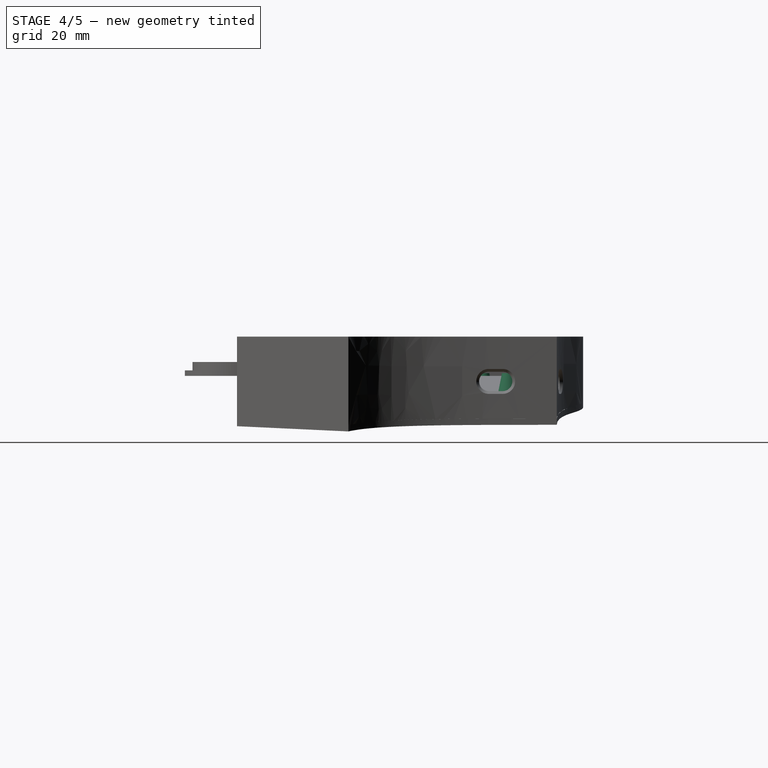
[diagram: stage 4 of 5 — right view after this stage's code; geometry added in this stage tinted green]
FEATURE [PartDesign::ShapeBinder] CopyDraft004
  TraceSupport = false
FEATURE [PartDesign::Draft] Draft005
  Angle = 6
  Base = -> Cone [Face2]
  BaseFeature = -> Cone
  NeutralPlane = -> CopyDraft004 [Face1]
  Placement = pos=(28.575,19.05,1) rot=(0.707107,0.707107,0;3.14159rad)
  SupportTransform = false
FEATURE [PartDesign::AdditiveCone] Cone001
  Angle = 360
  AttacherType = Attacher::AttachEngine3D
  AttachmentOffset = pos=(0,0,1) rot=(0,1,0;3.14159rad)
  Height = 1
  MapMode = 11
  Placement = pos=(28.575,57.15,1) rot=(-0.707107,0.707107,0;3.14159rad)
  Radius1 = 2.5
  Radius2 = 2.7
  Support = -> [Sketch004]
  expr: .AttachmentOffset.Base.z = Spreadsheet.space_min
  expr: Height = Spreadsheet.space_min
  expr: Radius1 = Spreadsheet.postdiameter / 2
  expr: Radius2 = Spreadsheet.postdiameter / 2 + Spreadsheet.postcone
FEATURE [PartDesign::Body] Body003  label="Case_p0"
  Group = -> [Sketch004,Cone001,Draft006,CopyDraft,Sketch020,Pocket007]
  Origin = -> Origin003
  Tip = -> Pocket007
FEATURE [PartDesign::AdditiveCone] Cone002
  Angle = 360
  AttacherType = Attacher::AttachEngine3D
  Height = 1
  MapMode = 11
  Placement = pos=(104.775,66.675,0) rot=(0,0,1;1.5708rad)
  Radius1 = 2.7
  Radius2 = 2.5
  Support = -> [Sketch006]
  expr: Height = Spreadsheet.space_min
  expr: Radius1 = Spreadsheet.postdiameter / 2 + Spreadsheet.postcone
  expr: Radius2 = Spreadsheet.postdiameter / 2
FEATURE [PartDesign::ShapeBinder] CopyDraft005
  TraceSupport = false
FEATURE [PartDesign::Draft] Draft007
  Angle = 6
  Base = -> Cone002 [Face3]
  BaseFeature = -> Cone002
  NeutralPlane = -> CopyDraft005 [Face1]
  Placement = pos=(104.775,66.675,0) rot=(0,0,1;1.5708rad)
  SupportTransform = false
  expr: Angle = Spreadsheet.angle
FEATURE [Sketcher::SketchObject] Sketch023
  FullyConstrained = true
  MapMode = 5
  Placement = pos=(104.775,66.675,1) rot=(0,0,1;1.5708rad)
  Support = -> [Draft007]
  expr: Constraints[1] = Spreadsheet.posthole
  sketch-geometry (1):
    g0: Circle CenterX=0 CenterY=0 CenterZ=0 NormalX=0 NormalY=0 NormalZ=1 AngleXU=0 Radius=1.45
  constraints (2):
    c: Coincident(g0,g-1)
    c: Diameter(g0) = 2.9
FEATURE [PartDesign::Pocket] Pocket010
  BaseFeature = -> Draft007
  Length = 5
  Length2 = 100
  Placement = pos=(104.775,66.675,0) rot=(0,0,1;1.5708rad)
  Profile = -> Sketch023
  Type = 0
FEATURE [PartDesign::Body] Body005  label="Case_p2"
  Group = -> [Sketch006,Cone002,Draft007,CopyDraft005,Sketch023,Pocket010]
  Origin = -> Origin005
  Tip = -> Pocket010
FEATURE [Sketcher::SketchObject] Sketch024
  FullyConstrained = true
  MapMode = 5
  Placement = pos=(28.575,19.05,1) rot=(0,0,1;1.5708rad)
  Support = -> [Draft005]
  expr: Constraints[1] = Spreadsheet.posthole
  sketch-geometry (1):
    g0: Circle CenterX=0 CenterY=0 CenterZ=0 NormalX=0 NormalY=0 NormalZ=1 AngleXU=0 Radius=1.45
  constraints (2):
    c: Coincident(g0,g-1)
    c: Diameter(g0) = 2.9
FEATURE [PartDesign::Pocket] Pocket011
  BaseFeature = -> Draft005
  Length = 5
  Length2 = 100
  Placement = pos=(28.575,19.05,1) rot=(0.707107,0.707107,0;3.14159rad)
  Profile = -> Sketch024
  Type = 0
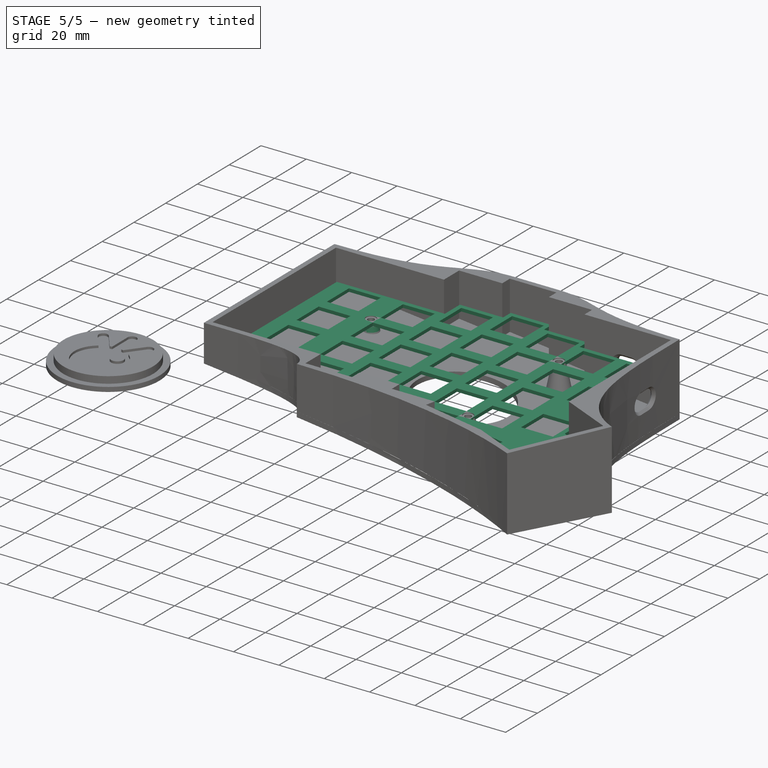
[diagram: stage 5 of 5 — iso view after this stage's code; geometry added in this stage tinted green]
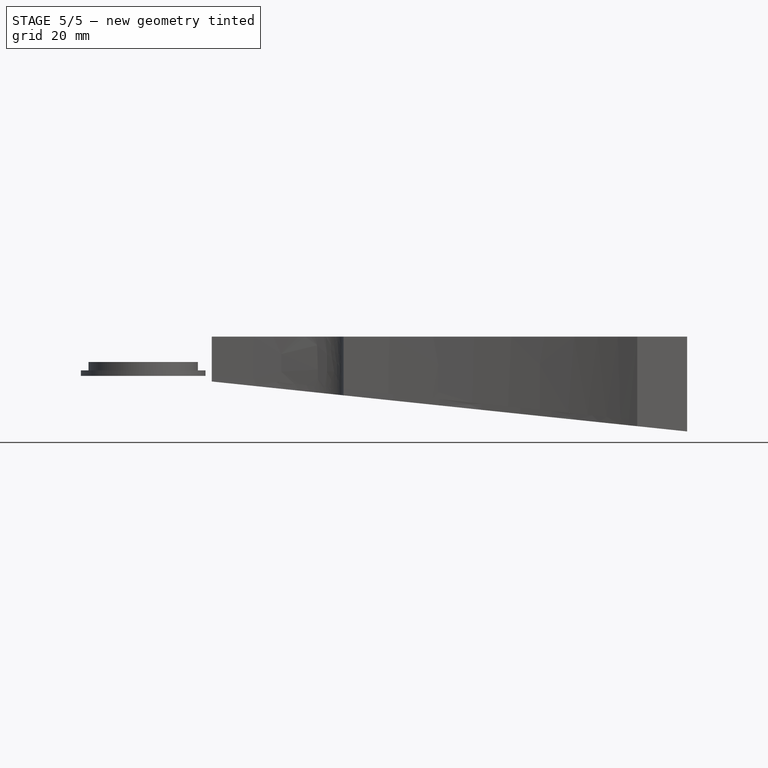
[diagram: stage 5 of 5 — front view after this stage's code; geometry added in this stage tinted green]
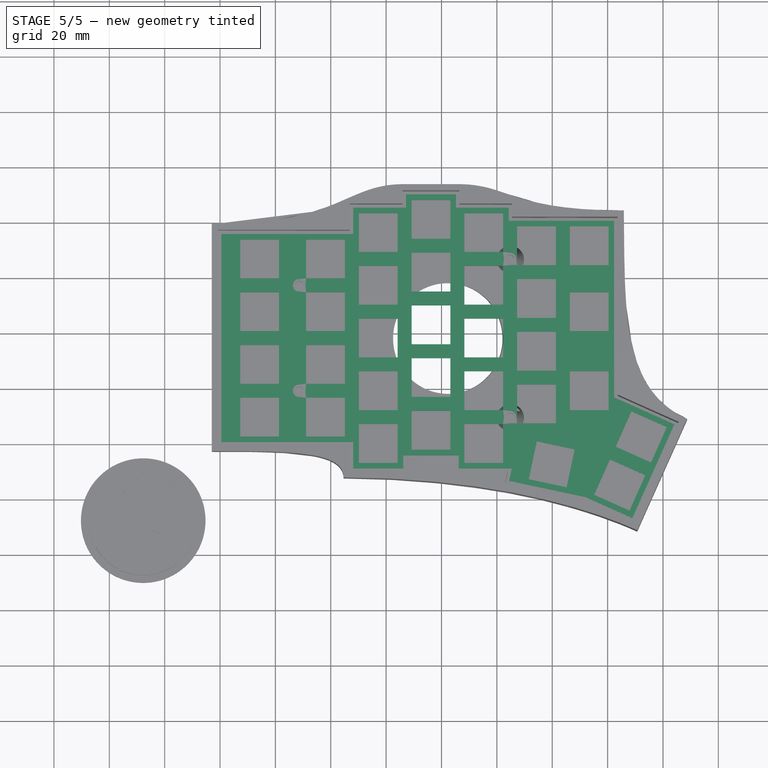
[diagram: stage 5 of 5 — top view after this stage's code; geometry added in this stage tinted green]
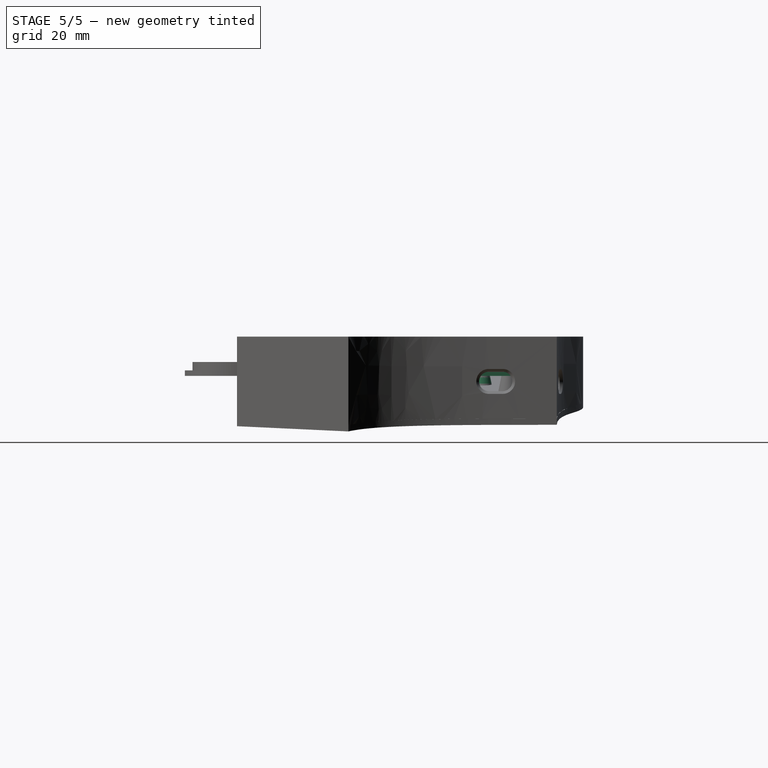
[diagram: stage 5 of 5 — right view after this stage's code; geometry added in this stage tinted green]
FEATURE [Spreadsheet::Sheet] Spreadsheet  label="Constants"
  cells = A1=grid; B1(grid)=19.05; C1=hole; D1(hole)=14; E1=spacing; F1(spacing)==grid - hole; A2=edge; B2(edge)=4; C2=hole_base; D2(hole_base)=14; A3=mod_units; B3(mod_units)=1.5; A5=plate; D5=case; A6=thickness; B6(thickness)=1.4; D6=highprofile; E6(highprofile)==11.6 + 1.6; A7=margin; B7(margin)=0.5; D7=platetopcb; E7(platetopcb)=0; F7=6.6 for plate screw; A8=platehole; B8(platehole)=4.5; D8=space_min; E8(space_min)=1; F8=8,5 for plate screw; G8=postcone; H8(postcone)=0.2; D9=postdiameter; E9(postdiameter)=5; F9=posthole; G9(posthole)=2.9; D10=angle; E10(angle)=6; A11=weight; D11=brim; E11(brim)==1.75 + 1.25; A12=weight_diameter; B12(weight_diameter)=40; D12=clearance; E12(clearance)=0.75; D13=port_position; E13(port_position)=2; A14=pluckey; A15=angle_lashes; B15(angle_lashes)=42
FEATURE [Sketcher::SketchObject] Sketch002  label="plate_w_margin"
  FullyConstrained = true
  expr: Constraints[215] = <<Constants>>.margin
  expr: Constraints[214] = <<Constants>>.margin
  expr: Constraints[197] = <<Constants>>.margin
  expr: Constraints[212] = <<Constants>>.margin
  expr: Constraints[210] = <<Constants>>.margin
  expr: Constraints[216] = <<Constants>>.margin
  expr: Constraints[201] = <<Constants>>.margin
  expr: Constraints[206] = <<Constants>>.margin
  expr: Constraints[203] = <<Constants>>.margin
  expr: Constraints[209] = <<Constants>>.margin
  expr: Constraints[200] = <<Constants>>.margin
  expr: Constraints[199] = <<Constants>>.margin
  expr: Constraints[196] = <<Constants>>.margin
  expr: Constraints[198] = <<Constants>>.margin
  expr: Constraints[195] = <<Constants>>.margin
  expr: Constraints[194] = <<Constants>>.margin
  expr: Constraints[193] = <<Constants>>.margin
  expr: Constraints[77] = Spreadsheet.grid
  expr: Constraints[2] = 4 * Spreadsheet.grid
  expr: Constraints[5] = (Spreadsheet.mod_units + 1) * Spreadsheet.grid
  expr: Constraints[127] = Spreadsheet.spacing / 2
  expr: Constraints[72] = Spreadsheet.grid
  expr: Constraints[26] = Spreadsheet.grid / 2
  expr: Constraints[204] = <<Constants>>.margin
  expr: Constraints[95] = 0.75 * Spreadsheet.grid - Spreadsheet.hole / 2
  expr: Constraints[25] = Spreadsheet.grid / 4
  expr: Constraints[28] = Spreadsheet.grid * 2
  expr: Constraints[122] = Spreadsheet.hole
  expr: Constraints[51] = Spreadsheet.grid * 1.5
  expr: Constraints[94] = Spreadsheet.spacing / 2
  expr: Constraints[211] = <<Constants>>.margin
  expr: Constraints[78] = 180 - 12.08569093596732
  expr: Constraints[90] = Spreadsheet.hole
  expr: Constraints[79] = Spreadsheet.grid - 14.60669124913411
  expr: Constraints[207] = <<Constants>>.margin
  expr: Constraints[213] = <<Constants>>.margin
  expr: Constraints[52] = Spreadsheet.grid
  expr: Constraints[61] = 78°
  expr: Constraints[69] = Spreadsheet.grid
  expr: Constraints[126] = Spreadsheet.spacing / 2
  expr: Constraints[124] = Spreadsheet.grid / 2
  expr: Constraints[208] = <<Constants>>.margin
  expr: Constraints[128] = Spreadsheet.spacing / 2
  expr: Constraints[64] = Spreadsheet.mod_units * Spreadsheet.grid / 2
  expr: Constraints[129] = Spreadsheet.spacing / 2
  expr: Constraints[67] = Spreadsheet.grid
  expr: Constraints[70] = Spreadsheet.grid * Spreadsheet.mod_units + Spreadsheet.grid / 2
  expr: Constraints[75] = Spreadsheet.grid
  expr: Constraints[22] = Spreadsheet.grid
  expr: Constraints[205] = <<Constants>>.margin
  expr: Constraints[53] = Spreadsheet.grid * 2
  sketch-geometry (72):
    g0: LineSegment StartX=104.775 StartY=-9.525 StartZ=0 EndX=103.851 EndY=-13.8712 EndZ=0
    g1: LineSegment StartX=0 StartY=0 StartZ=0 EndX=0 EndY=76.2 EndZ=0
    g2: LineSegment StartX=0 StartY=76.2 StartZ=0 EndX=47.625 EndY=76.2 EndZ=0
    g3: LineSegment StartX=47.625 StartY=76.2 StartZ=0 EndX=47.625 EndY=85.725 EndZ=0
    g4: LineSegment StartX=47.625 StartY=85.725 StartZ=0 EndX=66.675 EndY=85.725 EndZ=0
    g5: LineSegment StartX=66.675 StartY=85.725 StartZ=0 EndX=66.675 EndY=90.4875 EndZ=0
    g6: LineSegment StartX=66.675 StartY=90.4875 StartZ=0 EndX=85.725 EndY=90.4875 EndZ=0
    g7: LineSegment StartX=85.725 StartY=90.4875 StartZ=0 EndX=85.725 EndY=85.725 EndZ=0
    g8: LineSegment StartX=85.725 StartY=85.725 StartZ=0 EndX=104.775 EndY=85.725 EndZ=0
    g9: LineSegment StartX=104.775 StartY=85.725 StartZ=0 EndX=104.775 EndY=80.9625 EndZ=0
    g10: LineSegment StartX=104.775 StartY=80.9625 StartZ=0 EndX=142.875 EndY=80.9625 EndZ=0
    g11: LineSegment StartX=142.875 StartY=80.9625 StartZ=0 EndX=142.875 EndY=16.9712 EndZ=0
    g12: LineSegment StartX=0 StartY=0 StartZ=0 EndX=47.625 EndY=0 EndZ=0
    g13: LineSegment StartX=47.625 StartY=0 StartZ=0 EndX=47.625 EndY=-9.525 EndZ=0
    g14: LineSegment StartX=47.625 StartY=-9.525 StartZ=0 EndX=66.675 EndY=-9.525 EndZ=0
    g15: LineSegment StartX=66.675 StartY=-9.525 StartZ=0 EndX=66.675 EndY=-4.7625 EndZ=0
    g16: LineSegment StartX=66.675 StartY=-4.7625 StartZ=0 EndX=85.725 EndY=-4.7625 EndZ=0
    g17: LineSegment StartX=85.725 StartY=-4.7625 StartZ=0 EndX=85.725 EndY=-9.525 EndZ=0
    g18: LineSegment StartX=164.742 StartY=7.19623 StartZ=0 EndX=149.193 EndY=-27.5866 EndZ=0
    g19: LineSegment StartX=149.193 StartY=-27.5866 StartZ=0 EndX=131.802 EndY=-19.8123 EndZ=0
    g20: LineSegment StartX=131.802 StartY=-19.8123 StartZ=0 EndX=103.851 EndY=-13.8712 EndZ=0
    g21: LineSegment StartX=164.742 StartY=7.19623 StartZ=0 EndX=142.875 EndY=16.9712 EndZ=0
    g22: LineSegment StartX=85.725 StartY=-9.525 StartZ=0 EndX=104.775 EndY=-9.525 EndZ=0
    g23: LineSegment StartX=14.2875 StartY=76.2 StartZ=0 EndX=14.2875 EndY=0 EndZ=0
    g24: LineSegment StartX=38.1 StartY=76.2 StartZ=0 EndX=38.1 EndY=0 EndZ=0
    g25: LineSegment StartX=57.15 StartY=85.725 StartZ=0 EndX=57.15 EndY=-9.525 EndZ=0
    g26: LineSegment StartX=76.2 StartY=90.4875 StartZ=0 EndX=76.2 EndY=-4.7625 EndZ=0
    g27: LineSegment StartX=95.25 StartY=85.725 StartZ=0 EndX=95.25 EndY=-9.525 EndZ=0
    g28: LineSegment StartX=114.3 StartY=80.9625 StartZ=0 EndX=114.3 EndY=-9.525 EndZ=0
    g29: LineSegment StartX=133.35 StartY=80.9625 StartZ=0 EndX=133.35 EndY=-9.525 EndZ=0
    g30: LineSegment StartX=111.504 StartY=-12.9165 StartZ=0 EndX=125.198 EndY=-15.8273 EndZ=0
    g31: LineSegment StartX=125.198 StartY=-15.8273 StartZ=0 EndX=128.109 EndY=-2.13324 EndZ=0
    g32: LineSegment StartX=128.109 StartY=-2.13324 StartZ=0 EndX=114.415 EndY=0.777521 EndZ=0
    g33: LineSegment StartX=114.415 StartY=0.777521 StartZ=0 EndX=111.504 EndY=-12.9165 EndZ=0
    g34: LineSegment StartX=114.415 StartY=0.777521 StartZ=0 EndX=125.198 EndY=-15.8273 EndZ=0
    g35: LineSegment StartX=111.504 StartY=-12.9165 StartZ=0 EndX=128.109 EndY=-2.13324 EndZ=0
    g36: LineSegment StartX=135.137 StartY=-18.5376 StartZ=0 EndX=147.918 EndY=-24.251 EndZ=0
    g37: LineSegment StartX=147.918 StartY=-24.251 StartZ=0 EndX=153.632 EndY=-11.4699 EndZ=0
    g38: LineSegment StartX=153.632 StartY=-11.4699 StartZ=0 EndX=140.851 EndY=-5.75648 EndZ=0
    g39: LineSegment StartX=140.851 StartY=-5.75648 StartZ=0 EndX=135.137 EndY=-18.5376 EndZ=0
    g40: LineSegment StartX=140.851 StartY=-5.75648 StartZ=0 EndX=147.918 EndY=-24.251 EndZ=0
    g41: LineSegment StartX=135.137 StartY=-18.5376 StartZ=0 EndX=153.632 EndY=-11.4699 EndZ=0
    g42: LineSegment StartX=142.912 StartY=-1.14615 StartZ=0 EndX=155.693 EndY=-6.85959 EndZ=0
    g43: LineSegment StartX=155.693 StartY=-6.85959 StartZ=0 EndX=161.406 EndY=5.92152 EndZ=0
    g44: LineSegment StartX=161.406 StartY=5.92152 StartZ=0 EndX=148.625 EndY=11.6349 EndZ=0
    g45: LineSegment StartX=148.625 StartY=11.6349 StartZ=0 EndX=142.912 EndY=-1.14615 EndZ=0
    g46: LineSegment StartX=148.625 StartY=11.6349 StartZ=0 EndX=155.693 EndY=-6.85959 EndZ=0
    g47: LineSegment StartX=142.912 StartY=-1.14615 StartZ=0 EndX=161.406 EndY=5.92152 EndZ=0
    g48: LineSegment StartX=140.497 StartY=-23.6995 StartZ=0 EndX=156.046 EndY=11.0834 EndZ=0
    g49: LineSegment StartX=0.5 StartY=75.7 StartZ=0 EndX=48.125 EndY=75.7 EndZ=0
    g50: LineSegment StartX=48.125 StartY=75.7 StartZ=0 EndX=48.125 EndY=85.225 EndZ=0
    g51: LineSegment StartX=48.125 StartY=85.225 StartZ=0 EndX=67.175 EndY=85.225 EndZ=0
    g52: LineSegment StartX=67.175 StartY=85.225 StartZ=0 EndX=67.175 EndY=89.9875 EndZ=0
    g53: LineSegment StartX=67.175 StartY=89.9875 StartZ=0 EndX=85.225 EndY=89.9875 EndZ=0
    g54: LineSegment StartX=85.225 StartY=89.9875 StartZ=0 EndX=85.225 EndY=85.225 EndZ=0
    g55: LineSegment StartX=85.225 StartY=85.225 StartZ=0 EndX=104.275 EndY=85.225 EndZ=0
    g56: LineSegment StartX=104.275 StartY=85.225 StartZ=0 EndX=104.275 EndY=80.4625 EndZ=0
    g57: LineSegment StartX=104.275 StartY=80.4625 StartZ=0 EndX=142.375 EndY=80.4625 EndZ=0
    g58: LineSegment StartX=142.375 StartY=80.4625 StartZ=0 EndX=142.375 EndY=16.647 EndZ=0
    g59: LineSegment StartX=142.375 StartY=16.647 StartZ=0 EndX=164.081 EndY=6.94381 EndZ=0
    g60: LineSegment StartX=164.081 StartY=6.94381 StartZ=0 EndX=148.941 EndY=-26.9261 EndZ=0
    g61: LineSegment StartX=148.941 StartY=-26.9261 StartZ=0 EndX=131.957 EndY=-19.3342 EndZ=0
    g62: LineSegment StartX=131.957 StartY=-19.3342 StartZ=0 EndX=104.444 EndY=-13.4861 EndZ=0
    g63: LineSegment StartX=104.444 StartY=-13.4861 StartZ=0 EndX=105.392 EndY=-9.025 EndZ=0
    g64: LineSegment StartX=105.392 StartY=-9.025 StartZ=0 EndX=86.225 EndY=-9.025 EndZ=0
    g65: LineSegment StartX=86.225 StartY=-9.025 StartZ=0 EndX=86.225 EndY=-4.2625 EndZ=0
    g66: LineSegment StartX=86.225 StartY=-4.2625 StartZ=0 EndX=66.175 EndY=-4.2625 EndZ=0
    g67: LineSegment StartX=66.175 StartY=-4.2625 StartZ=0 EndX=66.175 EndY=-9.025 EndZ=0
    g68: LineSegment StartX=66.175 StartY=-9.025 StartZ=0 EndX=48.125 EndY=-9.025 EndZ=0
    g69: LineSegment StartX=48.125 StartY=-9.025 StartZ=0 EndX=48.125 EndY=0.5 EndZ=0
    g70: LineSegment StartX=48.125 StartY=0.5 StartZ=0 EndX=0.5 EndY=0.5 EndZ=0
    g71: LineSegment StartX=0.5 StartY=0.5 StartZ=0 EndX=0.5 EndY=75.7 EndZ=0
  constraints (217):
    c: Coincident(g1,g-1)
    c: Vertical(g1)
    c: DistanceY(g1,g1) = 76.2
    c: Horizontal(g2)
    c: Coincident(g2,g1)
    c: DistanceX(g2,g2) = 47.625
    c: Coincident(g3,g4)
    c: Coincident(g4,g5)
    c: Coincident(g5,g6)
    c: Coincident(g6,g7)
    c: Coincident(g8,g9)
    c: Coincident(g9,g10)
    c: Coincident(g10,g11)
    c: Vertical(g3)
    c: Vertical(g5)
    c: Vertical(g7)
    c: Vertical(g9)
    c: Vertical(g11)
    c: Horizontal(g4)
    c: Horizontal(g6)
    c: Horizontal(g8)
    c: Horizontal(g10)
    c: DistanceX(g6,g6) = 19.05
    c: Equal(g4,g8)
    c: Equal(g8,g6)
    c: DistanceY(g5,g5) = 4.7625
    c: DistanceY(g3,g3) = 9.525
    c: Equal(g9,g7)
    c: DistanceX(g10,g10) = 38.1
    c: Coincident(g2,g3)
    c: Equal(g5,g7)
    c: Coincident(g12,g13)
    c: Coincident(g13,g14)
    c: Coincident(g14,g15)
    c: Coincident(g15,g16)
    c: Coincident(g16,g17)
    c: Equal(g12,g2)
    c: Horizontal(g12)
    c: Equal(g3,g13)
    c: Vertical(g13)
    c: Vertical(g15)
    c: Vertical(g17)
    c: Horizontal(g14)
    c: Horizontal(g16)
    c: Equal(g15,g17)
    c: Equal(g17,g5)
    c: Equal(g14,g4)
    c: Equal(g16,g6)
    c: Coincident(g1,g12)
    c: Coincident(g18,g19)
    c: Coincident(g19,g20)
    c: Distance(g20) = 28.575
    c: Distance(g19) = 19.05
    c: Distance(g18) = 38.1
    c: Perpendicular(g18,g19)
    c: Perpendicular(g21,g18)
    c: Coincident(g11,g21)
    c: Coincident(g17,g22)
    c: Equal(g22,g16)
    c: Horizontal(g22)
    c: Coincident(g22,g0)
    c: Angle(g22,g0) = 1.36136
    c: Coincident(g20,g0)
    c: Perpendicular(g20,g0)
    c: DistanceX(g1,g23) = 14.2875
    c: Vertical(g24)
    c: Vertical(g25)
    c: DistanceX(g24,g25) = 19.05
    c: Vertical(g26)
    c: DistanceX(g25,g26) = 19.05
    c: DistanceX(g1,g24) = 38.1
    c: Vertical(g27)
    c: DistanceX(g26,g27) = 19.05
    c: Coincident(g7,g8)
    c: Vertical(g28)
    c: DistanceX(g27,g28) = 19.05
    c: Vertical(g29)
    c: DistanceX(g28,g29) = 19.05
    c: Angle(g20,g19) = 2.93066
    c: Distance(g0) = 4.44331
    c: Coincident(g30,g31)
    c: Coincident(g31,g32)
    c: Coincident(g32,g33)
    c: Coincident(g33,g30)
    c: Perpendicular(g35,g34)
    c: Coincident(g35,g31)
    c: Coincident(g34,g32)
    c: Coincident(g35,g30)
    c: Coincident(g34,g30)
    c: Parallel(g30,g20)
    c: Distance(g30) = 14
    c: Perpendicular(g33,g30)
    c: Equal(g30,g32)
    c: Parallel(g32,g30)
    c: Distance(g0,g30) = 2.525
    c: Distance(g0,g33) = 7.2875
    c: Coincident(g36,g37)
    c: Coincident(g37,g38)
    c: Coincident(g38,g39)
    c: Coincident(g39,g36)
    c: Perpendicular(g41,g40)
    c: Coincident(g41,g37)
    c: Coincident(g40,g38)
    c: Coincident(g41,g36)
    c: Coincident(g40,g36)
    c: Coincident(g42,g43)
    c: Coincident(g43,g44)
    c: Coincident(g44,g45)
    c: Coincident(g45,g42)
    c: Perpendicular(g47,g46)
    c: Coincident(g47,g43)
    c: Coincident(g46,g44)
    c: Coincident(g47,g42)
    c: Coincident(g46,g42)
    c: Equal(g36,g42)
    c: Perpendicular(g44,g45)
    c: Perpendicular(g45,g42)
    c: Perpendicular(g38,g39)
    c: Perpendicular(g39,g36)
    c: Parallel(g36,g19)
    c: Parallel(g42,g36)
    c: Parallel(g37,g39)
    c: Distance(g36) = 14
    c: Parallel(g48,g18)
    c: Distance(g18,g48) = 9.525
    c: Equal(g45,g43)
    c: Distance(g18,g36) = 2.525
    c: Distance(g18,g37) = 2.525
    c: Distance(g18,g44) = 2.525
    c: Distance(g18,g43) = 2.525
    c: Coincident(g18,g21)
    c: Horizontal(g23,g-1)
    c: Horizontal(g23,g1)
    c: Vertical(g23)
    c: Horizontal(g24,g2)
    c: Horizontal(g12,g24)
    c: Horizontal(g25,g13)
    c: Horizontal(g3,g25)
    c: Horizontal(g5,g26)
    c: Horizontal(g7,g27)
    c: Horizontal(g9,g28)
    c: Horizontal(g9,g29)
    c: Horizontal(g27,g17)
    c: Horizontal(g26,g15)
    c: Horizontal(g28,g0)
    c: Horizontal(g29,g0)
    c: Equal(g48,g18)
    c: PointOnObject(g48,g19)
    c: Coincident(g49,g50)
    c: Coincident(g50,g51)
    c: Coincident(g51,g52)
    c: Coincident(g52,g53)
    c: Coincident(g53,g54)
    c: Coincident(g54,g55)
    c: Coincident(g55,g56)
    c: Coincident(g56,g57)
    c: Coincident(g57,g58)
    c: Coincident(g58,g59)
    c: Coincident(g59,g60)
    c: Coincident(g60,g61)
    c: Coincident(g61,g62)
    c: Coincident(g62,g63)
    c: Coincident(g63,g64)
    c: Coincident(g64,g65)
    c: Coincident(g65,g66)
    c: Coincident(g66,g67)
    c: Coincident(g67,g68)
    c: Coincident(g68,g69)
    c: Coincident(g69,g70)
    c: Coincident(g70,g71)
    c: Coincident(g71,g49)
    c: Parallel(g49,g2)
    c: Parallel(g50,g3)
    c: Parallel(g51,g4)
    c: Parallel(g52,g5)
    c: Parallel(g53,g6)
    c: Parallel(g54,g7)
    c: Parallel(g55,g8)
    c: Parallel(g56,g9)
    c: Parallel(g57,g10)
    c: Parallel(g58,g11)
    c: Parallel(g59,g21)
    c: Parallel(g60,g18)
    c: Parallel(g19,g61)
    c: Parallel(g20,g62)
    c: Parallel(g0,g63)
    c: Parallel(g22,g64)
    c: Parallel(g17,g65)
    c: Parallel(g16,g66)
    c: Parallel(g67,g15)
    c: Parallel(g14,g68)
    c: Parallel(g13,g69)
    c: Parallel(g12,g70)
    c: DistanceY(g-1,g70) = 0.5
    c: DistanceX(g-1,g70) = 0.5
    c: DistanceX(g1,g49) = 0.5
    c: DistanceY(g49,g1) = 0.5
    c: DistanceX(g2,g49) = 0.5
    c: DistanceY(g50,g3) = 0.5
    c: DistanceX(g4,g51) = 0.5
    c: DistanceY(g52,g5) = 0.5
    c: DistanceX(g53,g6) = 0.5
    c: Horizontal(g54,g51)
    c: DistanceX(g55,g8) = 0.5
    c: DistanceY(g56,g9) = 0.5
    c: DistanceX(g57,g10) = 0.5
    c: Distance(g59,g21) = 0.5
    c: Distance(g59,g18) = 0.5
    c: Distance(g60,g19) = 0.5
    c: Distance(g62,g20) = 0.5
    c: Distance(g62,g0) = 0.5
    c: DistanceX(g12,g69) = 0.5
    c: DistanceY(g13,g68) = 0.5
    c: DistanceX(g67,g14) = 0.5
    c: DistanceY(g15,g66) = 0.5
    c: DistanceX(g16,g65) = 0.5
    c: DistanceY(g17,g64) = 0.5
FEATURE [PartDesign::Pad] Pad001
  Direction = (1,1,1)
  Length = 1.4
  Length2 = 100
  Profile = -> Sketch002
  Type = 0
  expr: Length = Spreadsheet.thickness
FEATURE [PartDesign::Pocket] Pocket  label="plate holes"
  BaseFeature = -> Pad001
  Length = 5
  Length2 = 100
  Profile = -> Sketch012
  Type = 0
FEATURE [Sketcher::SketchObject] Sketch018  label="ortho_pad"
  FullyConstrained = true
  MapMode = 5
  Placement = pos=(0,0,0) rot=(1,0,0;3.14159rad)
  Support = -> [Pocket]
  expr: Constraints[11] = Spreadsheet.grid * 0.5 - Spreadsheet.margin - Spreadsheet.clearance
  expr: Constraints[10] = Spreadsheet.grid * 4 - Spreadsheet.margin * 2
  expr: Constraints[9] = Spreadsheet.margin
  expr: Constraints[8] = Spreadsheet.margin
  sketch-geometry (4):
    g0: LineSegment StartX=0.5 StartY=-0.5 StartZ=0 EndX=8.775 EndY=-0.5 EndZ=0
    g1: LineSegment StartX=8.775 StartY=-0.5 StartZ=0 EndX=8.775 EndY=-75.7 EndZ=0
    g2: LineSegment StartX=8.775 StartY=-75.7 StartZ=0 EndX=0.5 EndY=-75.7 EndZ=0
    g3: LineSegment StartX=0.5 StartY=-75.7 StartZ=0 EndX=0.5 EndY=-0.5 EndZ=0
  constraints (12):
    c: Coincident(g0,g1)
    c: Coincident(g1,g2)
    c: Coincident(g2,g3)
    c: Coincident(g3,g0)
    c: Horizontal(g0)
    c: Horizontal(g2)
    c: Vertical(g1)
    c: Vertical(g3)
    c: DistanceX(g-1,g0) = 0.5
    c: DistanceY(g0,g-1) = 0.5
    c: DistanceY(g3,g3) = 75.2
    c: DistanceX(g0,g0) = 8.275
FEATURE [PartDesign::Pocket] Pocket005
  BaseFeature = -> Pocket
  Length = 5
  Length2 = 100
  Profile = -> Sketch011
  Type = 0
FEATURE [PartDesign::ShapeBinder] CopyDraft
  TraceSupport = false
FEATURE [PartDesign::Draft] Draft006
  Angle = 6
  Base = -> Cone001 [Face2]
  BaseFeature = -> Cone001
  NeutralPlane = -> CopyDraft [Face1]
  Placement = pos=(28.575,57.15,1) rot=(0.707107,-0.707107,0;3.14159rad)
  SupportTransform = false
  expr: Angle = Spreadsheet.angle
FEATURE [Sketcher::SketchObject] Sketch020
  FullyConstrained = true
  MapMode = 5
  Placement = pos=(28.575,57.15,1) rot=(0,0,-1;1.5708rad)
  Support = -> [Draft006]
  expr: Constraints[1] = Spreadsheet.posthole
  sketch-geometry (1):
    g0: Circle CenterX=0 CenterY=0 CenterZ=0 NormalX=0 NormalY=0 NormalZ=1 AngleXU=0 Radius=1.45
  constraints (2):
    c: Coincident(g0,g-1)
    c: Diameter(g0) = 2.9
FEATURE [PartDesign::Pocket] Pocket007
  BaseFeature = -> Draft006
  Length = 5
  Length2 = 100
  Placement = pos=(28.575,57.15,1) rot=(0.707107,-0.707107,0;3.14159rad)
  Profile = -> Sketch020
  Type = 0
FEATURE [PartDesign::Body] Body006  label="Case_p3"
  Group = -> [Sketch007,Cone003,Draft008,CopyDraft006,Sketch022,Pocket009,CopyFusion,Sketch031,Pocket015]
  Origin = -> Origin006
  Tip = -> Pocket015
FEATURE [Part::MultiFuse] Fusion  label="Fusion_posts"
  Shapes = -> [Body004,Body003,Body005,Body006]
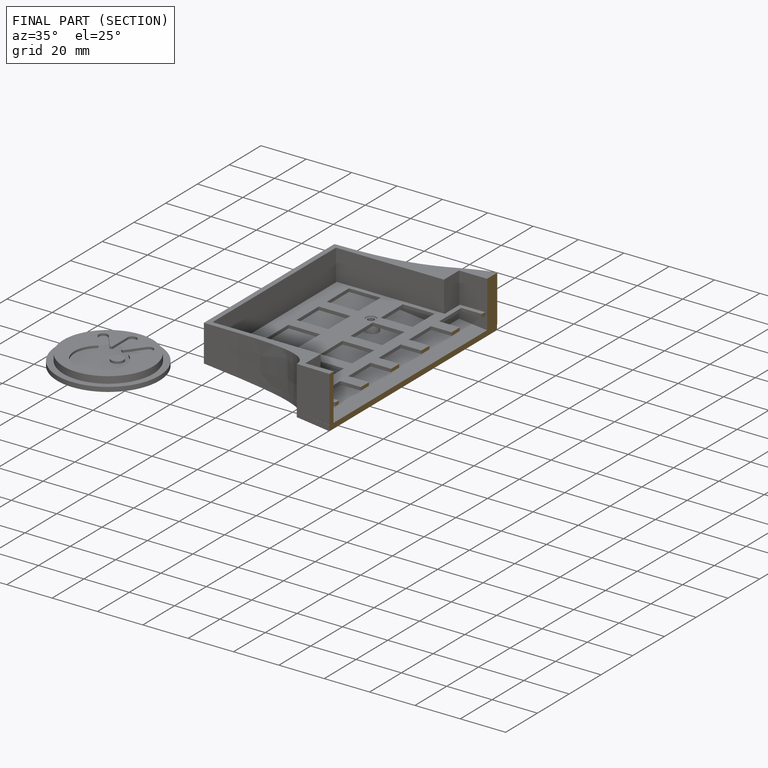
[diagram: finished part — half-section view (interior)]
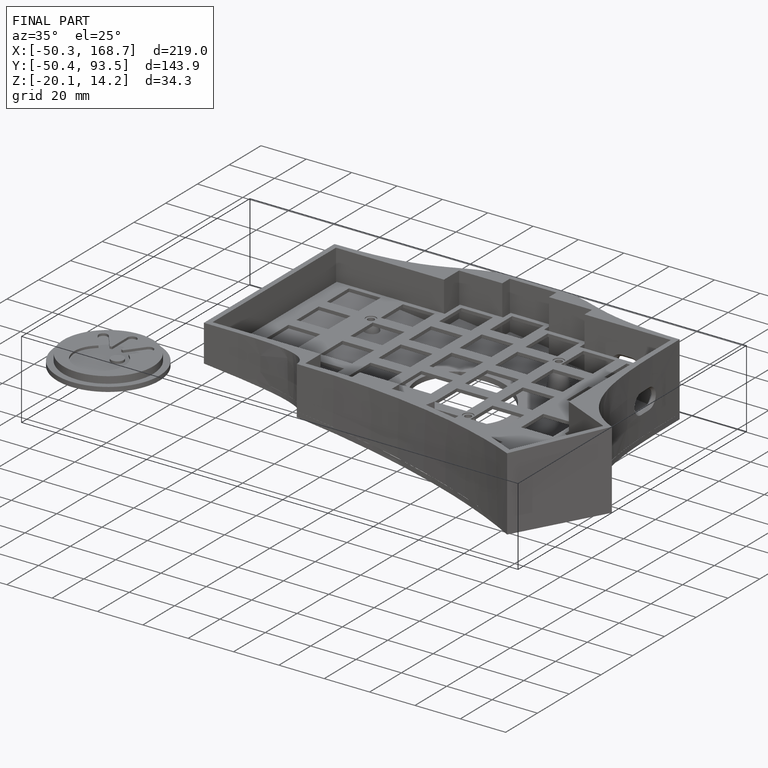
[diagram: finished part — iso view with bounding-box wireframe]
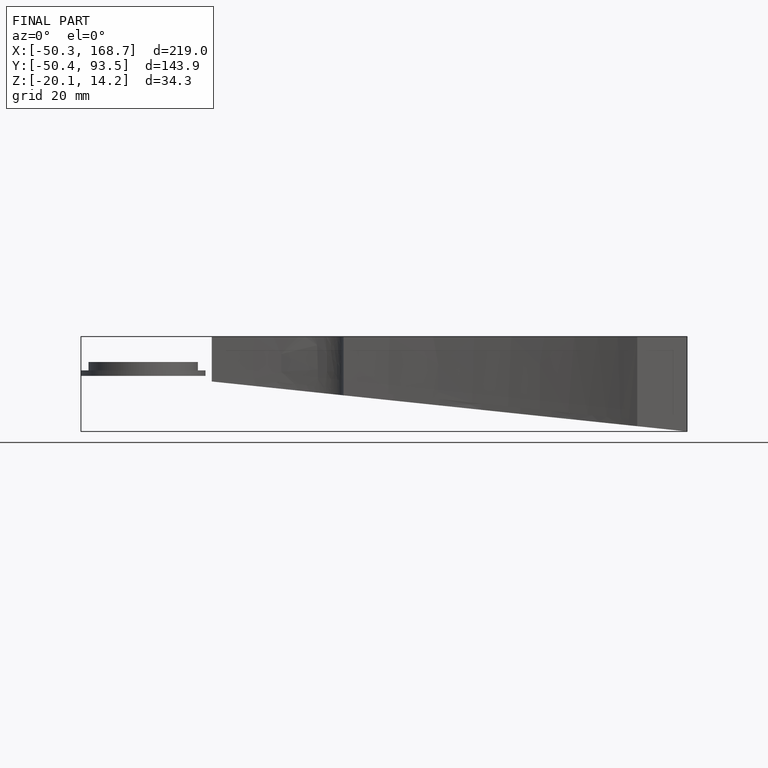
[diagram: finished part — front view with bounding-box wireframe]
